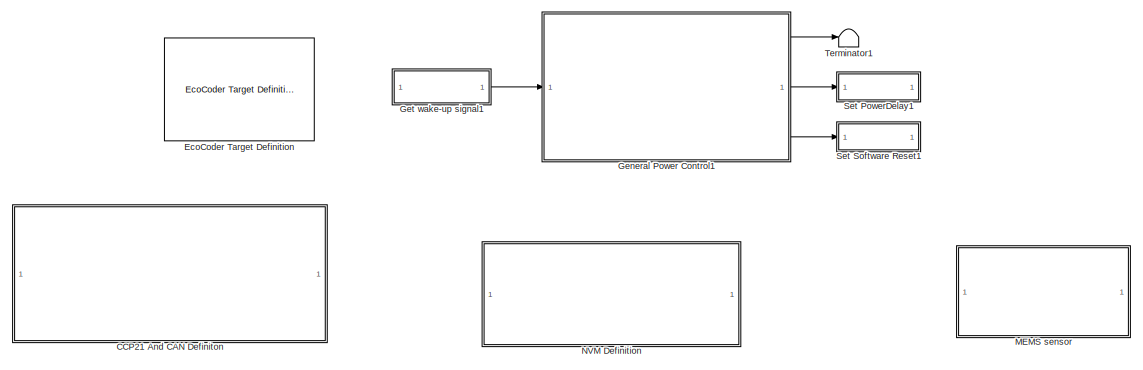
[diagram: root canvas - part 1/2, full width, top band]
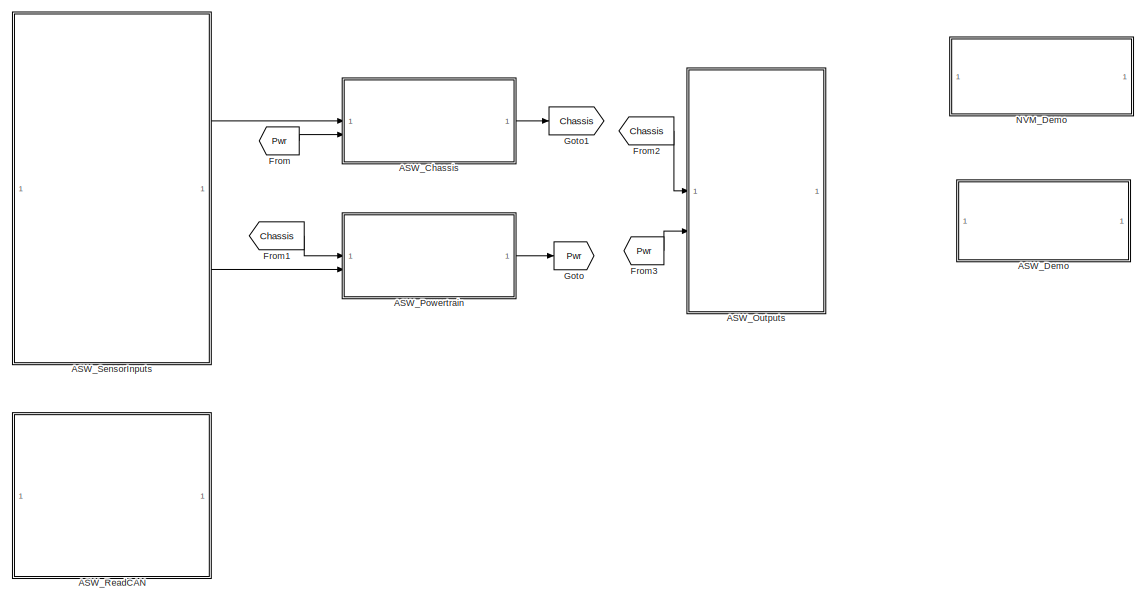
[diagram: root canvas - part 2/2, full width, bottom band]
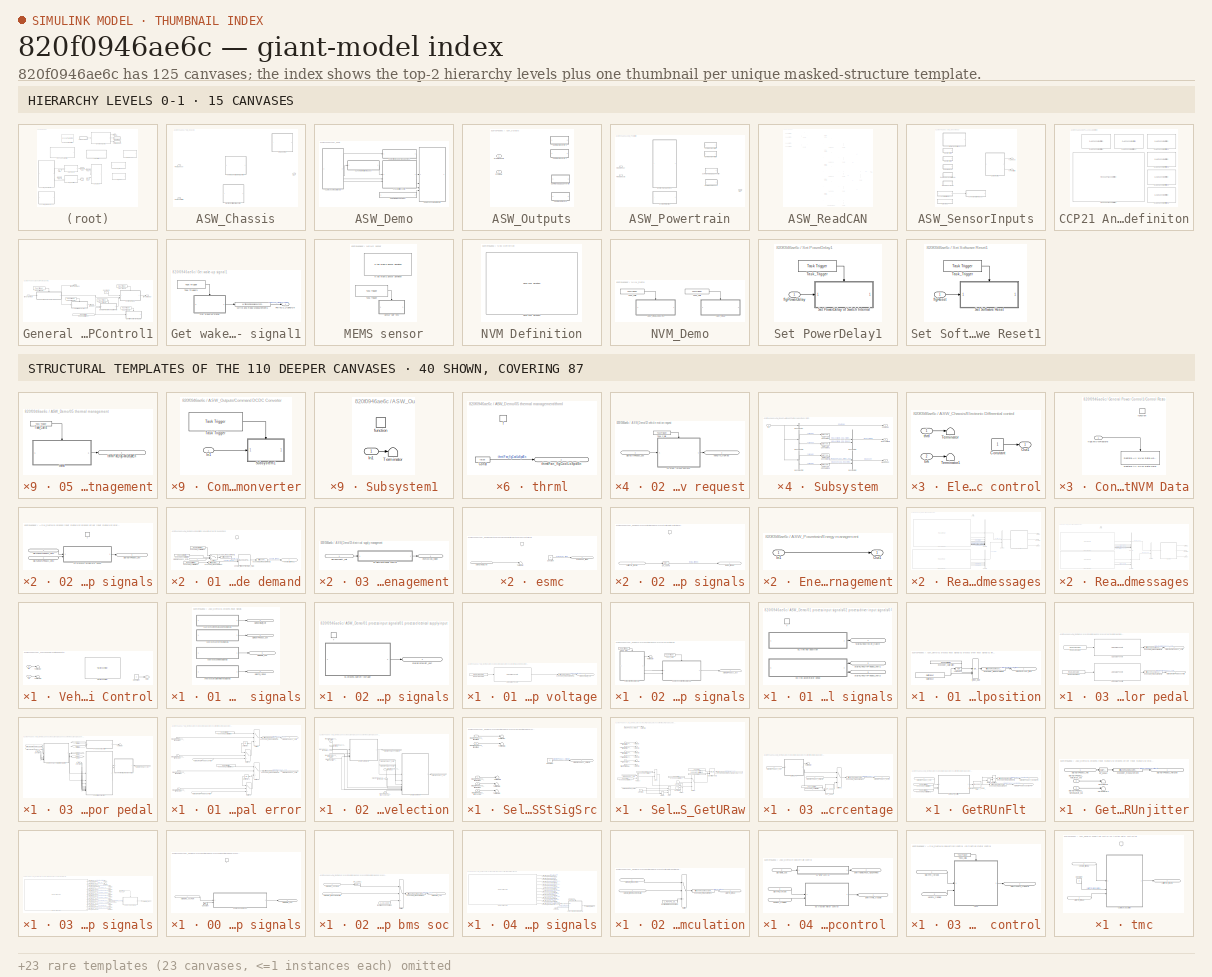
[diagram: thumbnail index - top-2 hierarchy levels (15 canvases) + 40 structural-template representatives of the remaining 110 canvases]
MODEL mdl_820f0946ae6c
KIND model
CONFIG AbsTol = auto
CONFIG EnableMultiTasking = on
CONFIG FixedStep = 0.001
CONFIG InitFcn = EcoCoder_PreCheckLic();
CONFIG MaxStep = auto
CONFIG MinStep = auto
CONFIG PreLoadFcn = try\nMDL_install;\ncatch\nend\n
CONFIG RelTol = 1e-3
CONFIG SampleTimeConstraint = Unconstrained
CONFIG SolverName = FixedStepDiscrete
CONFIG StartTime = 0.0
CONFIG StopTime = 10.0
BLOCK [SubSystem] ASW_Chassis
BLOCK [SubSystem] ASW_Chassis/Electronic Differential control
BLOCK [Constant] ASW_Chassis/Electronic Differential control/Constant
BLOCK [Outport] ASW_Chassis/Electronic Differential control/Out1
BLOCK [Terminator] ASW_Chassis/Electronic Differential control/Terminator
BLOCK [Terminator] ASW_Chassis/Electronic Differential control/Terminator1
BLOCK [Inport] ASW_Chassis/Electronic Differential control/brk
  Port = 2
BLOCK [Inport] ASW_Chassis/Electronic Differential control/thrtl
BLOCK [Inport] ASW_Chassis/FromPowertrain
  Port = 2
BLOCK [Inport] ASW_Chassis/FromSensor
BLOCK [Outport] ASW_Chassis/Out
BLOCK [SubSystem] ASW_Chassis/Reasoning
BLOCK [Constant] ASW_Chassis/Reasoning/Constant
BLOCK [Outport] ASW_Chassis/Reasoning/Out1
BLOCK [Terminator] ASW_Chassis/Reasoning/Terminator
BLOCK [Terminator] ASW_Chassis/Reasoning/Terminator1
BLOCK [Inport] ASW_Chassis/Reasoning/brk
  Port = 2
BLOCK [Inport] ASW_Chassis/Reasoning/thrtl
BLOCK [SubSystem] ASW_Chassis/Vehicle Longitudinal Control
BLOCK [Constant] ASW_Chassis/Vehicle Longitudinal Control/Constant
BLOCK [Outport] ASW_Chassis/Vehicle Longitudinal Control/Out1
BLOCK [Terminator] ASW_Chassis/Vehicle Longitudinal Control/Terminator
BLOCK [Terminator] ASW_Chassis/Vehicle Longitudinal Control/Terminator1
BLOCK [Reference] ASW_Chassis/Vehicle Longitudinal Control/TractionController  REF=Chassis_stability_controllers/TractionController
  SourceBlock = Chassis_stability_controllers/TractionController
  SourceType = SubSystem
BLOCK [Inport] ASW_Chassis/Vehicle Longitudinal Control/brk
  Port = 2
BLOCK [Inport] ASW_Chassis/Vehicle Longitudinal Control/thrtl
BLOCK [SubSystem] ASW_Demo
  AttributesFormatString = %<Priority>
  Priority = 3
BLOCK [SubSystem] ASW_Demo/01  process input signals
BLOCK [SubSystem] ASW_Demo/01  process input signals/01 process electrical supply input signals
BLOCK [SubSystem] ASW_Demo/01  process input signals/01 process electrical supply input signals/02 process electrical supply input signals
  RTWSystemCode = Nonreusable function
  TreatAsAtomicUnit = on
BLOCK [SubSystem] ASW_Demo/01  process input signals/01 process electrical supply input signals/02 process electrical supply input signals/01 process battery voltage
  RTWSystemCode = Nonreusable function
  TreatAsAtomicUnit = on
BLOCK [Reference] ASW_Demo/01  process input signals/01 process electrical supply input signals/02 process electrical supply input signals/01 process battery voltage/ADC Value To Volt  REF=CoderSF_ADC2Volt_Libs/ADC Value To Volt
  SourceBlock = CoderSF_ADC2Volt_Libs/ADC Value To Volt
  SourceType = ADC Value To Volt
BLOCK [Reference] ASW_Demo/01  process input signals/01 process electrical supply input signals/02 process electrical supply input signals/01 process battery voltage/Read ADC Value  REF=CoderSF_BSW_Libs/ADC/Read ADC Value
  SourceBlock = CoderSF_BSW_Libs/ADC/Read ADC Value
  SourceType = Read ADC Value
BLOCK [Reference] ASW_Demo/01  process input signals/01 process electrical supply input signals/02 process electrical supply input signals/01 process battery voltage/ecocoder_measurement1  REF=CoderSF_BSW_Libs/Calibration & Measurement/Write and Read Measurement
  AttributesFormatString = value:%<variable_value> type:%<variable_type>
  SourceBlock = CoderSF_BSW_Libs/Calibration & Measurement/Write and Read Measurement
  SourceType = Write and Read Measurement
BLOCK [Outport] ASW_Demo/01  process input signals/01 process electrical supply input signals/02 process electrical supply input signals/01 process battery voltage/sigInEsmBatt_volt
  IconDisplay = Signal name
BLOCK [TriggerPort] ASW_Demo/01  process input signals/01 process electrical supply input signals/02 process electrical supply input signals/f
  StatesWhenEnabling = held
  TriggerType = function-call
  VariantControl = (inherit)
BLOCK [Outport] ASW_Demo/01  process input signals/01 process electrical supply input signals/02 process electrical supply input signals/sigInEsmBatt_volt
  IconDisplay = Signal name
BLOCK [Reference] ASW_Demo/01  process input signals/01 process electrical supply input signals/Task_Call1  REF=CoderSF_BSW_Libs/Task Scheduler/Task Trigger
  SourceBlock = CoderSF_BSW_Libs/Task Scheduler/Task Trigger
  SourceType = Task Trigger
BLOCK [Outport] ASW_Demo/01  process input signals/01 process electrical supply input signals/sigInEsmBatt_volt
  IconDisplay = Signal name
BLOCK [SubSystem] ASW_Demo/01  process input signals/02 process driver input signals
BLOCK [SubSystem] ASW_Demo/01  process input signals/02 process driver input signals/01 link driver input signals
BLOCK [SubSystem] ASW_Demo/01  process input signals/02 process driver input signals/01 link driver input signals/01 link key position
BLOCK [Logic] ASW_Demo/01  process input signals/02 process driver input signals/01 link driver input signals/01 link key position/LogicNOT1
  AllPortsSameDT = off
  Inputs = 1
  Operator = NOT
  OutDataTypeStr = boolean
BLOCK [Reference] ASW_Demo/01  process input signals/02 process driver input signals/01 link driver input signals/01 link key position/Switch Input  REF=CoderSF_BSW_Libs/Digital I//O/Switch Input
  SourceBlock = CoderSF_BSW_Libs/Digital I//O/Switch Input
  SourceType = Switch Input
BLOCK [Reference] ASW_Demo/01  process input signals/02 process driver input signals/01 link driver input signals/01 link key position/ecocoder_calibration  REF=CoderSF_BSW_Libs/Calibration & Measurement/Read Calibration
  AttributesFormatString = value:%<variable_value> type:%<variable_type> max:%<variable_max> Min:%<variable_min>
  SourceBlock = CoderSF_BSW_Libs/Calibration & Measurement/Read Calibration
  SourceType = Read Calibration
BLOCK [Reference] ASW_Demo/01  process input signals/02 process driver input signals/01 link driver input signals/01 link key position/ecocoder_measurement1  REF=CoderSF_BSW_Libs/Calibration & Measurement/Write and Read Measurement
  AttributesFormatString = value:%<variable_value> type:%<variable_type>
  SourceBlock = CoderSF_BSW_Libs/Calibration & Measurement/Write and Read Measurement
  SourceType = Write and Read Measurement
BLOCK [Reference] ASW_Demo/01  process input signals/02 process driver input signals/01 link driver input signals/01 link key position/if_then_else  REF=EV_ASWLibs/if_then_else
  SourceBlock = EV_ASWLibs/if_then_else
BLOCK [Outport] ASW_Demo/01  process input signals/02 process driver input signals/01 link driver input signals/01 link key position/sigInLinkDrvKey_flgOn
  IconDisplay = Port number and signal name
BLOCK [SubSystem] ASW_Demo/01  process input signals/02 process driver input signals/01 link driver input signals/03 link accelerator pedal
BLOCK [Reference] ASW_Demo/01  process input signals/02 process driver input signals/01 link driver input signals/03 link accelerator pedal/ADC Value To Volt  REF=CoderSF_ADC2Volt_Libs/ADC Value To Volt
  SourceBlock = CoderSF_ADC2Volt_Libs/ADC Value To Volt
  SourceType = ADC Value To Volt
BLOCK [Reference] ASW_Demo/01  process input signals/02 process driver input signals/01 link driver input signals/03 link accelerator pedal/ADC Value To Volt1  REF=CoderSF_ADC2Volt_Libs/ADC Value To Volt
  SourceBlock = CoderSF_ADC2Volt_Libs/ADC Value To Volt
  SourceType = ADC Value To Volt
BLOCK [Reference] ASW_Demo/01  process input signals/02 process driver input signals/01 link driver input signals/03 link accelerator pedal/Read ADC Value  REF=CoderSF_BSW_Libs/ADC/Read ADC Value
  SourceBlock = CoderSF_BSW_Libs/ADC/Read ADC Value
  SourceType = Read ADC Value
BLOCK [Reference] ASW_Demo/01  process input signals/02 process driver input signals/01 link driver input signals/03 link accelerator pedal/Read ADC Value1  REF=CoderSF_BSW_Libs/ADC/Read ADC Value
  SourceBlock = CoderSF_BSW_Libs/ADC/Read ADC Value
  SourceType = Read ADC Value
BLOCK [Reference] ASW_Demo/01  process input signals/02 process driver input signals/01 link driver input signals/03 link accelerator pedal/ecocoder_measurement1  REF=CoderSF_BSW_Libs/Calibration & Measurement/Write and Read Measurement
  AttributesFormatString = value:%<variable_value> type:%<variable_type>
  SourceBlock = CoderSF_BSW_Libs/Calibration & Measurement/Write and Read Measurement
  SourceType = Write and Read Measurement
BLOCK [Reference] ASW_Demo/01  process input signals/02 process driver input signals/01 link driver input signals/03 link accelerator pedal/ecocoder_measurement2  REF=CoderSF_BSW_Libs/Calibration & Measurement/Write and Read Measurement
  AttributesFormatString = value:%<variable_value> type:%<variable_type>
  SourceBlock = CoderSF_BSW_Libs/Calibration & Measurement/Write and Read Measurement
  SourceType = Write and Read Measurement
BLOCK [Outport] ASW_Demo/01  process input signals/02 process driver input signals/01 link driver input signals/03 link accelerator pedal/sigInLinkDrvPedacc_volt1
  IconDisplay = Port number and signal name
BLOCK [Outport] ASW_Demo/01  process input signals/02 process driver input signals/01 link driver input signals/03 link accelerator pedal/sigInLinkDrvPedacc_volt2
  IconDisplay = Port number and signal name
  Port = 2
BLOCK [TriggerPort] ASW_Demo/01  process input signals/02 process driver input signals/01 link driver input signals/f
  StatesWhenEnabling = held
  TriggerType = function-call
  VariantControl = (inherit)
BLOCK [Outport] ASW_Demo/01  process input signals/02 process driver input signals/01 link driver input signals/sigInLinkDrvKey_flgOn
  IconDisplay = Port number and signal name
BLOCK [Outport] ASW_Demo/01  process input signals/02 process driver input signals/01 link driver input signals/sigInLinkDrvPedacc_volt1
  IconDisplay = Port number and signal name
  Port = 2
BLOCK [Outport] ASW_Demo/01  process input signals/02 process driver input signals/01 link driver input signals/sigInLinkDrvPedacc_volt2
  IconDisplay = Port number and signal name
  Port = 3
BLOCK [SubSystem] ASW_Demo/01  process input signals/02 process driver input signals/02 process driver input signals
BLOCK [SubSystem] ASW_Demo/01  process input signals/02 process driver input signals/02 process driver input signals/03 processs accelerator pedal
BLOCK [SubSystem] ASW_Demo/01  process input signals/02 process driver input signals/02 process driver input signals/03 processs accelerator pedal/01 process accelerator pedal error
  RTWFcnNameOpts = Use subsystem name
  TreatAsAtomicUnit = on
BLOCK [Switch] ASW_Demo/01  process input signals/02 process driver input signals/02 process driver input signals/03 processs accelerator pedal/01 process accelerator pedal error/Switch
  Criteria = u2 ~= 0
  InputSameDT = off
  SaturateOnIntegerOverflow = off
BLOCK [Switch] ASW_Demo/01  process input signals/02 process driver input signals/02 process driver input signals/03 processs accelerator pedal/01 process accelerator pedal error/Switch1
  Criteria = u2 ~= 0
  InputSameDT = off
  SaturateOnIntegerOverflow = off
BLOCK [Switch] ASW_Demo/01  process input signals/02 process driver input signals/02 process driver input signals/03 processs accelerator pedal/01 process accelerator pedal error/Switch2
  Criteria = u2 ~= 0
  InputSameDT = off
  SaturateOnIntegerOverflow = off
BLOCK [Switch] ASW_Demo/01  process input signals/02 process driver input signals/02 process driver input signals/03 processs accelerator pedal/01 process accelerator pedal error/Switch3
  Criteria = u2 ~= 0
  InputSameDT = off
  SaturateOnIntegerOverflow = off
BLOCK [UnitDelay] ASW_Demo/01  process input signals/02 process driver input signals/02 process driver input signals/03 processs accelerator pedal/01 process accelerator pedal error/Unit Delay
  SampleTime = -1
BLOCK [UnitDelay] ASW_Demo/01  process input signals/02 process driver input signals/02 process driver input signals/03 processs accelerator pedal/01 process accelerator pedal error/Unit Delay1
  SampleTime = -1
BLOCK [Inport] ASW_Demo/01  process input signals/02 process driver input signals/02 process driver input signals/03 processs accelerator pedal/01 process accelerator pedal error/diagDrvPedacc1_flgFinalDef
  Port = 3
BLOCK [Inport] ASW_Demo/01  process input signals/02 process driver input signals/02 process driver input signals/03 processs accelerator pedal/01 process accelerator pedal error/diagDrvPedacc1_flgProvDef
  Port = 4
BLOCK [Inport] ASW_Demo/01  process input signals/02 process driver input signals/02 process driver input signals/03 processs accelerator pedal/01 process accelerator pedal error/diagDrvPedacc2_flgFinalDef
  Port = 5
BLOCK [Inport] ASW_Demo/01  process input signals/02 process driver input signals/02 process driver input signals/03 processs accelerator pedal/01 process accelerator pedal error/diagDrvPedacc2_flgProvDef
  Port = 6
BLOCK [Reference] ASW_Demo/01  process input signals/02 process driver input signals/02 process driver input signals/03 processs accelerator pedal/01 process accelerator pedal error/ecocoder_calibration  REF=CoderSF_BSW_Libs/Calibration & Measurement/Read Calibration
  AttributesFormatString = value:%<variable_value> type:%<variable_type> max:%<variable_max> Min:%<variable_min>
  SourceBlock = CoderSF_BSW_Libs/Calibration & Measurement/Read Calibration
  SourceType = Read Calibration
BLOCK [Reference] ASW_Demo/01  process input signals/02 process driver input signals/02 process driver input signals/03 processs accelerator pedal/01 process accelerator pedal error/ecocoder_calibration1  REF=CoderSF_BSW_Libs/Calibration & Measurement/Read Calibration
  AttributesFormatString = value:%<variable_value> type:%<variable_type> max:%<variable_max> Min:%<variable_min>
  SourceBlock = CoderSF_BSW_Libs/Calibration & Measurement/Read Calibration
  SourceType = Read Calibration
BLOCK [Reference] ASW_Demo/01  process input signals/02 process driver input signals/02 process driver input signals/03 processs accelerator pedal/01 process accelerator pedal error/ecocoder_measurement1  REF=CoderSF_BSW_Libs/Calibration & Measurement/Write and Read Measurement
  AttributesFormatString = value:%<variable_value> type:%<variable_type>
  SourceBlock = CoderSF_BSW_Libs/Calibration & Measurement/Write and Read Measurement
  SourceType = Write and Read Measurement
BLOCK [Reference] ASW_Demo/01  process input signals/02 process driver input signals/02 process driver input signals/03 processs accelerator pedal/01 process accelerator pedal error/ecocoder_measurement2  REF=CoderSF_BSW_Libs/Calibration & Measurement/Write and Read Measurement
  AttributesFormatString = value:%<variable_value> type:%<variable_type>
  SourceBlock = CoderSF_BSW_Libs/Calibration & Measurement/Write and Read Measurement
  SourceType = Write and Read Measurement
BLOCK [Outport] ASW_Demo/01  process input signals/02 process driver input signals/02 process driver input signals/03 processs accelerator pedal/01 process accelerator pedal error/sigInDrvPedacc_volt1
  IconDisplay = Port number and signal name
BLOCK [Outport] ASW_Demo/01  process input signals/02 process driver input signals/02 process driver input signals/03 processs accelerator pedal/01 process accelerator pedal error/sigInDrvPedacc_volt2
  IconDisplay = Port number and signal name
  Port = 2
BLOCK [Inport] ASW_Demo/01  process input signals/02 process driver input signals/02 process driver input signals/03 processs accelerator pedal/01 process accelerator pedal error/sigInLinkDrvPedacc_volt1
  IconDisplay = Port number and signal name
BLOCK [Inport] ASW_Demo/01  process input signals/02 process driver input signals/02 process driver input signals/03 processs accelerator pedal/01 process accelerator pedal error/sigInLinkDrvPedacc_volt2
  IconDisplay = Port number and signal name
  Port = 2
BLOCK [SubSystem] ASW_Demo/01  process input signals/02 process driver input signals/02 process driver input signals/03 processs accelerator pedal/02 voltage selection
  RTWFcnNameOpts = Use subsystem name
  TreatAsAtomicUnit = on
BLOCK [SubSystem] ASW_Demo/01  process input signals/02 process driver input signals/02 process driver input signals/03 processs accelerator pedal/02 voltage selection/SelSig_GetStSigSrc
  RTWFcnNameOpts = Use subsystem name
  RTWSystemCode = Nonreusable function
  TreatAsAtomicUnit = on
BLOCK [Constant] ASW_Demo/01  process input signals/02 process driver input signals/02 process driver input signals/03 processs accelerator pedal/02 voltage selection/SelSig_GetStSigSrc/Constant
  OutDataTypeStr = Inherit: Inherit via back propagation
  SampleTime = -1
  Value = 0
BLOCK [Terminator] ASW_Demo/01  process input signals/02 process driver input signals/02 process driver input signals/03 processs accelerator pedal/02 voltage selection/SelSig_GetStSigSrc/Terminator
BLOCK [Terminator] ASW_Demo/01  process input signals/02 process driver input signals/02 process driver input signals/03 processs accelerator pedal/02 voltage selection/SelSig_GetStSigSrc/Terminator1
BLOCK [Terminator] ASW_Demo/01  process input signals/02 process driver input signals/02 process driver input signals/03 processs accelerator pedal/02 voltage selection/SelSig_GetStSigSrc/Terminator2
BLOCK [Terminator] ASW_Demo/01  process input signals/02 process driver input signals/02 process driver input signals/03 processs accelerator pedal/02 voltage selection/SelSig_GetStSigSrc/Terminator3
BLOCK [Terminator] ASW_Demo/01  process input signals/02 process driver input signals/02 process driver input signals/03 processs accelerator pedal/02 voltage selection/SelSig_GetStSigSrc/Terminator4
BLOCK [Inport] ASW_Demo/01  process input signals/02 process driver input signals/02 process driver input signals/03 processs accelerator pedal/02 voltage selection/SelSig_GetStSigSrc/diagDrvPedacc1_flgFinalDef
  Port = 3
BLOCK [Inport] ASW_Demo/01  process input signals/02 process driver input signals/02 process driver input signals/03 processs accelerator pedal/02 voltage selection/SelSig_GetStSigSrc/diagDrvPedacc1_flgShrtPwr
BLOCK [Inport] ASW_Demo/01  process input signals/02 process driver input signals/02 process driver input signals/03 processs accelerator pedal/02 voltage selection/SelSig_GetStSigSrc/diagDrvPedacc2_flgFinalDef
  Port = 4
BLOCK [Inport] ASW_Demo/01  process input signals/02 process driver input signals/02 process driver input signals/03 processs accelerator pedal/02 voltage selection/SelSig_GetStSigSrc/diagDrvPedacc2_flgShrtPwr
  Port = 2
BLOCK [Inport] ASW_Demo/01  process input signals/02 process driver input signals/02 process driver input signals/03 processs accelerator pedal/02 voltage selection/SelSig_GetStSigSrc/diagDrvPedacc_flgSyncDef
  Port = 5
BLOCK [Outport] ASW_Demo/01  process input signals/02 process driver input signals/02 process driver input signals/03 processs accelerator pedal/02 voltage selection/SelSig_GetStSigSrc/sigInDrvPedacc_stSigSrc
  IconDisplay = Port number and signal name
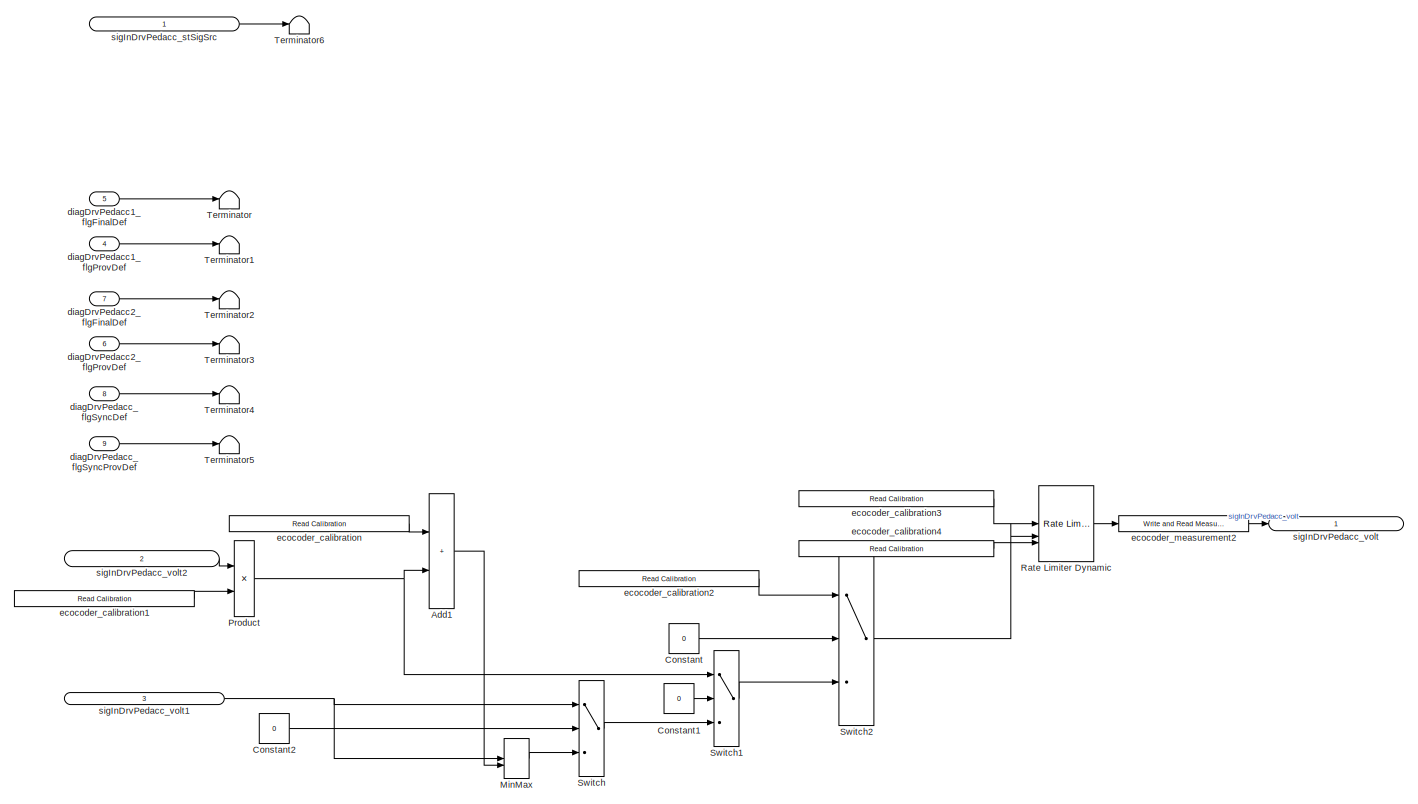
[diagram: ASW_Demo/01  process input signals/02 process driver input signals/02 process driver input signals/03 processs accelerator pedal/02 voltage selection/SelSig_GetURaw - part 1/1, most of the canvas]
BLOCK [SubSystem] ASW_Demo/01  process input signals/02 process driver input signals/02 process driver input signals/03 processs accelerator pedal/02 voltage selection/SelSig_GetURaw
  RTWFcnNameOpts = Use subsystem name
  RTWSystemCode = Nonreusable function
  TreatAsAtomicUnit = on
BLOCK [Sum] ASW_Demo/01  process input signals/02 process driver input signals/02 process driver input signals/03 processs accelerator pedal/02 voltage selection/SelSig_GetURaw/Add1
  IconShape = rectangular
  OutDataTypeStr = Inherit: Same as first input
  RndMeth = Simplest
  SaturateOnIntegerOverflow = on
BLOCK [Constant] ASW_Demo/01  process input signals/02 process driver input signals/02 process driver input signals/03 processs accelerator pedal/02 voltage selection/SelSig_GetURaw/Constant
  OutDataTypeStr = Inherit: Inherit via back propagation
  SampleTime = -1
  Value = 0
BLOCK [Constant] ASW_Demo/01  process input signals/02 process driver input signals/02 process driver input signals/03 processs accelerator pedal/02 voltage selection/SelSig_GetURaw/Constant1
  OutDataTypeStr = Inherit: Inherit via back propagation
  SampleTime = -1
  Value = 0
BLOCK [Constant] ASW_Demo/01  process input signals/02 process driver input signals/02 process driver input signals/03 processs accelerator pedal/02 voltage selection/SelSig_GetURaw/Constant2
  OutDataTypeStr = Inherit: Inherit via back propagation
  SampleTime = -1
  Value = 0
BLOCK [MinMax] ASW_Demo/01  process input signals/02 process driver input signals/02 process driver input signals/03 processs accelerator pedal/02 voltage selection/SelSig_GetURaw/MinMax
  Inputs = 2
BLOCK [Product] ASW_Demo/01  process input signals/02 process driver input signals/02 process driver input signals/03 processs accelerator pedal/02 voltage selection/SelSig_GetURaw/Product
  OutDataTypeStr = Inherit: Inherit via back propagation
  RndMeth = Simplest
  SaturateOnIntegerOverflow = on
BLOCK [Reference] ASW_Demo/01  process input signals/02 process driver input signals/02 process driver input signals/03 processs accelerator pedal/02 voltage selection/SelSig_GetURaw/Rate Limiter Dynamic  REF=simulink/Discontinuities/Rate Limiter
Dynamic
  SourceBlock = simulink/Discontinuities/Rate Limiter\nDynamic
  SourceType = Rate Limiter Dynamic
BLOCK [Switch] ASW_Demo/01  process input signals/02 process driver input signals/02 process driver input signals/03 processs accelerator pedal/02 voltage selection/SelSig_GetURaw/Switch
  Criteria = u2 ~= 0
  InputSameDT = off
  RndMeth = Simplest
BLOCK [Switch] ASW_Demo/01  process input signals/02 process driver input signals/02 process driver input signals/03 processs accelerator pedal/02 voltage selection/SelSig_GetURaw/Switch1
  Criteria = u2 ~= 0
  InputSameDT = off
  RndMeth = Simplest
BLOCK [Switch] ASW_Demo/01  process input signals/02 process driver input signals/02 process driver input signals/03 processs accelerator pedal/02 voltage selection/SelSig_GetURaw/Switch2
  Criteria = u2 ~= 0
  InputSameDT = off
  RndMeth = Simplest
BLOCK [Terminator] ASW_Demo/01  process input signals/02 process driver input signals/02 process driver input signals/03 processs accelerator pedal/02 voltage selection/SelSig_GetURaw/Terminator
BLOCK [Terminator] ASW_Demo/01  process input signals/02 process driver input signals/02 process driver input signals/03 processs accelerator pedal/02 voltage selection/SelSig_GetURaw/Terminator1
BLOCK [Terminator] ASW_Demo/01  process input signals/02 process driver input signals/02 process driver input signals/03 processs accelerator pedal/02 voltage selection/SelSig_GetURaw/Terminator2
BLOCK [Terminator] ASW_Demo/01  process input signals/02 process driver input signals/02 process driver input signals/03 processs accelerator pedal/02 voltage selection/SelSig_GetURaw/Terminator3
BLOCK [Terminator] ASW_Demo/01  process input signals/02 process driver input signals/02 process driver input signals/03 processs accelerator pedal/02 voltage selection/SelSig_GetURaw/Terminator4
BLOCK [Terminator] ASW_Demo/01  process input signals/02 process driver input signals/02 process driver input signals/03 processs accelerator pedal/02 voltage selection/SelSig_GetURaw/Terminator5
BLOCK [Terminator] ASW_Demo/01  process input signals/02 process driver input signals/02 process driver input signals/03 processs accelerator pedal/02 voltage selection/SelSig_GetURaw/Terminator6
BLOCK [Inport] ASW_Demo/01  process input signals/02 process driver input signals/02 process driver input signals/03 processs accelerator pedal/02 voltage selection/SelSig_GetURaw/diagDrvPedacc1_flgFinalDef
  Port = 5
BLOCK [Inport] ASW_Demo/01  process input signals/02 process driver input signals/02 process driver input signals/03 processs accelerator pedal/02 voltage selection/SelSig_GetURaw/diagDrvPedacc1_flgProvDef
  Port = 4
BLOCK [Inport] ASW_Demo/01  process input signals/02 process driver input signals/02 process driver input signals/03 processs accelerator pedal/02 voltage selection/SelSig_GetURaw/diagDrvPedacc2_flgFinalDef
  Port = 7
BLOCK [Inport] ASW_Demo/01  process input signals/02 process driver input signals/02 process driver input signals/03 processs accelerator pedal/02 voltage selection/SelSig_GetURaw/diagDrvPedacc2_flgProvDef
  Port = 6
BLOCK [Inport] ASW_Demo/01  process input signals/02 process driver input signals/02 process driver input signals/03 processs accelerator pedal/02 voltage selection/SelSig_GetURaw/diagDrvPedacc_flgSyncDef
  Port = 8
BLOCK [Inport] ASW_Demo/01  process input signals/02 process driver input signals/02 process driver input signals/03 processs accelerator pedal/02 voltage selection/SelSig_GetURaw/diagDrvPedacc_flgSyncProvDef
  Port = 9
BLOCK [Reference] ASW_Demo/01  process input signals/02 process driver input signals/02 process driver input signals/03 processs accelerator pedal/02 voltage selection/SelSig_GetURaw/ecocoder_calibration  REF=CoderSF_BSW_Libs/Calibration & Measurement/Read Calibration
  AttributesFormatString = value:%<variable_value> type:%<variable_type> max:%<variable_max> Min:%<variable_min>
  SourceBlock = CoderSF_BSW_Libs/Calibration & Measurement/Read Calibration
  SourceType = Read Calibration
BLOCK [Reference] ASW_Demo/01  process input signals/02 process driver input signals/02 process driver input signals/03 processs accelerator pedal/02 voltage selection/SelSig_GetURaw/ecocoder_calibration1  REF=CoderSF_BSW_Libs/Calibration & Measurement/Read Calibration
  AttributesFormatString = value:%<variable_value> type:%<variable_type> max:%<variable_max> Min:%<variable_min>
  SourceBlock = CoderSF_BSW_Libs/Calibration & Measurement/Read Calibration
  SourceType = Read Calibration
BLOCK [Reference] ASW_Demo/01  process input signals/02 process driver input signals/02 process driver input signals/03 processs accelerator pedal/02 voltage selection/SelSig_GetURaw/ecocoder_calibration2  REF=CoderSF_BSW_Libs/Calibration & Measurement/Read Calibration
  AttributesFormatString = value:%<variable_value> type:%<variable_type> max:%<variable_max> Min:%<variable_min>
  SourceBlock = CoderSF_BSW_Libs/Calibration & Measurement/Read Calibration
  SourceType = Read Calibration
BLOCK [Reference] ASW_Demo/01  process input signals/02 process driver input signals/02 process driver input signals/03 processs accelerator pedal/02 voltage selection/SelSig_GetURaw/ecocoder_calibration3  REF=CoderSF_BSW_Libs/Calibration & Measurement/Read Calibration
  AttributesFormatString = value:%<variable_value> type:%<variable_type> max:%<variable_max> Min:%<variable_min>
  SourceBlock = CoderSF_BSW_Libs/Calibration & Measurement/Read Calibration
  SourceType = Read Calibration
BLOCK [Reference] ASW_Demo/01  process input signals/02 process driver input signals/02 process driver input signals/03 processs accelerator pedal/02 voltage selection/SelSig_GetURaw/ecocoder_calibration4  REF=CoderSF_BSW_Libs/Calibration & Measurement/Read Calibration
  AttributesFormatString = value:%<variable_value> type:%<variable_type> max:%<variable_max> Min:%<variable_min>
  SourceBlock = CoderSF_BSW_Libs/Calibration & Measurement/Read Calibration
  SourceType = Read Calibration
BLOCK [Reference] ASW_Demo/01  process input signals/02 process driver input signals/02 process driver input signals/03 processs accelerator pedal/02 voltage selection/SelSig_GetURaw/ecocoder_measurement2  REF=CoderSF_BSW_Libs/Calibration & Measurement/Write and Read Measurement
  AttributesFormatString = value:%<variable_value> type:%<variable_type>
  SourceBlock = CoderSF_BSW_Libs/Calibration & Measurement/Write and Read Measurement
  SourceType = Write and Read Measurement
BLOCK [Inport] ASW_Demo/01  process input signals/02 process driver input signals/02 process driver input signals/03 processs accelerator pedal/02 voltage selection/SelSig_GetURaw/sigInDrvPedacc_stSigSrc
  IconDisplay = Port number and signal name
BLOCK [Outport] ASW_Demo/01  process input signals/02 process driver input signals/02 process driver input signals/03 processs accelerator pedal/02 voltage selection/SelSig_GetURaw/sigInDrvPedacc_volt
  IconDisplay = Port number and signal name
BLOCK [Inport] ASW_Demo/01  process input signals/02 process driver input signals/02 process driver input signals/03 processs accelerator pedal/02 voltage selection/SelSig_GetURaw/sigInDrvPedacc_volt1
  IconDisplay = Port number and signal name
  Port = 3
BLOCK [Inport] ASW_Demo/01  process input signals/02 process driver input signals/02 process driver input signals/03 processs accelerator pedal/02 voltage selection/SelSig_GetURaw/sigInDrvPedacc_volt2
  IconDisplay = Port number and signal name
  Port = 2
BLOCK [Inport] ASW_Demo/01  process input signals/02 process driver input signals/02 process driver input signals/03 processs accelerator pedal/02 voltage selection/diagDrvPedacc1_flgFinalDef
  Port = 5
BLOCK [Inport] ASW_Demo/01  process input signals/02 process driver input signals/02 process driver input signals/03 processs accelerator pedal/02 voltage selection/diagDrvPedacc1_flgProvDef
  Port = 7
BLOCK [Inport] ASW_Demo/01  process input signals/02 process driver input signals/02 process driver input signals/03 processs accelerator pedal/02 voltage selection/diagDrvPedacc1_flgShrtPwr
  Port = 3
BLOCK [Inport] ASW_Demo/01  process input signals/02 process driver input signals/02 process driver input signals/03 processs accelerator pedal/02 voltage selection/diagDrvPedacc2_flgFinalDef
  Port = 6
BLOCK [Inport] ASW_Demo/01  process input signals/02 process driver input signals/02 process driver input signals/03 processs accelerator pedal/02 voltage selection/diagDrvPedacc2_flgProvDef
  Port = 9
BLOCK [Inport] ASW_Demo/01  process input signals/02 process driver input signals/02 process driver input signals/03 processs accelerator pedal/02 voltage selection/diagDrvPedacc2_flgShrtPwr
  Port = 4
BLOCK [Inport] ASW_Demo/01  process input signals/02 process driver input signals/02 process driver input signals/03 processs accelerator pedal/02 voltage selection/diagDrvPedacc_flgSyncDef
  Port = 8
BLOCK [Inport] ASW_Demo/01  process input signals/02 process driver input signals/02 process driver input signals/03 processs accelerator pedal/02 voltage selection/diagDrvPedacc_flgSyncProvDef
  Port = 10
BLOCK [Outport] ASW_Demo/01  process input signals/02 process driver input signals/02 process driver input signals/03 processs accelerator pedal/02 voltage selection/sigInDrvPedacc_stSigSrc
  IconDisplay = Port number and signal name
BLOCK [Outport] ASW_Demo/01  process input signals/02 process driver input signals/02 process driver input signals/03 processs accelerator pedal/02 voltage selection/sigInDrvPedacc_volt
  IconDisplay = Port number and signal name
  Port = 2
BLOCK [Inport] ASW_Demo/01  process input signals/02 process driver input signals/02 process driver input signals/03 processs accelerator pedal/02 voltage selection/sigInDrvPedacc_volt1
  IconDisplay = Port number and signal name
BLOCK [Inport] ASW_Demo/01  process input signals/02 process driver input signals/02 process driver input signals/03 processs accelerator pedal/02 voltage selection/sigInDrvPedacc_volt2
  IconDisplay = Port number and signal name
  Port = 2
BLOCK [SubSystem] ASW_Demo/01  process input signals/02 process driver input signals/02 process driver input signals/03 processs accelerator pedal/03 convert voltage to percentage
  RTWFcnNameOpts = Use subsystem name
  TreatAsAtomicUnit = on
BLOCK [SubSystem] ASW_Demo/01  process input signals/02 process driver input signals/02 process driver input signals/03 processs accelerator pedal/03 convert voltage to percentage/GetRUnFlt
  RTWFcnNameOpts = Use subsystem name
  RTWSystemCode = Nonreusable function
  TreatAsAtomicUnit = on
BLOCK [Delay] ASW_Demo/01  process input signals/02 process driver input signals/02 process driver input signals/03 processs accelerator pedal/03 convert voltage to percentage/GetRUnFlt/Delay
  DelayLength = 1
  InputPortMap = u0
  UserDataPersistent = on
BLOCK [SubSystem] ASW_Demo/01  process input signals/02 process driver input signals/02 process driver input signals/03 processs accelerator pedal/03 convert voltage to percentage/GetRUnFlt/GetRUnFlt_Unjitter
  RTWFcnNameOpts = Use subsystem name
  RTWSystemCode = Nonreusable function
  TreatAsAtomicUnit = on
BLOCK [DataTypeConversion] ASW_Demo/01  process input signals/02 process driver input signals/02 process driver input signals/03 processs accelerator pedal/03 convert voltage to percentage/GetRUnFlt/GetRUnFlt_Unjitter/DT_conv1
  RndMeth = Floor
  SaturateOnIntegerOverflow = off
BLOCK [Terminator] ASW_Demo/01  process input signals/02 process driver input signals/02 process driver input signals/03 processs accelerator pedal/03 convert voltage to percentage/GetRUnFlt/GetRUnFlt_Unjitter/Terminator
BLOCK [Terminator] ASW_Demo/01  process input signals/02 process driver input signals/02 process driver input signals/03 processs accelerator pedal/03 convert voltage to percentage/GetRUnFlt/GetRUnFlt_Unjitter/Terminator1
BLOCK [Reference] ASW_Demo/01  process input signals/02 process driver input signals/02 process driver input signals/03 processs accelerator pedal/03 convert voltage to percentage/GetRUnFlt/GetRUnFlt_Unjitter/ecocoder_measurement  REF=CoderSF_BSW_Libs/Calibration & Measurement/Write and Read Measurement
  AttributesFormatString = value:%<variable_value> type:%<variable_type>
  SourceBlock = CoderSF_BSW_Libs/Calibration & Measurement/Write and Read Measurement
  SourceType = Write and Read Measurement
BLOCK [Inport] ASW_Demo/01  process input signals/02 process driver input signals/02 process driver input signals/03 processs accelerator pedal/03 convert voltage to percentage/GetRUnFlt/GetRUnFlt_Unjitter/sigInDrvPedacc_flgtEnaUnJit_val
  Port = 3
BLOCK [Inport] ASW_Demo/01  process input signals/02 process driver input signals/02 process driver input signals/03 processs accelerator pedal/03 convert voltage to percentage/GetRUnFlt/GetRUnFlt_Unjitter/sigInDrvPedacc_volt
  IconDisplay = Port number and signal name
BLOCK [Inport] ASW_Demo/01  process input signals/02 process driver input signals/02 process driver input signals/03 processs accelerator pedal/03 convert voltage to percentage/GetRUnFlt/GetRUnFlt_Unjitter/sigInDrvPedacc_voltJitter_val
  Port = 2
BLOCK [Outport] ASW_Demo/01  process input signals/02 process driver input signals/02 process driver input signals/03 processs accelerator pedal/03 convert voltage to percentage/GetRUnFlt/GetRUnFlt_Unjitter/sigInDrvPedacc_voltUnJit
  IconDisplay = Port number and signal name
BLOCK [Sum] ASW_Demo/01  process input signals/02 process driver input signals/02 process driver input signals/03 processs accelerator pedal/03 convert voltage to percentage/GetRUnFlt/Subtract
  IconShape = rectangular
  Inputs = +-
  RndMeth = Simplest
  SaturateOnIntegerOverflow = on
BLOCK [Reference] ASW_Demo/01  process input signals/02 process driver input signals/02 process driver input signals/03 processs accelerator pedal/03 convert voltage to percentage/GetRUnFlt/ecocoder_calibration  REF=CoderSF_BSW_Libs/Calibration & Measurement/Read Calibration
  AttributesFormatString = value:%<variable_value> type:%<variable_type> max:%<variable_max> Min:%<variable_min>
  SourceBlock = CoderSF_BSW_Libs/Calibration & Measurement/Read Calibration
  SourceType = Read Calibration
BLOCK [Reference] ASW_Demo/01  process input signals/02 process driver input signals/02 process driver input signals/03 processs accelerator pedal/03 convert voltage to percentage/GetRUnFlt/ecocoder_calibration1  REF=CoderSF_BSW_Libs/Calibration & Measurement/Read Calibration
  AttributesFormatString = value:%<variable_value> type:%<variable_type> max:%<variable_max> Min:%<variable_min>
  SourceBlock = CoderSF_BSW_Libs/Calibration & Measurement/Read Calibration
  SourceType = Read Calibration
BLOCK [Reference] ASW_Demo/01  process input signals/02 process driver input signals/02 process driver input signals/03 processs accelerator pedal/03 convert voltage to percentage/GetRUnFlt/ecocoder_measurement  REF=CoderSF_BSW_Libs/Calibration & Measurement/Write and Read Measurement
  AttributesFormatString = value:%<variable_value> type:%<variable_type>
  SourceBlock = CoderSF_BSW_Libs/Calibration & Measurement/Write and Read Measurement
  SourceType = Write and Read Measurement
BLOCK [Reference] ASW_Demo/01  process input signals/02 process driver input signals/02 process driver input signals/03 processs accelerator pedal/03 convert voltage to percentage/GetRUnFlt/ecocoder_measurement1  REF=CoderSF_BSW_Libs/Calibration & Measurement/Write and Read Measurement
  AttributesFormatString = value:%<variable_value> type:%<variable_type>
  SourceBlock = CoderSF_BSW_Libs/Calibration & Measurement/Write and Read Measurement
  SourceType = Write and Read Measurement
BLOCK [Outport] ASW_Demo/01  process input signals/02 process driver input signals/02 process driver input signals/03 processs accelerator pedal/03 convert voltage to percentage/GetRUnFlt/sigInDrvPedacc_dpctUnFlt
  IconDisplay = Port number and signal name
BLOCK [Reference] ASW_Demo/01  process input signals/02 process driver input signals/02 process driver input signals/03 processs accelerator pedal/03 convert voltage to percentage/GetRUnFlt/sigInDrvPedacc_pctLin_cur   REF=CoderSF_BSW_Libs/Calibration & Measurement/1-D Lookup Table
  SourceBlock = CoderSF_BSW_Libs/Calibration & Measurement/1-D Lookup Table
  SourceType = 1-D Lookup Table
BLOCK [Outport] ASW_Demo/01  process input signals/02 process driver input signals/02 process driver input signals/03 processs accelerator pedal/03 convert voltage to percentage/GetRUnFlt/sigInDrvPedacc_pctUnFlt
  IconDisplay = Port number and signal name
  Port = 2
BLOCK [Inport] ASW_Demo/01  process input signals/02 process driver input signals/02 process driver input signals/03 processs accelerator pedal/03 convert voltage to percentage/GetRUnFlt/sigInDrvPedacc_volt
  IconDisplay = Port number and signal name
BLOCK [Reference] ASW_Demo/01  process input signals/02 process driver input signals/02 process driver input signals/03 processs accelerator pedal/03 convert voltage to percentage/LPT_xxxx  REF=EV_ASWLibs/LPT_xxxx
  SourceBlock = EV_ASWLibs/LPT_xxxx
BLOCK [Switch] ASW_Demo/01  process input signals/02 process driver input signals/02 process driver input signals/03 processs accelerator pedal/03 convert voltage to percentage/Switch1
  Criteria = u2 ~= 0
  InputSameDT = off
  RndMeth = Simplest
BLOCK [Terminator] ASW_Demo/01  process input signals/02 process driver input signals/02 process driver input signals/03 processs accelerator pedal/03 convert voltage to percentage/Terminator
BLOCK [Reference] ASW_Demo/01  process input signals/02 process driver input signals/02 process driver input signals/03 processs accelerator pedal/03 convert voltage to percentage/ecocoder_calibration  REF=CoderSF_BSW_Libs/Calibration & Measurement/Read Calibration
  AttributesFormatString = value:%<variable_value> type:%<variable_type> max:%<variable_max> Min:%<variable_min>
  SourceBlock = CoderSF_BSW_Libs/Calibration & Measurement/Read Calibration
  SourceType = Read Calibration
BLOCK [Reference] ASW_Demo/01  process input signals/02 process driver input signals/02 process driver input signals/03 processs accelerator pedal/03 convert voltage to percentage/ecocoder_measurement  REF=CoderSF_BSW_Libs/Calibration & Measurement/Write and Read Measurement
  AttributesFormatString = value:%<variable_value> type:%<variable_type>
  SourceBlock = CoderSF_BSW_Libs/Calibration & Measurement/Write and Read Measurement
  SourceType = Write and Read Measurement
BLOCK [Outport] ASW_Demo/01  process input signals/02 process driver input signals/02 process driver input signals/03 processs accelerator pedal/03 convert voltage to percentage/sigInDrvPedacc_pctFlt
  IconDisplay = Port number and signal name
BLOCK [Inport] ASW_Demo/01  process input signals/02 process driver input signals/02 process driver input signals/03 processs accelerator pedal/03 convert voltage to percentage/sigInDrvPedacc_stSigSrc
  IconDisplay = Port number and signal name
BLOCK [Inport] ASW_Demo/01  process input signals/02 process driver input signals/02 process driver input signals/03 processs accelerator pedal/03 convert voltage to percentage/sigInDrvPedacc_volt
  IconDisplay = Port number and signal name
  Port = 2
BLOCK [SubSystem] ASW_Demo/01  process input signals/02 process driver input signals/02 process driver input signals/03 processs accelerator pedal/04 check plausibility
  RTWFcnNameOpts = Use subsystem name
  TreatAsAtomicUnit = on
BLOCK [Constant] ASW_Demo/01  process input signals/02 process driver input signals/02 process driver input signals/03 processs accelerator pedal/04 check plausibility/Constant
  OutDataTypeStr = Inherit: Inherit via back propagation
BLOCK [Terminator] ASW_Demo/01  process input signals/02 process driver input signals/02 process driver input signals/03 processs accelerator pedal/04 check plausibility/Terminator
BLOCK [Terminator] ASW_Demo/01  process input signals/02 process driver input signals/02 process driver input signals/03 processs accelerator pedal/04 check plausibility/Terminator1
BLOCK [Outport] ASW_Demo/01  process input signals/02 process driver input signals/02 process driver input signals/03 processs accelerator pedal/04 check plausibility/sigInDrvPedacc_flgErrSync
  IconDisplay = Port number and signal name
BLOCK [Inport] ASW_Demo/01  process input signals/02 process driver input signals/02 process driver input signals/03 processs accelerator pedal/04 check plausibility/sigInDrvPedacc_volt1
  IconDisplay = Port number and signal name
BLOCK [Inport] ASW_Demo/01  process input signals/02 process driver input signals/02 process driver input signals/03 processs accelerator pedal/04 check plausibility/sigInDrvPedacc_volt2
  IconDisplay = Port number and signal name
  Port = 2
BLOCK [Constant] ASW_Demo/01  process input signals/02 process driver input signals/02 process driver input signals/03 processs accelerator pedal/Constant
  Value = false
BLOCK [Constant] ASW_Demo/01  process input signals/02 process driver input signals/02 process driver input signals/03 processs accelerator pedal/Constant1
  Value = false
BLOCK [From] ASW_Demo/01  process input signals/02 process driver input signals/02 process driver input signals/03 processs accelerator pedal/From1
  GotoTag = sigInDrvPedacc_volt1
BLOCK [From] ASW_Demo/01  process input signals/02 process driver input signals/02 process driver input signals/03 processs accelerator pedal/From2
  GotoTag = sigInDrvPedacc_volt2
BLOCK [Goto] ASW_Demo/01  process input signals/02 process driver input signals/02 process driver input signals/03 processs accelerator pedal/Goto1
  GotoTag = sigInDrvPedacc_volt1
BLOCK [Goto] ASW_Demo/01  process input signals/02 process driver input signals/02 process driver input signals/03 processs accelerator pedal/Goto2
  GotoTag = sigInDrvPedacc_volt2
BLOCK [Terminator] ASW_Demo/01  process input signals/02 process driver input signals/02 process driver input signals/03 processs accelerator pedal/Terminator
BLOCK [Outport] ASW_Demo/01  process input signals/02 process driver input signals/02 process driver input signals/03 processs accelerator pedal/sigInDrvPedacc_pct
  IconDisplay = Port number and signal name
BLOCK [Inport] ASW_Demo/01  process input signals/02 process driver input signals/02 process driver input signals/03 processs accelerator pedal/sigInLinkDrvPedacc_volt1
  IconDisplay = Port number and signal name
BLOCK [Inport] ASW_Demo/01  process input signals/02 process driver input signals/02 process driver input signals/03 processs accelerator pedal/sigInLinkDrvPedacc_volt2
  IconDisplay = Port number and signal name
  Port = 2
BLOCK [TriggerPort] ASW_Demo/01  process input signals/02 process driver input signals/02 process driver input signals/f
  StatesWhenEnabling = held
  TriggerType = function-call
  VariantControl = (inherit)
BLOCK [Outport] ASW_Demo/01  process input signals/02 process driver input signals/02 process driver input signals/sigInDrvPedacc_pct
  IconDisplay = Port number and signal name
BLOCK [Inport] ASW_Demo/01  process input signals/02 process driver input signals/02 process driver input signals/sigInLinkDrvPedacc_volt1
  IconDisplay = Port number and signal name
BLOCK [Inport] ASW_Demo/01  process input signals/02 process driver input signals/02 process driver input signals/sigInLinkDrvPedacc_volt2
  IconDisplay = Port number and signal name
  Port = 2
BLOCK [Reference] ASW_Demo/01  process input signals/02 process driver input signals/Task_Call  REF=CoderSF_BSW_Libs/Task Scheduler/Task Trigger
  SourceBlock = CoderSF_BSW_Libs/Task Scheduler/Task Trigger
  SourceType = Task Trigger
BLOCK [Reference] ASW_Demo/01  process input signals/02 process driver input signals/Task_Call2  REF=CoderSF_BSW_Libs/Task Scheduler/Task Trigger
  SourceBlock = CoderSF_BSW_Libs/Task Scheduler/Task Trigger
  SourceType = Task Trigger
BLOCK [Terminator] ASW_Demo/01  process input signals/02 process driver input signals/Terminator
BLOCK [Outport] ASW_Demo/01  process input signals/02 process driver input signals/sigInDrvPedacc_pct
  IconDisplay = Port number and signal name
BLOCK [SubSystem] ASW_Demo/01  process input signals/03 process bms input signals
BLOCK [SubSystem] ASW_Demo/01  process input signals/03 process bms input signals/00 process bms input signals
  RTWSystemCode = Nonreusable function
  TreatAsAtomicUnit = on
BLOCK [SubSystem] ASW_Demo/01  process input signals/03 process bms input signals/00 process bms input signals/02 process bms soc
  RTWSystemCode = Nonreusable function
  TreatAsAtomicUnit = on
BLOCK [DataTypeConversion] ASW_Demo/01  process input signals/03 process bms input signals/00 process bms input signals/02 process bms soc/DT_conv1
  RndMeth = Floor
  SaturateOnIntegerOverflow = off
BLOCK [Switch] ASW_Demo/01  process input signals/03 process bms input signals/00 process bms input signals/02 process bms soc/Switch
  Criteria = u2 ~= 0
  OutDataTypeStr = Inherit: Inherit via back propagation
  SaturateOnIntegerOverflow = off
BLOCK [Reference] ASW_Demo/01  process input signals/03 process bms input signals/00 process bms input signals/02 process bms soc/ecocoder_measurement  REF=CoderSF_BSW_Libs/Calibration & Measurement/Write and Read Measurement
  AttributesFormatString = value:%<variable_value> type:%<variable_type>
  SourceBlock = CoderSF_BSW_Libs/Calibration & Measurement/Write and Read Measurement
  SourceType = Write and Read Measurement
BLOCK [Constant] ASW_Demo/01  process input signals/03 process bms input signals/00 process bms input signals/02 process bms soc/invalid ess soc output
  AttributesFormatString = %<Value>\n%<OutDataTypeMode>
  Value = C_SOC_ZERO
BLOCK [Inport] ASW_Demo/01  process input signals/03 process bms input signals/00 process bms input signals/02 process bms soc/sigInBms_flgSocRawValid
  IconDisplay = Signal name
  Port = 2
BLOCK [Outport] ASW_Demo/01  process input signals/03 process bms input signals/00 process bms input signals/02 process bms soc/sigInBms_soc
  IconDisplay = Signal name
BLOCK [Inport] ASW_Demo/01  process input signals/03 process bms input signals/00 process bms input signals/02 process bms soc/sigInBms_socRaw
  IconDisplay = Signal name
BLOCK [Constant] ASW_Demo/01  process input signals/03 process bms input signals/00 process bms input signals/Constant
  SampleTime = -1
  Value = true
BLOCK [TriggerPort] ASW_Demo/01  process input signals/03 process bms input signals/00 process bms input signals/f
  StatesWhenEnabling = held
  TriggerType = function-call
  VariantControl = (inherit)
BLOCK [Outport] ASW_Demo/01  process input signals/03 process bms input signals/00 process bms input signals/sigInBms_soc
  IconDisplay = Signal name
BLOCK [Inport] ASW_Demo/01  process input signals/03 process bms input signals/00 process bms input signals/sigInBms_socRaw
  IconDisplay = Signal name
BLOCK [DataTypeConversion] ASW_Demo/01  process input signals/03 process bms input signals/Data Type Conversion
  RndMeth = Floor
  SaturateOnIntegerOverflow = off
BLOCK [Reference] ASW_Demo/01  process input signals/03 process bms input signals/Read CAN Message   REF=SF_CanService_Libs/Read CAN Message
  SourceBlock = SF_CanService_Libs/Read CAN Message
  SourceType = Read CAN Message
BLOCK [Reference] ASW_Demo/01  process input signals/03 process bms input signals/Task_Call  REF=CoderSF_BSW_Libs/Task Scheduler/Task Trigger
  SourceBlock = CoderSF_BSW_Libs/Task Scheduler/Task Trigger
  SourceType = Task Trigger
BLOCK [Terminator] ASW_Demo/01  process input signals/03 process bms input signals/Terminator
BLOCK [Terminator] ASW_Demo/01  process input signals/03 process bms input signals/Terminator1
BLOCK [Terminator] ASW_Demo/01  process input signals/03 process bms input signals/Terminator10
BLOCK [Terminator] ASW_Demo/01  process input signals/03 process bms input signals/Terminator2
BLOCK [Terminator] ASW_Demo/01  process input signals/03 process bms input signals/Terminator3
BLOCK [Terminator] ASW_Demo/01  process input signals/03 process bms input signals/Terminator4
BLOCK [Terminator] ASW_Demo/01  process input signals/03 process bms input signals/Terminator5
BLOCK [Terminator] ASW_Demo/01  process input signals/03 process bms input signals/Terminator6
BLOCK [Terminator] ASW_Demo/01  process input signals/03 process bms input signals/Terminator7
BLOCK [Terminator] ASW_Demo/01  process input signals/03 process bms input signals/Terminator8
BLOCK [Terminator] ASW_Demo/01  process input signals/03 process bms input signals/Terminator9
BLOCK [Reference] ASW_Demo/01  process input signals/03 process bms input signals/ecocoder_measurement  REF=CoderSF_BSW_Libs/Calibration & Measurement/Write and Read Measurement
  AttributesFormatString = value:%<variable_value> type:%<variable_type>
  SourceBlock = CoderSF_BSW_Libs/Calibration & Measurement/Write and Read Measurement
  SourceType = Write and Read Measurement
BLOCK [Reference] ASW_Demo/01  process input signals/03 process bms input signals/ecocoder_measurement1  REF=CoderSF_BSW_Libs/Calibration & Measurement/Write and Read Measurement
  AttributesFormatString = value:%<variable_value> type:%<variable_type>
  SourceBlock = CoderSF_BSW_Libs/Calibration & Measurement/Write and Read Measurement
  SourceType = Write and Read Measurement
BLOCK [Reference] ASW_Demo/01  process input signals/03 process bms input signals/ecocoder_measurement10  REF=CoderSF_BSW_Libs/Calibration & Measurement/Write and Read Measurement
  AttributesFormatString = value:%<variable_value> type:%<variable_type>
  SourceBlock = CoderSF_BSW_Libs/Calibration & Measurement/Write and Read Measurement
  SourceType = Write and Read Measurement
BLOCK [Reference] ASW_Demo/01  process input signals/03 process bms input signals/ecocoder_measurement11  REF=CoderSF_BSW_Libs/Calibration & Measurement/Write and Read Measurement
  AttributesFormatString = value:%<variable_value> type:%<variable_type>
  SourceBlock = CoderSF_BSW_Libs/Calibration & Measurement/Write and Read Measurement
  SourceType = Write and Read Measurement
BLOCK [Reference] ASW_Demo/01  process input signals/03 process bms input signals/ecocoder_measurement2  REF=CoderSF_BSW_Libs/Calibration & Measurement/Write and Read Measurement
  AttributesFormatString = value:%<variable_value> type:%<variable_type>
  SourceBlock = CoderSF_BSW_Libs/Calibration & Measurement/Write and Read Measurement
  SourceType = Write and Read Measurement
BLOCK [Reference] ASW_Demo/01  process input signals/03 process bms input signals/ecocoder_measurement3  REF=CoderSF_BSW_Libs/Calibration & Measurement/Write and Read Measurement
  AttributesFormatString = value:%<variable_value> type:%<variable_type>
  SourceBlock = CoderSF_BSW_Libs/Calibration & Measurement/Write and Read Measurement
  SourceType = Write and Read Measurement
BLOCK [Reference] ASW_Demo/01  process input signals/03 process bms input signals/ecocoder_measurement4  REF=CoderSF_BSW_Libs/Calibration & Measurement/Write and Read Measurement
  AttributesFormatString = value:%<variable_value> type:%<variable_type>
  SourceBlock = CoderSF_BSW_Libs/Calibration & Measurement/Write and Read Measurement
  SourceType = Write and Read Measurement
BLOCK [Reference] ASW_Demo/01  process input signals/03 process bms input signals/ecocoder_measurement5  REF=CoderSF_BSW_Libs/Calibration & Measurement/Write and Read Measurement
  AttributesFormatString = value:%<variable_value> type:%<variable_type>
  SourceBlock = CoderSF_BSW_Libs/Calibration & Measurement/Write and Read Measurement
  SourceType = Write and Read Measurement
BLOCK [Reference] ASW_Demo/01  process input signals/03 process bms input signals/ecocoder_measurement6  REF=CoderSF_BSW_Libs/Calibration & Measurement/Write and Read Measurement
  AttributesFormatString = value:%<variable_value> type:%<variable_type>
  SourceBlock = CoderSF_BSW_Libs/Calibration & Measurement/Write and Read Measurement
  SourceType = Write and Read Measurement
BLOCK [Reference] ASW_Demo/01  process input signals/03 process bms input signals/ecocoder_measurement7  REF=CoderSF_BSW_Libs/Calibration & Measurement/Write and Read Measurement
  AttributesFormatString = value:%<variable_value> type:%<variable_type>
  SourceBlock = CoderSF_BSW_Libs/Calibration & Measurement/Write and Read Measurement
  SourceType = Write and Read Measurement
BLOCK [Reference] ASW_Demo/01  process input signals/03 process bms input signals/ecocoder_measurement8  REF=CoderSF_BSW_Libs/Calibration & Measurement/Write and Read Measurement
  AttributesFormatString = value:%<variable_value> type:%<variable_type>
  SourceBlock = CoderSF_BSW_Libs/Calibration & Measurement/Write and Read Measurement
  SourceType = Write and Read Measurement
BLOCK [Reference] ASW_Demo/01  process input signals/03 process bms input signals/ecocoder_measurement9  REF=CoderSF_BSW_Libs/Calibration & Measurement/Write and Read Measurement
  AttributesFormatString = value:%<variable_value> type:%<variable_type>
  SourceBlock = CoderSF_BSW_Libs/Calibration & Measurement/Write and Read Measurement
  SourceType = Write and Read Measurement
BLOCK [Outport] ASW_Demo/01  process input signals/03 process bms input signals/sigInBms_soc
  IconDisplay = Signal name
BLOCK [SubSystem] ASW_Demo/01  process input signals/04 process traction motor input signals
BLOCK [SubSystem] ASW_Demo/01  process input signals/04 process traction motor input signals/00 process traction motor input signals
  RTWSystemCode = Nonreusable function
  TreatAsAtomicUnit = on
BLOCK [SubSystem] ASW_Demo/01  process input signals/04 process traction motor input signals/00 process traction motor input signals/02 motor speed calculation
  RTWSystemCode = Nonreusable function
  TreatAsAtomicUnit = on
BLOCK [Switch] ASW_Demo/01  process input signals/04 process traction motor input signals/00 process traction motor input signals/02 motor speed calculation/Switch
  Criteria = u2 ~= 0
  OutDataTypeStr = Inherit: Inherit via back propagation
  SaturateOnIntegerOverflow = off
BLOCK [Reference] ASW_Demo/01  process input signals/04 process traction motor input signals/00 process traction motor input signals/02 motor speed calculation/ecocoder_measurement  REF=CoderSF_BSW_Libs/Calibration & Measurement/Write and Read Measurement
  AttributesFormatString = value:%<variable_value> type:%<variable_type>
  SourceBlock = CoderSF_BSW_Libs/Calibration & Measurement/Write and Read Measurement
  SourceType = Write and Read Measurement
BLOCK [Constant] ASW_Demo/01  process input signals/04 process traction motor input signals/00 process traction motor input signals/02 motor speed calculation/invalid motor speed output
  Value = C_ROTSPD_ZERO
BLOCK [Inport] ASW_Demo/01  process input signals/04 process traction motor input signals/00 process traction motor input signals/02 motor speed calculation/sigInMot_flgRotspdRpmValid
  IconDisplay = Port number and signal name
  Port = 2
BLOCK [Inport] ASW_Demo/01  process input signals/04 process traction motor input signals/00 process traction motor input signals/02 motor speed calculation/sigInMot_rotspdRpm
  IconDisplay = Port number and signal name
BLOCK [Outport] ASW_Demo/01  process input signals/04 process traction motor input signals/00 process traction motor input signals/02 motor speed calculation/sigInTm_rotspd
  IconDisplay = Port number and signal name
BLOCK [TriggerPort] ASW_Demo/01  process input signals/04 process traction motor input signals/00 process traction motor input signals/f
  StatesWhenEnabling = held
  TriggerType = function-call
  VariantControl = (inherit)
BLOCK [Inport] ASW_Demo/01  process input signals/04 process traction motor input signals/00 process traction motor input signals/sigInMot_flgRotspdRpmValid
  IconDisplay = Signal name
  Port = 2
BLOCK [Inport] ASW_Demo/01  process input signals/04 process traction motor input signals/00 process traction motor input signals/sigInMot_rotspdRpm
  IconDisplay = Signal name
BLOCK [Outport] ASW_Demo/01  process input signals/04 process traction motor input signals/00 process traction motor input signals/sigInTm_rotspd
  IconDisplay = Signal name
BLOCK [DataTypeConversion] ASW_Demo/01  process input signals/04 process traction motor input signals/Data Type Conversion
  RndMeth = Floor
  SaturateOnIntegerOverflow = off
BLOCK [Reference] ASW_Demo/01  process input signals/04 process traction motor input signals/Read CAN Message   REF=SF_CanService_Libs/Read CAN Message
  SourceBlock = SF_CanService_Libs/Read CAN Message
  SourceType = Read CAN Message
BLOCK [Reference] ASW_Demo/01  process input signals/04 process traction motor input signals/Task_Call  REF=CoderSF_BSW_Libs/Task Scheduler/Task Trigger
  SourceBlock = CoderSF_BSW_Libs/Task Scheduler/Task Trigger
  SourceType = Task Trigger
BLOCK [Terminator] ASW_Demo/01  process input signals/04 process traction motor input signals/Terminator
BLOCK [Terminator] ASW_Demo/01  process input signals/04 process traction motor input signals/Terminator1
BLOCK [Terminator] ASW_Demo/01  process input signals/04 process traction motor input signals/Terminator2
BLOCK [Terminator] ASW_Demo/01  process input signals/04 process traction motor input signals/Terminator3
BLOCK [Terminator] ASW_Demo/01  process input signals/04 process traction motor input signals/Terminator4
BLOCK [Terminator] ASW_Demo/01  process input signals/04 process traction motor input signals/Terminator5
BLOCK [Terminator] ASW_Demo/01  process input signals/04 process traction motor input signals/Terminator6
BLOCK [Terminator] ASW_Demo/01  process input signals/04 process traction motor input signals/Terminator7
BLOCK [Terminator] ASW_Demo/01  process input signals/04 process traction motor input signals/Terminator8
BLOCK [Constant] ASW_Demo/01  process input signals/04 process traction motor input signals/const_dbl1
  SampleTime = -1
  Value = true
BLOCK [Reference] ASW_Demo/01  process input signals/04 process traction motor input signals/ecocoder_measurement  REF=CoderSF_BSW_Libs/Calibration & Measurement/Write and Read Measurement
  AttributesFormatString = value:%<variable_value> type:%<variable_type>
  SourceBlock = CoderSF_BSW_Libs/Calibration & Measurement/Write and Read Measurement
  SourceType = Write and Read Measurement
BLOCK [Reference] ASW_Demo/01  process input signals/04 process traction motor input signals/ecocoder_measurement1  REF=CoderSF_BSW_Libs/Calibration & Measurement/Write and Read Measurement
  AttributesFormatString = value:%<variable_value> type:%<variable_type>
  SourceBlock = CoderSF_BSW_Libs/Calibration & Measurement/Write and Read Measurement
  SourceType = Write and Read Measurement
BLOCK [Reference] ASW_Demo/01  process input signals/04 process traction motor input signals/ecocoder_measurement2  REF=CoderSF_BSW_Libs/Calibration & Measurement/Write and Read Measurement
  AttributesFormatString = value:%<variable_value> type:%<variable_type>
  SourceBlock = CoderSF_BSW_Libs/Calibration & Measurement/Write and Read Measurement
  SourceType = Write and Read Measurement
BLOCK [Reference] ASW_Demo/01  process input signals/04 process traction motor input signals/ecocoder_measurement3  REF=CoderSF_BSW_Libs/Calibration & Measurement/Write and Read Measurement
  AttributesFormatString = value:%<variable_value> type:%<variable_type>
  SourceBlock = CoderSF_BSW_Libs/Calibration & Measurement/Write and Read Measurement
  SourceType = Write and Read Measurement
BLOCK [Reference] ASW_Demo/01  process input signals/04 process traction motor input signals/ecocoder_measurement4  REF=CoderSF_BSW_Libs/Calibration & Measurement/Write and Read Measurement
  AttributesFormatString = value:%<variable_value> type:%<variable_type>
  SourceBlock = CoderSF_BSW_Libs/Calibration & Measurement/Write and Read Measurement
  SourceType = Write and Read Measurement
BLOCK [Reference] ASW_Demo/01  process input signals/04 process traction motor input signals/ecocoder_measurement5  REF=CoderSF_BSW_Libs/Calibration & Measurement/Write and Read Measurement
  AttributesFormatString = value:%<variable_value> type:%<variable_type>
  SourceBlock = CoderSF_BSW_Libs/Calibration & Measurement/Write and Read Measurement
  SourceType = Write and Read Measurement
BLOCK [Reference] ASW_Demo/01  process input signals/04 process traction motor input signals/ecocoder_measurement6  REF=CoderSF_BSW_Libs/Calibration & Measurement/Write and Read Measurement
  AttributesFormatString = value:%<variable_value> type:%<variable_type>
  SourceBlock = CoderSF_BSW_Libs/Calibration & Measurement/Write and Read Measurement
  SourceType = Write and Read Measurement
BLOCK [Reference] ASW_Demo/01  process input signals/04 process traction motor input signals/ecocoder_measurement7  REF=CoderSF_BSW_Libs/Calibration & Measurement/Write and Read Measurement
  AttributesFormatString = value:%<variable_value> type:%<variable_type>
  SourceBlock = CoderSF_BSW_Libs/Calibration & Measurement/Write and Read Measurement
  SourceType = Write and Read Measurement
BLOCK [Reference] ASW_Demo/01  process input signals/04 process traction motor input signals/ecocoder_measurement8  REF=CoderSF_BSW_Libs/Calibration & Measurement/Write and Read Measurement
  AttributesFormatString = value:%<variable_value> type:%<variable_type>
  SourceBlock = CoderSF_BSW_Libs/Calibration & Measurement/Write and Read Measurement
  SourceType = Write and Read Measurement
BLOCK [Reference] ASW_Demo/01  process input signals/04 process traction motor input signals/ecocoder_measurement9  REF=CoderSF_BSW_Libs/Calibration & Measurement/Write and Read Measurement
  AttributesFormatString = value:%<variable_value> type:%<variable_type>
  SourceBlock = CoderSF_BSW_Libs/Calibration & Measurement/Write and Read Measurement
  SourceType = Write and Read Measurement
BLOCK [Outport] ASW_Demo/01  process input signals/04 process traction motor input signals/sigInTm_rotspd
  IconDisplay = Signal name
BLOCK [Outport] ASW_Demo/01  process input signals/sigInBms_soc
  IconDisplay = Port number and signal name
  Port = 3
BLOCK [Outport] ASW_Demo/01  process input signals/sigInDrvPedacc_pct
  IconDisplay = Port number and signal name
  Port = 2
BLOCK [Outport] ASW_Demo/01  process input signals/sigInEsmBatt_volt
  IconDisplay = Port number and signal name
BLOCK [Outport] ASW_Demo/01  process input signals/sigInTm_rotspd
  IconDisplay = Port number and signal name
  Port = 4
BLOCK [SubSystem] ASW_Demo/02 vehicle motion request
BLOCK [SubSystem] ASW_Demo/02 vehicle motion request/01 driver torque demand
BLOCK [Switch] ASW_Demo/02 vehicle motion request/01 driver torque demand/Switch
  Criteria = u2 ~= 0
  InputSameDT = off
  SaturateOnIntegerOverflow = off
BLOCK [Reference] ASW_Demo/02 vehicle motion request/01 driver torque demand/ecocoder_calibration  REF=CoderSF_BSW_Libs/Calibration & Measurement/Read Calibration
  AttributesFormatString = value:%<variable_value> type:%<variable_type> max:%<variable_max> Min:%<variable_min>
  SourceBlock = CoderSF_BSW_Libs/Calibration & Measurement/Read Calibration
  SourceType = Read Calibration
BLOCK [Reference] ASW_Demo/02 vehicle motion request/01 driver torque demand/ecocoder_calibration1  REF=CoderSF_BSW_Libs/Calibration & Measurement/Read Calibration
  AttributesFormatString = value:%<variable_value> type:%<variable_type> max:%<variable_max> Min:%<variable_min>
  SourceBlock = CoderSF_BSW_Libs/Calibration & Measurement/Read Calibration
  SourceType = Read Calibration
BLOCK [Reference] ASW_Demo/02 vehicle motion request/01 driver torque demand/ecocoder_calibration2  REF=CoderSF_BSW_Libs/Calibration & Measurement/Read Calibration
  AttributesFormatString = value:%<variable_value> type:%<variable_type> max:%<variable_max> Min:%<variable_min>
  SourceBlock = CoderSF_BSW_Libs/Calibration & Measurement/Read Calibration
  SourceType = Read Calibration
BLOCK [Reference] ASW_Demo/02 vehicle motion request/01 driver torque demand/ecocoder_measurement  REF=CoderSF_BSW_Libs/Calibration & Measurement/Write and Read Measurement
  AttributesFormatString = value:%<variable_value> type:%<variable_type>
  SourceBlock = CoderSF_BSW_Libs/Calibration & Measurement/Write and Read Measurement
  SourceType = Write and Read Measurement
BLOCK [Reference] ASW_Demo/02 vehicle motion request/01 driver torque demand/ecocoder_measurement1  REF=CoderSF_BSW_Libs/Calibration & Measurement/Write and Read Measurement
  AttributesFormatString = value:%<variable_value> type:%<variable_type>
  SourceBlock = CoderSF_BSW_Libs/Calibration & Measurement/Write and Read Measurement
  SourceType = Write and Read Measurement
BLOCK [Reference] ASW_Demo/02 vehicle motion request/01 driver torque demand/ecocoder_measurement2  REF=CoderSF_BSW_Libs/Calibration & Measurement/Write and Read Measurement
  AttributesFormatString = value:%<variable_value> type:%<variable_type>
  SourceBlock = CoderSF_BSW_Libs/Calibration & Measurement/Write and Read Measurement
  SourceType = Write and Read Measurement
BLOCK [TriggerPort] ASW_Demo/02 vehicle motion request/01 driver torque demand/f
  StatesWhenEnabling = held
  TriggerType = function-call
  VariantControl = (inherit)
BLOCK [Inport] ASW_Demo/02 vehicle motion request/01 driver torque demand/sigInDrvPedacc_pct1
  IconDisplay = Signal name
BLOCK [Reference] ASW_Demo/02 vehicle motion request/01 driver torque demand/vehDrv_trqEcoTracMax_map  REF=CoderSF_BSW_Libs/Calibration & Measurement/2-D Lookup Table
  SourceBlock = CoderSF_BSW_Libs/Calibration & Measurement/2-D Lookup Table
  SourceType = 2-D Lookup Table
BLOCK [Outport] ASW_Demo/02 vehicle motion request/01 driver torque demand/vehDrv_trqReq1
  IconDisplay = Port number and signal name
BLOCK [Reference] ASW_Demo/02 vehicle motion request/Task_Call2  REF=CoderSF_BSW_Libs/Task Scheduler/Task Trigger
  SourceBlock = CoderSF_BSW_Libs/Task Scheduler/Task Trigger
  SourceType = Task Trigger
BLOCK [Inport] ASW_Demo/02 vehicle motion request/sigInDrvPedacc_pct
  IconDisplay = Port number and signal name
BLOCK [Outport] ASW_Demo/02 vehicle motion request/vehDrv_trqReq
  IconDisplay = Port number and signal name
BLOCK [SubSystem] ASW_Demo/03 electrical supply management
BLOCK [SubSystem] ASW_Demo/03 electrical supply management/02  electrical supply control
BLOCK [Reference] ASW_Demo/03 electrical supply management/02  electrical supply control/Task_Call4  REF=CoderSF_BSW_Libs/Task Scheduler/Task Trigger
  SourceBlock = CoderSF_BSW_Libs/Task Scheduler/Task Trigger
  SourceType = Task Trigger
BLOCK [SubSystem] ASW_Demo/03 electrical supply management/02  electrical supply control/esmc
  TreatAsAtomicUnit = on
BLOCK [Constant] ASW_Demo/03 electrical supply management/02  electrical supply control/esmc/Constant
  OutDataTypeStr = Inherit: Inherit via back propagation
  SampleTime = -1
BLOCK [Terminator] ASW_Demo/03 electrical supply management/02  electrical supply control/esmc/Terminator
BLOCK [Outport] ASW_Demo/03 electrical supply management/02  electrical supply control/esmc/esmcDcdc_flgEn
  IconDisplay = Port number and signal name
BLOCK [TriggerPort] ASW_Demo/03 electrical supply management/02  electrical supply control/esmc/f
  StatesWhenEnabling = held
  TriggerType = function-call
  VariantControl = (inherit)
BLOCK [Inport] ASW_Demo/03 electrical supply management/02  electrical supply control/esmc/sigInEsmBatt_volt
  IconDisplay = Port number and signal name
BLOCK [Outport] ASW_Demo/03 electrical supply management/02  electrical supply control/esmcDcdc_flgEn
  IconDisplay = Port number and signal name
BLOCK [Inport] ASW_Demo/03 electrical supply management/02  electrical supply control/sigInEsmBatt_volt
  IconDisplay = Port number and signal name
BLOCK [Outport] ASW_Demo/03 electrical supply management/esmcDcdc_flgEn
  IconDisplay = Port number and signal name
BLOCK [Inport] ASW_Demo/03 electrical supply management/sigInEsmBatt_volt
  IconDisplay = Port number and signal name
BLOCK [SubSystem] ASW_Demo/04 powertrain control 
BLOCK [SubSystem] ASW_Demo/04 powertrain control /02  Bms control
BLOCK [SubSystem] ASW_Demo/04 powertrain control /02  Bms control/02  Bms control
BLOCK [Reference] ASW_Demo/04 powertrain control /02  Bms control/02  Bms control/Task_Call4  REF=CoderSF_BSW_Libs/Task Scheduler/Task Trigger
  SourceBlock = CoderSF_BSW_Libs/Task Scheduler/Task Trigger
  SourceType = Task Trigger
BLOCK [SubSystem] ASW_Demo/04 powertrain control /02  Bms control/02  Bms control/bmsc
  TreatAsAtomicUnit = on
BLOCK [Constant] ASW_Demo/04 powertrain control /02  Bms control/02  Bms control/bmsc/Constant
  OutDataTypeStr = Inherit: Inherit via back propagation
BLOCK [Terminator] ASW_Demo/04 powertrain control /02  Bms control/02  Bms control/bmsc/Terminator
BLOCK [TriggerPort] ASW_Demo/04 powertrain control /02  Bms control/02  Bms control/bmsc/f
  StatesWhenEnabling = held
  TriggerType = function-call
  VariantControl = (inherit)
BLOCK [Outport] ASW_Demo/04 powertrain control /02  Bms control/02  Bms control/bmsc/pwrtrnBmscPack_flgConnReq
  IconDisplay = Port number and signal name
BLOCK [Inport] ASW_Demo/04 powertrain control /02  Bms control/02  Bms control/bmsc/pwrtrn_st_i
  IconDisplay = Port number and signal name
BLOCK [Outport] ASW_Demo/04 powertrain control /02  Bms control/02  Bms control/pwrtrnBmscPack_flgConnReq
  IconDisplay = Port number and signal name
BLOCK [Inport] ASW_Demo/04 powertrain control /02  Bms control/02  Bms control/pwrtrn_stVeh
  IconDisplay = Port number and signal name
BLOCK [Outport] ASW_Demo/04 powertrain control /02  Bms control/pwrtrnBmscPack_flgConnReq
  IconDisplay = Port number and signal name
BLOCK [Inport] ASW_Demo/04 powertrain control /02  Bms control/sigInBms_soc
  IconDisplay = Port number and signal name
BLOCK [SubSystem] ASW_Demo/04 powertrain control /03  traction motor control
BLOCK [Reference] ASW_Demo/04 powertrain control /03  traction motor control/Task_Call1  REF=CoderSF_BSW_Libs/Task Scheduler/Task Trigger
  SourceBlock = CoderSF_BSW_Libs/Task Scheduler/Task Trigger
  SourceType = Task Trigger
BLOCK [Outport] ASW_Demo/04 powertrain control /03  traction motor control/pwrtrnTmc_trqCmd
  IconDisplay = Port number and signal name
BLOCK [Inport] ASW_Demo/04 powertrain control /03  traction motor control/sigInTm_rotspd
  IconDisplay = Signal name
  Interpolate = off
BLOCK [SubSystem] ASW_Demo/04 powertrain control /03  traction motor control/tmc
BLOCK [SubSystem] ASW_Demo/04 powertrain control /03  traction motor control/tmc/02 torque calculation
BLOCK [DataTypeConversion] ASW_Demo/04 powertrain control /03  traction motor control/tmc/02 torque calculation/Data Type Conversion
  RndMeth = Floor
  SaturateOnIntegerOverflow = off
BLOCK [Product] ASW_Demo/04 powertrain control /03  traction motor control/tmc/02 torque calculation/Divide
  Inputs = */
BLOCK [Reference] ASW_Demo/04 powertrain control /03  traction motor control/tmc/02 torque calculation/ecocoder_measurement  REF=CoderSF_BSW_Libs/Calibration & Measurement/Write and Read Measurement
  AttributesFormatString = value:%<variable_value> type:%<variable_type>
  SourceBlock = CoderSF_BSW_Libs/Calibration & Measurement/Write and Read Measurement
  SourceType = Write and Read Measurement
BLOCK [Outport] ASW_Demo/04 powertrain control /03  traction motor control/tmc/02 torque calculation/pwrtrnTmc_trqReq
  IconDisplay = Port number and signal name
BLOCK [Inport] ASW_Demo/04 powertrain control /03  traction motor control/tmc/02 torque calculation/pwrtrnTml_ratioShaftRotspd
  IconDisplay = Port number and signal name
  Port = 2
BLOCK [Inport] ASW_Demo/04 powertrain control /03  traction motor control/tmc/02 torque calculation/sigInTm_rotspd
  IconDisplay = Port number and signal name
  Port = 3
BLOCK [Terminator] ASW_Demo/04 powertrain control /03  traction motor control/tmc/02 torque calculation/terminator1
BLOCK [Inport] ASW_Demo/04 powertrain control /03  traction motor control/tmc/02 torque calculation/vehDrv_trqReq
  IconDisplay = Port number and signal name
BLOCK [Constant] ASW_Demo/04 powertrain control /03  traction motor control/tmc/Constant
  OutDataTypeStr = Inherit: Inherit via back propagation
  Value = 2
BLOCK [TriggerPort] ASW_Demo/04 powertrain control /03  traction motor control/tmc/f
  StatesWhenEnabling = held
  TriggerType = function-call
  VariantControl = (inherit)
BLOCK [Outport] ASW_Demo/04 powertrain control /03  traction motor control/tmc/pwrtrnTmc_trqCmd
  IconDisplay = Port number and signal name
BLOCK [Inport] ASW_Demo/04 powertrain control /03  traction motor control/tmc/sigInTm_rotspd
  IconDisplay = Port number and signal name
BLOCK [Inport] ASW_Demo/04 powertrain control /03  traction motor control/tmc/vehDrv_trqReq
  IconDisplay = Port number and signal name
  Port = 2
BLOCK [Inport] ASW_Demo/04 powertrain control /03  traction motor control/vehDrv_trqReq
  IconDisplay = Port number and signal name
  Port = 2
BLOCK [Outport] ASW_Demo/04 powertrain control /pwrtrnBmscPack_flgConnReq
  IconDisplay = Port number and signal name
  Port = 2
BLOCK [Outport] ASW_Demo/04 powertrain control /pwrtrnTmc_trqCmd
  IconDisplay = Port number and signal name
BLOCK [Inport] ASW_Demo/04 powertrain control /sigInBms_soc
  IconDisplay = Port number and signal name
  Port = 2
BLOCK [Inport] ASW_Demo/04 powertrain control /sigInTm_rotspd
  IconDisplay = Port number and signal name
  Port = 3
BLOCK [Inport] ASW_Demo/04 powertrain control /vehDrv_trqReq
  IconDisplay = Port number and signal name
BLOCK [SubSystem] ASW_Demo/05 thermal management
BLOCK [Reference] ASW_Demo/05 thermal management/Task_Call4  REF=CoderSF_BSW_Libs/Task Scheduler/Task Trigger
  SourceBlock = CoderSF_BSW_Libs/Task Scheduler/Task Trigger
  SourceType = Task Trigger
BLOCK [SubSystem] ASW_Demo/05 thermal management/thrml
BLOCK [Constant] ASW_Demo/05 thermal management/thrml/Const
  SampleTime = -1
  Value = false
BLOCK [TriggerPort] ASW_Demo/05 thermal management/thrml/f
  StatesWhenEnabling = held
  TriggerType = function-call
  VariantControl = (inherit)
BLOCK [Outport] ASW_Demo/05 thermal management/thrml/thrmlFan_flgCoolLoSpdEn
  IconDisplay = Port number and signal name
BLOCK [Outport] ASW_Demo/05 thermal management/thrmlFan_flgCoolLoSpdEn
  IconDisplay = Port number and signal name
BLOCK [SubSystem] ASW_Demo/06 process output signals
BLOCK [SubSystem] ASW_Demo/06 process output signals/01 process electrical supply output signals
BLOCK [SubSystem] ASW_Demo/06 process output signals/01 process electrical supply output signals/01 process electrical supply output signals
BLOCK [Terminator] ASW_Demo/06 process output signals/01 process electrical supply output signals/01 process electrical supply output signals/Terminator
BLOCK [Inport] ASW_Demo/06 process output signals/01 process electrical supply output signals/01 process electrical supply output signals/esmcDcdc_flgEn
  IconDisplay = Port number and signal name
BLOCK [TriggerPort] ASW_Demo/06 process output signals/01 process electrical supply output signals/01 process electrical supply output signals/f
  StatesWhenEnabling = held
  TriggerType = function-call
  VariantControl = (inherit)
BLOCK [Reference] ASW_Demo/06 process output signals/01 process electrical supply output signals/Task_Call4  REF=CoderSF_BSW_Libs/Task Scheduler/Task Trigger
  SourceBlock = CoderSF_BSW_Libs/Task Scheduler/Task Trigger
  SourceType = Task Trigger
BLOCK [Inport] ASW_Demo/06 process output signals/01 process electrical supply output signals/esmcDcdc_flgEn
  IconDisplay = Port number and signal name
BLOCK [SubSystem] ASW_Demo/06 process output signals/02 process traction motor output signals
BLOCK [SubSystem] ASW_Demo/06 process output signals/02 process traction motor output signals/02 process traction motor output signals
BLOCK [DataTypeConversion] ASW_Demo/06 process output signals/02 process traction motor output signals/02 process traction motor output signals/DT_conv5
  RndMeth = Floor
  SaturateOnIntegerOverflow = off
BLOCK [TriggerPort] ASW_Demo/06 process output signals/02 process traction motor output signals/02 process traction motor output signals/f
  StatesWhenEnabling = held
  TriggerType = function-call
  VariantControl = (inherit)
BLOCK [Inport] ASW_Demo/06 process output signals/02 process traction motor output signals/02 process traction motor output signals/pwrtrnTmc_trqCmd
  IconDisplay = Port number and signal name
  Interpolate = off
BLOCK [Outport] ASW_Demo/06 process output signals/02 process traction motor output signals/02 process traction motor output signals/txMCU_trqReq
  IconDisplay = Signal name
BLOCK [DataTypeConversion] ASW_Demo/06 process output signals/02 process traction motor output signals/Data Type Conversion
  RndMeth = Floor
  SaturateOnIntegerOverflow = off
BLOCK [DataTypeConversion] ASW_Demo/06 process output signals/02 process traction motor output signals/Data Type Conversion1
  RndMeth = Floor
  SaturateOnIntegerOverflow = off
BLOCK [DataTypeConversion] ASW_Demo/06 process output signals/02 process traction motor output signals/Data Type Conversion2
  RndMeth = Floor
  SaturateOnIntegerOverflow = off
BLOCK [DataTypeConversion] ASW_Demo/06 process output signals/02 process traction motor output signals/Data Type Conversion3
  RndMeth = Floor
  SaturateOnIntegerOverflow = off
BLOCK [DataTypeConversion] ASW_Demo/06 process output signals/02 process traction motor output signals/Data Type Conversion4
  RndMeth = Floor
  SaturateOnIntegerOverflow = off
BLOCK [DataTypeConversion] ASW_Demo/06 process output signals/02 process traction motor output signals/Data Type Conversion5
  RndMeth = Floor
  SaturateOnIntegerOverflow = off
BLOCK [DataTypeConversion] ASW_Demo/06 process output signals/02 process traction motor output signals/Data Type Conversion6
  RndMeth = Floor
  SaturateOnIntegerOverflow = off
BLOCK [DataTypeConversion] ASW_Demo/06 process output signals/02 process traction motor output signals/Data Type Conversion7
  RndMeth = Floor
  SaturateOnIntegerOverflow = off
BLOCK [DataTypeConversion] ASW_Demo/06 process output signals/02 process traction motor output signals/Data Type Conversion8
  RndMeth = Floor
  SaturateOnIntegerOverflow = off
BLOCK [Reference] ASW_Demo/06 process output signals/02 process traction motor output signals/Send CAN Message  REF=SF_CanService_Libs/Send CAN Message 
  SourceBlock = SF_CanService_Libs/Send CAN Message
  SourceType = Send CAN Message
BLOCK [Reference] ASW_Demo/06 process output signals/02 process traction motor output signals/Task_Call  REF=CoderSF_BSW_Libs/Task Scheduler/Task Trigger
  SourceBlock = CoderSF_BSW_Libs/Task Scheduler/Task Trigger
  SourceType = Task Trigger
BLOCK [Reference] ASW_Demo/06 process output signals/02 process traction motor output signals/ecocoder_calibration1  REF=CoderSF_BSW_Libs/Calibration & Measurement/Read Calibration
  AttributesFormatString = value:%<variable_value> type:%<variable_type> max:%<variable_max> Min:%<variable_min>
  SourceBlock = CoderSF_BSW_Libs/Calibration & Measurement/Read Calibration
  SourceType = Read Calibration
BLOCK [Reference] ASW_Demo/06 process output signals/02 process traction motor output signals/ecocoder_calibration2  REF=CoderSF_BSW_Libs/Calibration & Measurement/Read Calibration
  AttributesFormatString = value:%<variable_value> type:%<variable_type> max:%<variable_max> Min:%<variable_min>
  SourceBlock = CoderSF_BSW_Libs/Calibration & Measurement/Read Calibration
  SourceType = Read Calibration
BLOCK [Reference] ASW_Demo/06 process output signals/02 process traction motor output signals/ecocoder_calibration3  REF=CoderSF_BSW_Libs/Calibration & Measurement/Read Calibration
  AttributesFormatString = value:%<variable_value> type:%<variable_type> max:%<variable_max> Min:%<variable_min>
  SourceBlock = CoderSF_BSW_Libs/Calibration & Measurement/Read Calibration
  SourceType = Read Calibration
BLOCK [Reference] ASW_Demo/06 process output signals/02 process traction motor output signals/ecocoder_calibration4  REF=CoderSF_BSW_Libs/Calibration & Measurement/Read Calibration
  AttributesFormatString = value:%<variable_value> type:%<variable_type> max:%<variable_max> Min:%<variable_min>
  SourceBlock = CoderSF_BSW_Libs/Calibration & Measurement/Read Calibration
  SourceType = Read Calibration
BLOCK [Reference] ASW_Demo/06 process output signals/02 process traction motor output signals/ecocoder_calibration5  REF=CoderSF_BSW_Libs/Calibration & Measurement/Read Calibration
  AttributesFormatString = value:%<variable_value> type:%<variable_type> max:%<variable_max> Min:%<variable_min>
  SourceBlock = CoderSF_BSW_Libs/Calibration & Measurement/Read Calibration
  SourceType = Read Calibration
BLOCK [Reference] ASW_Demo/06 process output signals/02 process traction motor output signals/ecocoder_calibration6  REF=CoderSF_BSW_Libs/Calibration & Measurement/Read Calibration
  AttributesFormatString = value:%<variable_value> type:%<variable_type> max:%<variable_max> Min:%<variable_min>
  SourceBlock = CoderSF_BSW_Libs/Calibration & Measurement/Read Calibration
  SourceType = Read Calibration
BLOCK [Reference] ASW_Demo/06 process output signals/02 process traction motor output signals/ecocoder_calibration7  REF=CoderSF_BSW_Libs/Calibration & Measurement/Read Calibration
  AttributesFormatString = value:%<variable_value> type:%<variable_type> max:%<variable_max> Min:%<variable_min>
  SourceBlock = CoderSF_BSW_Libs/Calibration & Measurement/Read Calibration
  SourceType = Read Calibration
BLOCK [Reference] ASW_Demo/06 process output signals/02 process traction motor output signals/ecocoder_calibration8  REF=CoderSF_BSW_Libs/Calibration & Measurement/Read Calibration
  AttributesFormatString = value:%<variable_value> type:%<variable_type> max:%<variable_max> Min:%<variable_min>
  SourceBlock = CoderSF_BSW_Libs/Calibration & Measurement/Read Calibration
  SourceType = Read Calibration
BLOCK [Inport] ASW_Demo/06 process output signals/02 process traction motor output signals/pwrtrnTmc_trqCmd
  IconDisplay = Port number and signal name
  Interpolate = off
BLOCK [SubSystem] ASW_Demo/06 process output signals/03 process bms output signals
BLOCK [SubSystem] ASW_Demo/06 process output signals/03 process bms output signals/03 process bms output signals
BLOCK [DataTypeConversion] ASW_Demo/06 process output signals/03 process bms output signals/03 process bms output signals/DT_conv1
  RndMeth = Floor
  SaturateOnIntegerOverflow = off
BLOCK [TriggerPort] ASW_Demo/06 process output signals/03 process bms output signals/03 process bms output signals/f
  StatesWhenEnabling = held
  TriggerType = function-call
  VariantControl = (inherit)
BLOCK [Inport] ASW_Demo/06 process output signals/03 process bms output signals/03 process bms output signals/pwrtrnBmscPack_flgConnReq
  IconDisplay = Port number and signal name
BLOCK [Outport] ASW_Demo/06 process output signals/03 process bms output signals/03 process bms output signals/sigOutBms_flgConnHv
  IconDisplay = Port number and signal name
BLOCK [DataTypeConversion] ASW_Demo/06 process output signals/03 process bms output signals/Data Type Conversion10
  RndMeth = Floor
  SaturateOnIntegerOverflow = off
BLOCK [DataTypeConversion] ASW_Demo/06 process output signals/03 process bms output signals/Data Type Conversion11
  RndMeth = Floor
  SaturateOnIntegerOverflow = off
BLOCK [DataTypeConversion] ASW_Demo/06 process output signals/03 process bms output signals/Data Type Conversion9
  RndMeth = Floor
  SaturateOnIntegerOverflow = off
BLOCK [Reference] ASW_Demo/06 process output signals/03 process bms output signals/Send CAN Message   REF=SF_CanService_Libs/Send CAN Message 
  SourceBlock = SF_CanService_Libs/Send CAN Message
  SourceType = Send CAN Message
BLOCK [Reference] ASW_Demo/06 process output signals/03 process bms output signals/Task_Call  REF=CoderSF_BSW_Libs/Task Scheduler/Task Trigger
  SourceBlock = CoderSF_BSW_Libs/Task Scheduler/Task Trigger
  SourceType = Task Trigger
BLOCK [Reference] ASW_Demo/06 process output signals/03 process bms output signals/ecocoder_calibration11  REF=CoderSF_BSW_Libs/Calibration & Measurement/Read Calibration
  AttributesFormatString = value:%<variable_value> type:%<variable_type> max:%<variable_max> Min:%<variable_min>
  SourceBlock = CoderSF_BSW_Libs/Calibration & Measurement/Read Calibration
  SourceType = Read Calibration
BLOCK [Reference] ASW_Demo/06 process output signals/03 process bms output signals/ecocoder_calibration9  REF=CoderSF_BSW_Libs/Calibration & Measurement/Read Calibration
  AttributesFormatString = value:%<variable_value> type:%<variable_type> max:%<variable_max> Min:%<variable_min>
  SourceBlock = CoderSF_BSW_Libs/Calibration & Measurement/Read Calibration
  SourceType = Read Calibration
BLOCK [Inport] ASW_Demo/06 process output signals/03 process bms output signals/pwrtrnBmscPack_flgConnReq
  IconDisplay = Port number and signal name
BLOCK [Terminator] ASW_Demo/06 process output signals/Terminator1
BLOCK [Inport] ASW_Demo/06 process output signals/esmcDcdc_flgEn
  IconDisplay = Port number and signal name
BLOCK [Inport] ASW_Demo/06 process output signals/pwrtrnBmscPack_flgConnReq
  IconDisplay = Port number and signal name
  Port = 3
BLOCK [Inport] ASW_Demo/06 process output signals/pwrtrnTmc_trqCmd
  IconDisplay = Port number and signal name
  Port = 2
BLOCK [Inport] ASW_Demo/06 process output signals/thrmlFan_flgCoolLoSpdEn
  IconDisplay = Port number and signal name
  Port = 4
BLOCK [SubSystem] ASW_Outputs
BLOCK [SubSystem] ASW_Outputs/Command DCDC Converter
BLOCK [Inport] ASW_Outputs/Command DCDC Converter/In1
BLOCK [SubSystem] ASW_Outputs/Command DCDC Converter/Subsystem1
BLOCK [Inport] ASW_Outputs/Command DCDC Converter/Subsystem1/In1
BLOCK [Terminator] ASW_Outputs/Command DCDC Converter/Subsystem1/Terminator
BLOCK [TriggerPort] ASW_Outputs/Command DCDC Converter/Subsystem1/function
  StatesWhenEnabling = held
  TriggerType = function-call
  VariantControl = (inherit)
BLOCK [Reference] ASW_Outputs/Command DCDC Converter/Task Trigger  REF=CoderSF_BSW_Libs/Task Scheduler/Task Trigger
  SourceBlock = CoderSF_BSW_Libs/Task Scheduler/Task Trigger
  SourceType = Task Trigger
BLOCK [SubSystem] ASW_Outputs/Command GenSys
BLOCK [Inport] ASW_Outputs/Command GenSys/In1
BLOCK [SubSystem] ASW_Outputs/Command GenSys/Subsystem1
BLOCK [Inport] ASW_Outputs/Command GenSys/Subsystem1/In1
BLOCK [Terminator] ASW_Outputs/Command GenSys/Subsystem1/Terminator
BLOCK [TriggerPort] ASW_Outputs/Command GenSys/Subsystem1/function
  StatesWhenEnabling = held
  TriggerType = function-call
  VariantControl = (inherit)
BLOCK [Reference] ASW_Outputs/Command GenSys/Task Trigger  REF=CoderSF_BSW_Libs/Task Scheduler/Task Trigger
  SourceBlock = CoderSF_BSW_Libs/Task Scheduler/Task Trigger
  SourceType = Task Trigger
BLOCK [SubSystem] ASW_Outputs/Command Inverter 1
BLOCK [Inport] ASW_Outputs/Command Inverter 1/In1
BLOCK [SubSystem] ASW_Outputs/Command Inverter 1/Subsystem1
BLOCK [Inport] ASW_Outputs/Command Inverter 1/Subsystem1/In1
BLOCK [Terminator] ASW_Outputs/Command Inverter 1/Subsystem1/Terminator
BLOCK [TriggerPort] ASW_Outputs/Command Inverter 1/Subsystem1/function
  StatesWhenEnabling = held
  TriggerType = function-call
  VariantControl = (inherit)
BLOCK [Reference] ASW_Outputs/Command Inverter 1/Task Trigger  REF=CoderSF_BSW_Libs/Task Scheduler/Task Trigger
  SourceBlock = CoderSF_BSW_Libs/Task Scheduler/Task Trigger
  SourceType = Task Trigger
BLOCK [SubSystem] ASW_Outputs/Command Inverter 2
BLOCK [Inport] ASW_Outputs/Command Inverter 2/In1
BLOCK [SubSystem] ASW_Outputs/Command Inverter 2/Subsystem1
BLOCK [Inport] ASW_Outputs/Command Inverter 2/Subsystem1/In1
BLOCK [Terminator] ASW_Outputs/Command Inverter 2/Subsystem1/Terminator
BLOCK [TriggerPort] ASW_Outputs/Command Inverter 2/Subsystem1/function
  StatesWhenEnabling = held
  TriggerType = function-call
  VariantControl = (inherit)
BLOCK [Reference] ASW_Outputs/Command Inverter 2/Task Trigger  REF=CoderSF_BSW_Libs/Task Scheduler/Task Trigger
  SourceBlock = CoderSF_BSW_Libs/Task Scheduler/Task Trigger
  SourceType = Task Trigger
BLOCK [Inport] ASW_Outputs/FromChassis
BLOCK [Inport] ASW_Outputs/FromPwr
  Port = 2
BLOCK [SubSystem] ASW_Powertrain
BLOCK [SubSystem] ASW_Powertrain/Command DCDC Converter
BLOCK [Inport] ASW_Powertrain/Command DCDC Converter/In1
BLOCK [SubSystem] ASW_Powertrain/Command DCDC Converter/Subsystem1
BLOCK [Inport] ASW_Powertrain/Command DCDC Converter/Subsystem1/In1
BLOCK [Terminator] ASW_Powertrain/Command DCDC Converter/Subsystem1/Terminator
BLOCK [TriggerPort] ASW_Powertrain/Command DCDC Converter/Subsystem1/function
  StatesWhenEnabling = held
  TriggerType = function-call
  VariantControl = (inherit)
BLOCK [Reference] ASW_Powertrain/Command DCDC Converter/Task Trigger  REF=CoderSF_BSW_Libs/Task Scheduler/Task Trigger
  SourceBlock = CoderSF_BSW_Libs/Task Scheduler/Task Trigger
  SourceType = Task Trigger
BLOCK [SubSystem] ASW_Powertrain/Command GenSys
BLOCK [Inport] ASW_Powertrain/Command GenSys/In1
BLOCK [SubSystem] ASW_Powertrain/Command GenSys/Subsystem1
BLOCK [Inport] ASW_Powertrain/Command GenSys/Subsystem1/In1
BLOCK [Terminator] ASW_Powertrain/Command GenSys/Subsystem1/Terminator
BLOCK [TriggerPort] ASW_Powertrain/Command GenSys/Subsystem1/function
  StatesWhenEnabling = held
  TriggerType = function-call
  VariantControl = (inherit)
BLOCK [Reference] ASW_Powertrain/Command GenSys/Task Trigger  REF=CoderSF_BSW_Libs/Task Scheduler/Task Trigger
  SourceBlock = CoderSF_BSW_Libs/Task Scheduler/Task Trigger
  SourceType = Task Trigger
BLOCK [SubSystem] ASW_Powertrain/Command Inverter 1
BLOCK [Inport] ASW_Powertrain/Command Inverter 1/In1
BLOCK [SubSystem] ASW_Powertrain/Command Inverter 1/Subsystem1
BLOCK [Inport] ASW_Powertrain/Command Inverter 1/Subsystem1/In1
BLOCK [Terminator] ASW_Powertrain/Command Inverter 1/Subsystem1/Terminator
BLOCK [TriggerPort] ASW_Powertrain/Command Inverter 1/Subsystem1/function
  StatesWhenEnabling = held
  TriggerType = function-call
  VariantControl = (inherit)
BLOCK [Reference] ASW_Powertrain/Command Inverter 1/Task Trigger  REF=CoderSF_BSW_Libs/Task Scheduler/Task Trigger
  SourceBlock = CoderSF_BSW_Libs/Task Scheduler/Task Trigger
  SourceType = Task Trigger
BLOCK [SubSystem] ASW_Powertrain/Command Inverter 2
BLOCK [Inport] ASW_Powertrain/Command Inverter 2/In1
BLOCK [SubSystem] ASW_Powertrain/Command Inverter 2/Subsystem1
BLOCK [Inport] ASW_Powertrain/Command Inverter 2/Subsystem1/In1
BLOCK [Terminator] ASW_Powertrain/Command Inverter 2/Subsystem1/Terminator
BLOCK [TriggerPort] ASW_Powertrain/Command Inverter 2/Subsystem1/function
  StatesWhenEnabling = held
  TriggerType = function-call
  VariantControl = (inherit)
BLOCK [Reference] ASW_Powertrain/Command Inverter 2/Task Trigger  REF=CoderSF_BSW_Libs/Task Scheduler/Task Trigger
  SourceBlock = CoderSF_BSW_Libs/Task Scheduler/Task Trigger
  SourceType = Task Trigger
BLOCK [SubSystem] ASW_Powertrain/Energy management
BLOCK [Inport] ASW_Powertrain/Energy management/In1
BLOCK [Outport] ASW_Powertrain/Energy management/Out1
BLOCK [Inport] ASW_Powertrain/FromChassis
BLOCK [Inport] ASW_Powertrain/FromSensor
  Port = 2
BLOCK [Outport] ASW_Powertrain/Out
BLOCK [SubSystem] ASW_Powertrain/System Protection
BLOCK [Inport] ASW_Powertrain/System Protection/In1
BLOCK [Outport] ASW_Powertrain/System Protection/Out1
BLOCK [SubSystem] ASW_ReadCAN
BLOCK [BusCreator] ASW_ReadCAN/Bus Creator
  DisplayOption = bar
  InheritFromInputs = on
  Inputs = 3
BLOCK [BusCreator] ASW_ReadCAN/Bus Creator1
  DisplayOption = bar
  InheritFromInputs = on
  Inputs = 3
BLOCK [BusCreator] ASW_ReadCAN/Bus Creator2
  DisplayOption = bar
  InheritFromInputs = on
  Inputs = 3
BLOCK [BusCreator] ASW_ReadCAN/Bus Creator3
  DisplayOption = bar
  InheritFromInputs = on
  Inputs = 3
BLOCK [BusCreator] ASW_ReadCAN/Bus Creator4
  DisplayOption = bar
  InheritFromInputs = on
  Inputs = 3
BLOCK [BusCreator] ASW_ReadCAN/Bus Creator5
  DisplayOption = bar
  InheritFromInputs = on
  Inputs = 5
BLOCK [Outport] ASW_ReadCAN/CANmsgs
BLOCK [SubSystem] ASW_ReadCAN/Read BMS messages
BLOCK [Outport] ASW_ReadCAN/Read BMS messages/BMSmsgs
BLOCK [BusCreator] ASW_ReadCAN/Read BMS messages/Bus Creator
  DisplayOption = bar
  InheritFromInputs = on
  Inputs = 4
BLOCK [BusCreator] ASW_ReadCAN/Read BMS messages/Bus Creator1
  DisplayOption = bar
  InheritFromInputs = on
  Inputs = 7
BLOCK [BusCreator] ASW_ReadCAN/Read BMS messages/Bus Creator2
  DisplayOption = bar
  InheritFromInputs = on
  Inputs = 10
BLOCK [BusCreator] ASW_ReadCAN/Read BMS messages/Bus Creator3
  DisplayOption = bar
  InheritFromInputs = on
  Inputs = 7
BLOCK [BusCreator] ASW_ReadCAN/Read BMS messages/Bus Creator4
  DisplayOption = bar
  InheritFromInputs = on
  Inputs = 10
BLOCK [Outport] ASW_ReadCAN/Read BMS messages/MsgAvailable
  Port = 2
BLOCK [Outport] ASW_ReadCAN/Read BMS messages/MsgCount
  Port = 3
BLOCK [Reference] ASW_ReadCAN/Read BMS messages/Read CAN Message  REF=SF_CanService_Libs/Read CAN Message
  SourceBlock = SF_CanService_Libs/Read CAN Message
  SourceType = Read CAN Message
BLOCK [Reference] ASW_ReadCAN/Read BMS messages/Read CAN Message1  REF=SF_CanService_Libs/Read CAN Message
  SourceBlock = SF_CanService_Libs/Read CAN Message
  SourceType = Read CAN Message
BLOCK [Reference] ASW_ReadCAN/Read BMS messages/Read CAN Message2  REF=SF_CanService_Libs/Read CAN Message
  SourceBlock = SF_CanService_Libs/Read CAN Message
  SourceType = Read CAN Message
BLOCK [Reference] ASW_ReadCAN/Read BMS messages/Read CAN Message3  REF=SF_CanService_Libs/Read CAN Message
  SourceBlock = SF_CanService_Libs/Read CAN Message
  SourceType = Read CAN Message
BLOCK [SubSystem] ASW_ReadCAN/Read BMS messages/Subsystem
BLOCK [Outport] ASW_ReadCAN/Read BMS messages/Subsystem/BMSmsgs
BLOCK [BusCreator] ASW_ReadCAN/Read BMS messages/Subsystem/Bus Creator1
  DisplayOption = bar
  InheritFromInputs = on
  Inputs = 4
BLOCK [BusCreator] ASW_ReadCAN/Read BMS messages/Subsystem/Bus Creator2
  DisplayOption = bar
  InheritFromInputs = on
  Inputs = 4
BLOCK [BusSelector] ASW_ReadCAN/Read BMS messages/Subsystem/Bus Selector
  OutputAsBus = on
  OutputSignals = BMS_OperationStatus.BMSBattPackVoltage,BMS_OperationStatus.BMSBattOCV,BMS_OperationStatus.BMSBattPackCurrent,BMS_OperationStatus.BMSPackMaxDischargeCurrent,BMS_OperationStatus.BMSPackMaxChargeCurrent,BMS_StateOfStatus.BMSStateOfCharge,BMS_StateOfStatus.BMSStateOfHealth,BMS_StateOfStatus.BMSStateOfEnergy,BMS_StateOfStatus.BMSBattStoragedEnergy,BMS_StateOfStatus.BMSBattTemperature,BMS_CellVoltage1to...<+572ch>
BLOCK [BusSelector] ASW_ReadCAN/Read BMS messages/Subsystem/Bus Selector1
  OutputSignals = BMS_OperationStatus.signal1,BMS_StateOfStatus.signal1,BMS_CellVoltage1to8.signal1,BMS_CellVoltage9to16.signal1
BLOCK [BusSelector] ASW_ReadCAN/Read BMS messages/Subsystem/Bus Selector2
  OutputSignals = BMS_OperationStatus.signal2,BMS_StateOfStatus.signal2,BMS_CellVoltage1to8.signal2,BMS_CellVoltage9to16.signal2
BLOCK [DataTypeConversion] ASW_ReadCAN/Read BMS messages/Subsystem/Data Type Conversion
  RndMeth = Floor
  SaturateOnIntegerOverflow = off
BLOCK [DataTypeConversion] ASW_ReadCAN/Read BMS messages/Subsystem/Data Type Conversion1
  RndMeth = Floor
  SaturateOnIntegerOverflow = off
BLOCK [DataTypeConversion] ASW_ReadCAN/Read BMS messages/Subsystem/Data Type Conversion2
  RndMeth = Floor
  SaturateOnIntegerOverflow = off
BLOCK [DataTypeConversion] ASW_ReadCAN/Read BMS messages/Subsystem/Data Type Conversion3
  RndMeth = Floor
  SaturateOnIntegerOverflow = off
BLOCK [DataTypeConversion] ASW_ReadCAN/Read BMS messages/Subsystem/Data Type Conversion4
  RndMeth = Floor
  SaturateOnIntegerOverflow = off
BLOCK [DataTypeConversion] ASW_ReadCAN/Read BMS messages/Subsystem/Data Type Conversion5
  RndMeth = Floor
  SaturateOnIntegerOverflow = off
BLOCK [DataTypeConversion] ASW_ReadCAN/Read BMS messages/Subsystem/Data Type Conversion6
  RndMeth = Floor
  SaturateOnIntegerOverflow = off
BLOCK [DataTypeConversion] ASW_ReadCAN/Read BMS messages/Subsystem/Data Type Conversion7
  RndMeth = Floor
  SaturateOnIntegerOverflow = off
BLOCK [Inport] ASW_ReadCAN/Read BMS messages/Subsystem/In1
BLOCK [Outport] ASW_ReadCAN/Read BMS messages/Subsystem/MsgAvailable
  Port = 2
BLOCK [Outport] ASW_ReadCAN/Read BMS messages/Subsystem/MsgCount
  Port = 3
BLOCK [TriggerPort] ASW_ReadCAN/Read BMS messages/function
  StatesWhenEnabling = held
  TriggerType = function-call
  VariantControl = (inherit)
BLOCK [SubSystem] ASW_ReadCAN/Read CCU messages
BLOCK [BusCreator] ASW_ReadCAN/Read CCU messages/Bus Creator
  DisplayOption = bar
  InheritFromInputs = on
  Inputs = 2
BLOCK [BusCreator] ASW_ReadCAN/Read CCU messages/Bus Creator1
  DisplayOption = bar
  InheritFromInputs = on
  Inputs = 17
BLOCK [BusCreator] ASW_ReadCAN/Read CCU messages/Bus Creator3
  DisplayOption = bar
  InheritFromInputs = on
  Inputs = 5
BLOCK [Outport] ASW_ReadCAN/Read CCU messages/CCUmsgs
BLOCK [Outport] ASW_ReadCAN/Read CCU messages/MsgAvailable
  Port = 2
BLOCK [Outport] ASW_ReadCAN/Read CCU messages/MsgCount
  Port = 3
BLOCK [Reference] ASW_ReadCAN/Read CCU messages/Read CAN Message2  REF=SF_CanService_Libs/Read CAN Message
  SourceBlock = SF_CanService_Libs/Read CAN Message
  SourceType = Read CAN Message
BLOCK [Reference] ASW_ReadCAN/Read CCU messages/Read CAN Message3  REF=SF_CanService_Libs/Read CAN Message
  SourceBlock = SF_CanService_Libs/Read CAN Message
  SourceType = Read CAN Message
BLOCK [SubSystem] ASW_ReadCAN/Read CCU messages/Subsystem
BLOCK [BusCreator] ASW_ReadCAN/Read CCU messages/Subsystem/Bus Creator1
  DisplayOption = bar
  InheritFromInputs = on
  Inputs = 2
BLOCK [BusCreator] ASW_ReadCAN/Read CCU messages/Subsystem/Bus Creator2
  DisplayOption = bar
  InheritFromInputs = on
  Inputs = 2
BLOCK [BusSelector] ASW_ReadCAN/Read CCU messages/Subsystem/Bus Selector
  OutputAsBus = on
  OutputSignals = CCU_Status_VCU.CCUDccOutVoltage,CCU_Status_VCU.CCUDccOutCurrent,CCU_Status_VCU.CCUInputCurrent,CCU_Status_VCU.CCUControlMode,CCU_Status_VCU.CCURegenerateMode,CCU_Status_VCU.CCUFaultControl,CCU_Status_VCU.CCUUnderBattVolt,CCU_Status_VCU.CCUOverBattVolt,CCU_Status_VCU.CCUOverInd1Curr,CCU_Status_VCU.CCUOverInd2Curr,CCU_Status_VCU.CCUOverInd3Curr,CCU_Status_VCU.CCULeg1Failure,CCU_Status_VCU.CCULeg2Fai...<+172ch>
BLOCK [BusSelector] ASW_ReadCAN/Read CCU messages/Subsystem/Bus Selector1
  OutputSignals = CCU_Status_VCU.signal1,CCU_InductorStatus.signal1
BLOCK [BusSelector] ASW_ReadCAN/Read CCU messages/Subsystem/Bus Selector2
  OutputSignals = CCU_Status_VCU.signal2,CCU_InductorStatus.signal2
BLOCK [Outport] ASW_ReadCAN/Read CCU messages/Subsystem/CCUmsgs
BLOCK [DataTypeConversion] ASW_ReadCAN/Read CCU messages/Subsystem/Data Type Conversion
  RndMeth = Floor
  SaturateOnIntegerOverflow = off
BLOCK [DataTypeConversion] ASW_ReadCAN/Read CCU messages/Subsystem/Data Type Conversion1
  RndMeth = Floor
  SaturateOnIntegerOverflow = off
BLOCK [DataTypeConversion] ASW_ReadCAN/Read CCU messages/Subsystem/Data Type Conversion4
  RndMeth = Floor
  SaturateOnIntegerOverflow = off
BLOCK [DataTypeConversion] ASW_ReadCAN/Read CCU messages/Subsystem/Data Type Conversion5
  RndMeth = Floor
  SaturateOnIntegerOverflow = off
BLOCK [Inport] ASW_ReadCAN/Read CCU messages/Subsystem/In1
BLOCK [Outport] ASW_ReadCAN/Read CCU messages/Subsystem/MsgAvailable
  Port = 2
BLOCK [Outport] ASW_ReadCAN/Read CCU messages/Subsystem/MsgCount
  Port = 3
BLOCK [TriggerPort] ASW_ReadCAN/Read CCU messages/function
  StatesWhenEnabling = held
  TriggerType = function-call
  VariantControl = (inherit)
BLOCK [SubSystem] ASW_ReadCAN/Read GeneratorSystem messages
BLOCK [BusCreator] ASW_ReadCAN/Read GeneratorSystem messages/Bus Creator
  DisplayOption = bar
  InheritFromInputs = on
  Inputs = 2
BLOCK [BusCreator] ASW_ReadCAN/Read GeneratorSystem messages/Bus Creator1
  DisplayOption = bar
  InheritFromInputs = on
  Inputs = 17
BLOCK [BusCreator] ASW_ReadCAN/Read GeneratorSystem messages/Bus Creator3
  DisplayOption = bar
  InheritFromInputs = on
  Inputs = 5
BLOCK [Outport] ASW_ReadCAN/Read GeneratorSystem messages/MsgAvailable
  Port = 2
BLOCK [Outport] ASW_ReadCAN/Read GeneratorSystem messages/MsgCount
  Port = 3
BLOCK [Reference] ASW_ReadCAN/Read GeneratorSystem messages/Read CAN Message2  REF=SF_CanService_Libs/Read CAN Message
  SourceBlock = SF_CanService_Libs/Read CAN Message
  SourceType = Read CAN Message
BLOCK [Reference] ASW_ReadCAN/Read GeneratorSystem messages/Read CAN Message3  REF=SF_CanService_Libs/Read CAN Message
  SourceBlock = SF_CanService_Libs/Read CAN Message
  SourceType = Read CAN Message
BLOCK [Outport] ASW_ReadCAN/Read GeneratorSystem messages/SCGmsgs
BLOCK [SubSystem] ASW_ReadCAN/Read GeneratorSystem messages/Subsystem
BLOCK [BusCreator] ASW_ReadCAN/Read GeneratorSystem messages/Subsystem/Bus Creator1
  DisplayOption = bar
  InheritFromInputs = on
  Inputs = 2
BLOCK [BusCreator] ASW_ReadCAN/Read GeneratorSystem messages/Subsystem/Bus Creator2
  DisplayOption = bar
  InheritFromInputs = on
  Inputs = 2
BLOCK [BusSelector] ASW_ReadCAN/Read GeneratorSystem messages/Subsystem/Bus Selector
  OutputAsBus = on
  OutputSignals = SCG_Status_VCU.GenSysDccOutVoltage,SCG_Status_VCU.GenSysDccOutCurrent,SCG_Status_VCU.GenSysGenVoltage,SCG_Status_VCU.GenSysGenCurrent,SCG_Status_VCU.GenSysControlMode,SCG_Status_VCU.GenSysAcRelayStatus,SCG_Status_VCU.GenSysLinkPosRelay,SCG_Status_VCU.GenSysFaultControl,SCG_Status_VCU.GenSysOverOutVolt,SCG_Status_VCU.GenSysOverInd1Curr,SCG_Status_VCU.GenSysOverInd2Curr,SCG_Status_VCU.GenSysOverInd3...<+198ch>
BLOCK [BusSelector] ASW_ReadCAN/Read GeneratorSystem messages/Subsystem/Bus Selector1
  OutputSignals = SCG_Status_VCU.signal1,SCG_ICE_Status.signal1
BLOCK [BusSelector] ASW_ReadCAN/Read GeneratorSystem messages/Subsystem/Bus Selector2
  OutputSignals = SCG_Status_VCU.signal2,SCG_ICE_Status.signal2
BLOCK [DataTypeConversion] ASW_ReadCAN/Read GeneratorSystem messages/Subsystem/Data Type Conversion
  RndMeth = Floor
  SaturateOnIntegerOverflow = off
BLOCK [DataTypeConversion] ASW_ReadCAN/Read GeneratorSystem messages/Subsystem/Data Type Conversion1
  RndMeth = Floor
  SaturateOnIntegerOverflow = off
BLOCK [DataTypeConversion] ASW_ReadCAN/Read GeneratorSystem messages/Subsystem/Data Type Conversion4
  RndMeth = Floor
  SaturateOnIntegerOverflow = off
BLOCK [DataTypeConversion] ASW_ReadCAN/Read GeneratorSystem messages/Subsystem/Data Type Conversion5
  RndMeth = Floor
  SaturateOnIntegerOverflow = off
BLOCK [Inport] ASW_ReadCAN/Read GeneratorSystem messages/Subsystem/In1
BLOCK [Outport] ASW_ReadCAN/Read GeneratorSystem messages/Subsystem/MsgAvailable
  Port = 2
BLOCK [Outport] ASW_ReadCAN/Read GeneratorSystem messages/Subsystem/MsgCount
  Port = 3
BLOCK [Outport] ASW_ReadCAN/Read GeneratorSystem messages/Subsystem/SCGmsgs
BLOCK [TriggerPort] ASW_ReadCAN/Read GeneratorSystem messages/function
  StatesWhenEnabling = held
  TriggerType = function-call
  VariantControl = (inherit)
BLOCK [SubSystem] ASW_ReadCAN/Read Motor1 messages
BLOCK [BusCreator] ASW_ReadCAN/Read Motor1 messages/Bus Creator
  DisplayOption = bar
  InheritFromInputs = on
  Inputs = 2
BLOCK [BusCreator] ASW_ReadCAN/Read Motor1 messages/Bus Creator1
  DisplayOption = bar
  InheritFromInputs = on
  Inputs = 8
BLOCK [BusCreator] ASW_ReadCAN/Read Motor1 messages/Bus Creator3
  DisplayOption = bar
  InheritFromInputs = on
  Inputs = 4
BLOCK [Outport] ASW_ReadCAN/Read Motor1 messages/Motor1msgs
BLOCK [Outport] ASW_ReadCAN/Read Motor1 messages/MsgAvailable
  Port = 2
BLOCK [Outport] ASW_ReadCAN/Read Motor1 messages/MsgCount
  Port = 3
BLOCK [Reference] ASW_ReadCAN/Read Motor1 messages/Read CAN Message2  REF=SF_CanService_Libs/Read CAN Message
  SourceBlock = SF_CanService_Libs/Read CAN Message
  SourceType = Read CAN Message
BLOCK [Reference] ASW_ReadCAN/Read Motor1 messages/Read CAN Message3  REF=SF_CanService_Libs/Read CAN Message
  SourceBlock = SF_CanService_Libs/Read CAN Message
  SourceType = Read CAN Message
BLOCK [SubSystem] ASW_ReadCAN/Read Motor1 messages/Subsystem
BLOCK [BusCreator] ASW_ReadCAN/Read Motor1 messages/Subsystem/Bus Creator1
  DisplayOption = bar
  InheritFromInputs = on
  Inputs = 2
BLOCK [BusCreator] ASW_ReadCAN/Read Motor1 messages/Subsystem/Bus Creator2
  DisplayOption = bar
  InheritFromInputs = on
  Inputs = 2
BLOCK [BusSelector] ASW_ReadCAN/Read Motor1 messages/Subsystem/Bus Selector
  OutputAsBus = on
  OutputSignals = Motor1_RUN_STATUS.Motor1Run_direction,Motor1_RUN_STATUS.Motor1Running_mode,Motor1_RUN_STATUS.Motor1Motor_Speed,Motor1_RUN_STATUS.Motor1Fault_Code,Motor1_RUN_STATUS.Motor1ConsumptionMode,Motor1_RUN_STATUS.Motor1SubtotalMileage,Motor1_ELEC_STATUS.Motor1DC_LinkVoltage,Motor1_ELEC_STATUS.Motor1DC_LinkCurrent
BLOCK [BusSelector] ASW_ReadCAN/Read Motor1 messages/Subsystem/Bus Selector1
  OutputSignals = Motor1_RUN_STATUS.signal1,Motor1_ELEC_STATUS.signal1
BLOCK [BusSelector] ASW_ReadCAN/Read Motor1 messages/Subsystem/Bus Selector2
  OutputSignals = Motor1_RUN_STATUS.signal2,Motor1_ELEC_STATUS.signal2
BLOCK [DataTypeConversion] ASW_ReadCAN/Read Motor1 messages/Subsystem/Data Type Conversion
  RndMeth = Floor
  SaturateOnIntegerOverflow = off
BLOCK [DataTypeConversion] ASW_ReadCAN/Read Motor1 messages/Subsystem/Data Type Conversion1
  RndMeth = Floor
  SaturateOnIntegerOverflow = off
BLOCK [DataTypeConversion] ASW_ReadCAN/Read Motor1 messages/Subsystem/Data Type Conversion4
  RndMeth = Floor
  SaturateOnIntegerOverflow = off
BLOCK [DataTypeConversion] ASW_ReadCAN/Read Motor1 messages/Subsystem/Data Type Conversion5
  RndMeth = Floor
  SaturateOnIntegerOverflow = off
BLOCK [Inport] ASW_ReadCAN/Read Motor1 messages/Subsystem/In1
BLOCK [Outport] ASW_ReadCAN/Read Motor1 messages/Subsystem/Motor1msgs
BLOCK [Outport] ASW_ReadCAN/Read Motor1 messages/Subsystem/MsgAvailable
  Port = 2
BLOCK [Outport] ASW_ReadCAN/Read Motor1 messages/Subsystem/MsgCount
  Port = 3
BLOCK [TriggerPort] ASW_ReadCAN/Read Motor1 messages/function
  StatesWhenEnabling = held
  TriggerType = function-call
  VariantControl = (inherit)
BLOCK [SubSystem] ASW_ReadCAN/Read Motor2 messages
BLOCK [BusCreator] ASW_ReadCAN/Read Motor2 messages/Bus Creator
  DisplayOption = bar
  InheritFromInputs = on
  Inputs = 2
BLOCK [BusCreator] ASW_ReadCAN/Read Motor2 messages/Bus Creator1
  DisplayOption = bar
  InheritFromInputs = on
  Inputs = 8
BLOCK [BusCreator] ASW_ReadCAN/Read Motor2 messages/Bus Creator3
  DisplayOption = bar
  InheritFromInputs = on
  Inputs = 4
BLOCK [Outport] ASW_ReadCAN/Read Motor2 messages/Motor2msgs
BLOCK [Outport] ASW_ReadCAN/Read Motor2 messages/MsgAvailable
  Port = 2
BLOCK [Outport] ASW_ReadCAN/Read Motor2 messages/MsgCount
  Port = 3
BLOCK [Reference] ASW_ReadCAN/Read Motor2 messages/Read CAN Message2  REF=SF_CanService_Libs/Read CAN Message
  SourceBlock = SF_CanService_Libs/Read CAN Message
  SourceType = Read CAN Message
BLOCK [Reference] ASW_ReadCAN/Read Motor2 messages/Read CAN Message3  REF=SF_CanService_Libs/Read CAN Message
  SourceBlock = SF_CanService_Libs/Read CAN Message
  SourceType = Read CAN Message
BLOCK [SubSystem] ASW_ReadCAN/Read Motor2 messages/Subsystem
BLOCK [BusCreator] ASW_ReadCAN/Read Motor2 messages/Subsystem/Bus Creator1
  DisplayOption = bar
  InheritFromInputs = on
  Inputs = 2
BLOCK [BusCreator] ASW_ReadCAN/Read Motor2 messages/Subsystem/Bus Creator2
  DisplayOption = bar
  InheritFromInputs = on
  Inputs = 2
BLOCK [BusSelector] ASW_ReadCAN/Read Motor2 messages/Subsystem/Bus Selector
  OutputAsBus = on
  OutputSignals = Motor2_RUN_STATUS.Motor2Run_direction,Motor2_RUN_STATUS.Motor2Running_mode,Motor2_RUN_STATUS.Motor2Motor_Speed,Motor2_RUN_STATUS.Motor2Fault_Code,Motor2_RUN_STATUS.Motor2ConsumptionMode,Motor2_RUN_STATUS.Motor2SubtotalMileage,Motor2_ELEC_STATUS.Motor2DC_LinkVoltage,Motor2_ELEC_STATUS.Motor2DC_LinkCurrent
BLOCK [BusSelector] ASW_ReadCAN/Read Motor2 messages/Subsystem/Bus Selector1
  OutputSignals = Motor2_RUN_STATUS.signal1,Motor2_ELEC_STATUS.signal1
BLOCK [BusSelector] ASW_ReadCAN/Read Motor2 messages/Subsystem/Bus Selector2
  OutputSignals = Motor2_RUN_STATUS.signal2,Motor2_ELEC_STATUS.signal2
BLOCK [DataTypeConversion] ASW_ReadCAN/Read Motor2 messages/Subsystem/Data Type Conversion
  RndMeth = Floor
  SaturateOnIntegerOverflow = off
BLOCK [DataTypeConversion] ASW_ReadCAN/Read Motor2 messages/Subsystem/Data Type Conversion1
  RndMeth = Floor
  SaturateOnIntegerOverflow = off
BLOCK [DataTypeConversion] ASW_ReadCAN/Read Motor2 messages/Subsystem/Data Type Conversion4
  RndMeth = Floor
  SaturateOnIntegerOverflow = off
BLOCK [DataTypeConversion] ASW_ReadCAN/Read Motor2 messages/Subsystem/Data Type Conversion5
  RndMeth = Floor
  SaturateOnIntegerOverflow = off
BLOCK [Inport] ASW_ReadCAN/Read Motor2 messages/Subsystem/In1
BLOCK [Outport] ASW_ReadCAN/Read Motor2 messages/Subsystem/Motor2msgs
BLOCK [Outport] ASW_ReadCAN/Read Motor2 messages/Subsystem/MsgAvailable
  Port = 2
BLOCK [Outport] ASW_ReadCAN/Read Motor2 messages/Subsystem/MsgCount
  Port = 3
BLOCK [TriggerPort] ASW_ReadCAN/Read Motor2 messages/function
  StatesWhenEnabling = held
  TriggerType = function-call
  VariantControl = (inherit)
BLOCK [Reference] ASW_ReadCAN/Receive CAN Raw With Trigger  REF=CoderSF_BSW_Libs/CAN/Receive CAN Raw With Trigger
  Commented = on
  SourceBlock = CoderSF_BSW_Libs/CAN/Receive CAN Raw With Trigger
  SourceType = Receive CAN Raw With Trigger
BLOCK [Reference] ASW_ReadCAN/Receive CAN Raw With Trigger1  REF=CoderSF_BSW_Libs/CAN/Receive CAN Raw With Trigger
  Commented = on
  SourceBlock = CoderSF_BSW_Libs/CAN/Receive CAN Raw With Trigger
  SourceType = Receive CAN Raw With Trigger
BLOCK [SubSystem] ASW_ReadCAN/Subsystem
  Commented = on
BLOCK [Reference] ASW_ReadCAN/Subsystem/CAN NormalType2MESSAGE1  REF=CoderSF_BSW_Libs/CAN/CAN NormalType2MESSAGE
  SourceBlock = CoderSF_BSW_Libs/CAN/CAN NormalType2MESSAGE
  SourceType = CAN NormalType2MESSAGE
BLOCK [Reference] ASW_ReadCAN/Subsystem/CAN Unpack1  REF=canmsglib/CAN Unpack
  LibrarySourceBlock = embeddedtargetslib/Host Communication/CAN Unpack
  SourceBlock = canmsglib/CAN Unpack
  SourceType = CAN Unpack
BLOCK [Reference] ASW_ReadCAN/Subsystem/CAN Unpack2  REF=canmsglib/CAN Unpack
  LibrarySourceBlock = embeddedtargetslib/Host Communication/CAN Unpack
  SourceBlock = canmsglib/CAN Unpack
  SourceType = CAN Unpack
BLOCK [Outport] ASW_ReadCAN/Subsystem/Out1
BLOCK [Outport] ASW_ReadCAN/Subsystem/Out2
  Port = 2
BLOCK [Outport] ASW_ReadCAN/Subsystem/Out3
  Port = 3
BLOCK [Outport] ASW_ReadCAN/Subsystem/Out4
  Port = 4
BLOCK [Outport] ASW_ReadCAN/Subsystem/Out5
  Port = 5
BLOCK [Outport] ASW_ReadCAN/Subsystem/Out6
  Port = 6
BLOCK [Outport] ASW_ReadCAN/Subsystem/Out7
  Port = 7
BLOCK [Outport] ASW_ReadCAN/Subsystem/Out8
  Port = 8
BLOCK [Outport] ASW_ReadCAN/Subsystem/Out9
  Port = 9
BLOCK [Inport] ASW_ReadCAN/Subsystem/data
  Port = 5
BLOCK [Inport] ASW_ReadCAN/Subsystem/extended(bool)
  Port = 2
BLOCK [TriggerPort] ASW_ReadCAN/Subsystem/function
  StatesWhenEnabling = held
  TriggerType = function-call
  VariantControl = (inherit)
BLOCK [Inport] ASW_ReadCAN/Subsystem/id
  Port = 3
BLOCK [Inport] ASW_ReadCAN/Subsystem/length
  Port = 4
BLOCK [Inport] ASW_ReadCAN/Subsystem/remote
BLOCK [SubSystem] ASW_ReadCAN/Subsystem1
  Commented = on
BLOCK [Reference] ASW_ReadCAN/Subsystem1/CAN NormalType2MESSAGE1  REF=CoderSF_BSW_Libs/CAN/CAN NormalType2MESSAGE
  SourceBlock = CoderSF_BSW_Libs/CAN/CAN NormalType2MESSAGE
  SourceType = CAN NormalType2MESSAGE
BLOCK [Reference] ASW_ReadCAN/Subsystem1/CAN Unpack1  REF=canmsglib/CAN Unpack
  LibrarySourceBlock = embeddedtargetslib/Host Communication/CAN Unpack
  SourceBlock = canmsglib/CAN Unpack
  SourceType = CAN Unpack
BLOCK [Outport] ASW_ReadCAN/Subsystem1/Out1
BLOCK [Outport] ASW_ReadCAN/Subsystem1/Out2
  Port = 2
BLOCK [Outport] ASW_ReadCAN/Subsystem1/Out3
  Port = 3
BLOCK [Outport] ASW_ReadCAN/Subsystem1/Out4
  Port = 4
BLOCK [Inport] ASW_ReadCAN/Subsystem1/data
  Port = 5
BLOCK [Inport] ASW_ReadCAN/Subsystem1/extended(bool)
  Port = 2
BLOCK [TriggerPort] ASW_ReadCAN/Subsystem1/function
  StatesWhenEnabling = held
  TriggerType = function-call
  VariantControl = (inherit)
BLOCK [Inport] ASW_ReadCAN/Subsystem1/id
  Port = 3
BLOCK [Inport] ASW_ReadCAN/Subsystem1/length
  Port = 4
BLOCK [Inport] ASW_ReadCAN/Subsystem1/remote
BLOCK [Reference] ASW_ReadCAN/Task Trigger  REF=CoderSF_BSW_Libs/Task Scheduler/Task Trigger
  SourceBlock = CoderSF_BSW_Libs/Task Scheduler/Task Trigger
  SourceType = Task Trigger
BLOCK [Reference] ASW_ReadCAN/Task Trigger1  REF=CoderSF_BSW_Libs/Task Scheduler/Task Trigger
  SourceBlock = CoderSF_BSW_Libs/Task Scheduler/Task Trigger
  SourceType = Task Trigger
BLOCK [Reference] ASW_ReadCAN/Task Trigger2  REF=CoderSF_BSW_Libs/Task Scheduler/Task Trigger
  SourceBlock = CoderSF_BSW_Libs/Task Scheduler/Task Trigger
  SourceType = Task Trigger
BLOCK [Reference] ASW_ReadCAN/Task Trigger3  REF=CoderSF_BSW_Libs/Task Scheduler/Task Trigger
  SourceBlock = CoderSF_BSW_Libs/Task Scheduler/Task Trigger
  SourceType = Task Trigger
BLOCK [Reference] ASW_ReadCAN/Task Trigger4  REF=CoderSF_BSW_Libs/Task Scheduler/Task Trigger
  SourceBlock = CoderSF_BSW_Libs/Task Scheduler/Task Trigger
  SourceType = Task Trigger
BLOCK [SubSystem] ASW_SensorInputs
BLOCK [SubSystem] ASW_SensorInputs/02 vehicle motion request
BLOCK [SubSystem] ASW_SensorInputs/02 vehicle motion request/01 driver torque demand
BLOCK [Switch] ASW_SensorInputs/02 vehicle motion request/01 driver torque demand/Switch
  Criteria = u2 ~= 0
  InputSameDT = off
  SaturateOnIntegerOverflow = off
BLOCK [Reference] ASW_SensorInputs/02 vehicle motion request/01 driver torque demand/ecocoder_calibration  REF=CoderSF_BSW_Libs/Calibration & Measurement/Read Calibration
  AttributesFormatString = value:%<variable_value> type:%<variable_type> max:%<variable_max> Min:%<variable_min>
  SourceBlock = CoderSF_BSW_Libs/Calibration & Measurement/Read Calibration
  SourceType = Read Calibration
BLOCK [Reference] ASW_SensorInputs/02 vehicle motion request/01 driver torque demand/ecocoder_calibration1  REF=CoderSF_BSW_Libs/Calibration & Measurement/Read Calibration
  AttributesFormatString = value:%<variable_value> type:%<variable_type> max:%<variable_max> Min:%<variable_min>
  SourceBlock = CoderSF_BSW_Libs/Calibration & Measurement/Read Calibration
  SourceType = Read Calibration
BLOCK [Reference] ASW_SensorInputs/02 vehicle motion request/01 driver torque demand/ecocoder_calibration2  REF=CoderSF_BSW_Libs/Calibration & Measurement/Read Calibration
  AttributesFormatString = value:%<variable_value> type:%<variable_type> max:%<variable_max> Min:%<variable_min>
  SourceBlock = CoderSF_BSW_Libs/Calibration & Measurement/Read Calibration
  SourceType = Read Calibration
BLOCK [Reference] ASW_SensorInputs/02 vehicle motion request/01 driver torque demand/ecocoder_measurement  REF=CoderSF_BSW_Libs/Calibration & Measurement/Write and Read Measurement
  AttributesFormatString = value:%<variable_value> type:%<variable_type>
  SourceBlock = CoderSF_BSW_Libs/Calibration & Measurement/Write and Read Measurement
  SourceType = Write and Read Measurement
BLOCK [Reference] ASW_SensorInputs/02 vehicle motion request/01 driver torque demand/ecocoder_measurement1  REF=CoderSF_BSW_Libs/Calibration & Measurement/Write and Read Measurement
  AttributesFormatString = value:%<variable_value> type:%<variable_type>
  SourceBlock = CoderSF_BSW_Libs/Calibration & Measurement/Write and Read Measurement
  SourceType = Write and Read Measurement
BLOCK [Reference] ASW_SensorInputs/02 vehicle motion request/01 driver torque demand/ecocoder_measurement2  REF=CoderSF_BSW_Libs/Calibration & Measurement/Write and Read Measurement
  AttributesFormatString = value:%<variable_value> type:%<variable_type>
  SourceBlock = CoderSF_BSW_Libs/Calibration & Measurement/Write and Read Measurement
  SourceType = Write and Read Measurement
BLOCK [TriggerPort] ASW_SensorInputs/02 vehicle motion request/01 driver torque demand/f
  StatesWhenEnabling = held
  TriggerType = function-call
  VariantControl = (inherit)
BLOCK [Inport] ASW_SensorInputs/02 vehicle motion request/01 driver torque demand/sigInDrvPedacc_pct1
  IconDisplay = Signal name
BLOCK [Reference] ASW_SensorInputs/02 vehicle motion request/01 driver torque demand/vehDrv_trqEcoTracMax_map  REF=CoderSF_BSW_Libs/Calibration & Measurement/2-D Lookup Table
  SourceBlock = CoderSF_BSW_Libs/Calibration & Measurement/2-D Lookup Table
  SourceType = 2-D Lookup Table
BLOCK [Outport] ASW_SensorInputs/02 vehicle motion request/01 driver torque demand/vehDrv_trqReq1
  IconDisplay = Port number and signal name
BLOCK [Reference] ASW_SensorInputs/02 vehicle motion request/Task_Call2  REF=CoderSF_BSW_Libs/Task Scheduler/Task Trigger
  SourceBlock = CoderSF_BSW_Libs/Task Scheduler/Task Trigger
  SourceType = Task Trigger
BLOCK [Inport] ASW_SensorInputs/02 vehicle motion request/sigInDrvPedacc_pct
  IconDisplay = Port number and signal name
BLOCK [Outport] ASW_SensorInputs/02 vehicle motion request/vehDrv_trqReq
  IconDisplay = Port number and signal name
BLOCK [SubSystem] ASW_SensorInputs/Accelerator read
BLOCK [SubSystem] ASW_SensorInputs/Accelerator read/Accelerator In
BLOCK [Reference] ASW_SensorInputs/Accelerator read/Accelerator In/ADC Value To Volt  REF=CoderSF_ADC2Volt_Libs/ADC Value To Volt
  SourceBlock = CoderSF_ADC2Volt_Libs/ADC Value To Volt
  SourceType = ADC Value To Volt
BLOCK [Gain] ASW_SensorInputs/Accelerator read/Accelerator In/Gain
  Gain = 1/5
BLOCK [Reference] ASW_SensorInputs/Accelerator read/Accelerator In/Read ADC Value  REF=CoderSF_BSW_Libs/ADC/Read ADC Value
  SourceBlock = CoderSF_BSW_Libs/ADC/Read ADC Value
  SourceType = Read ADC Value
BLOCK [Reference] ASW_SensorInputs/Accelerator read/Accelerator In/Read Calibration  REF=CoderSF_BSW_Libs/Calibration & Measurement/Read Calibration
  AttributesFormatString = value:%<variable_value> type:%<variable_type> max:%<variable_max> Min:%<variable_min>
  SourceBlock = CoderSF_BSW_Libs/Calibration & Measurement/Read Calibration
  SourceType = Read Calibration
BLOCK [Reference] ASW_SensorInputs/Accelerator read/Accelerator In/Read Calibration1  REF=CoderSF_BSW_Libs/Calibration & Measurement/Read Calibration
  AttributesFormatString = value:%<variable_value> type:%<variable_type> max:%<variable_max> Min:%<variable_min>
  SourceBlock = CoderSF_BSW_Libs/Calibration & Measurement/Read Calibration
  SourceType = Read Calibration
BLOCK [Reference] ASW_SensorInputs/Accelerator read/Accelerator In/Saturation Dynamic  REF=simulink/Discontinuities/Saturation
Dynamic
  SourceBlock = simulink/Discontinuities/Saturation\nDynamic
  SourceType = Saturation Dynamic
BLOCK [Reference] ASW_SensorInputs/Accelerator read/Accelerator In/Write and Read Measurement  REF=CoderSF_BSW_Libs/Calibration & Measurement/Write and Read Measurement
  AttributesFormatString = type:%<variable_type> Dimensions:%<numD>
  SourceBlock = CoderSF_BSW_Libs/Calibration & Measurement/Write and Read Measurement
  SourceType = Write and Read Measurement
BLOCK [TriggerPort] ASW_SensorInputs/Accelerator read/Accelerator In/function
  StatesWhenEnabling = held
  TriggerType = function-call
  VariantControl = (inherit)
BLOCK [Outport] ASW_SensorInputs/Accelerator read/Accelerator In/thrtl
BLOCK [Reference] ASW_SensorInputs/Accelerator read/Task Trigger  REF=CoderSF_BSW_Libs/Task Scheduler/Task Trigger
  SourceBlock = CoderSF_BSW_Libs/Task Scheduler/Task Trigger
  SourceType = Task Trigger
BLOCK [Outport] ASW_SensorInputs/Accelerator read/thrtl
BLOCK [SubSystem] ASW_SensorInputs/Brake read
BLOCK [SubSystem] ASW_SensorInputs/Brake read/Get Brake signal
BLOCK [Reference] ASW_SensorInputs/Brake read/Get Brake signal/ADC Value To Volt  REF=CoderSF_ADC2Volt_Libs/ADC Value To Volt
  SourceBlock = CoderSF_ADC2Volt_Libs/ADC Value To Volt
  SourceType = ADC Value To Volt
BLOCK [Reference] ASW_SensorInputs/Brake read/Get Brake signal/Hysteresis  REF=CoderSF_BSW_Libs/Application Base Blocks/Hysteresis
  SourceBlock = CoderSF_BSW_Libs/Application Base Blocks/Hysteresis
  SourceType = Hysteresis
BLOCK [Reference] ASW_SensorInputs/Brake read/Get Brake signal/Read ADC Value  REF=CoderSF_BSW_Libs/ADC/Read ADC Value
  SourceBlock = CoderSF_BSW_Libs/ADC/Read ADC Value
  SourceType = Read ADC Value
BLOCK [Reference] ASW_SensorInputs/Brake read/Get Brake signal/Read Calibration  REF=CoderSF_BSW_Libs/Calibration & Measurement/Read Calibration
  AttributesFormatString = value:%<variable_value> type:%<variable_type> max:%<variable_max> Min:%<variable_min>
  SourceBlock = CoderSF_BSW_Libs/Calibration & Measurement/Read Calibration
  SourceType = Read Calibration
BLOCK [Reference] ASW_SensorInputs/Brake read/Get Brake signal/Read Calibration2  REF=CoderSF_BSW_Libs/Calibration & Measurement/Read Calibration
  AttributesFormatString = value:%<variable_value> type:%<variable_type> max:%<variable_max> Min:%<variable_min>
  SourceBlock = CoderSF_BSW_Libs/Calibration & Measurement/Read Calibration
  SourceType = Read Calibration
BLOCK [Reference] ASW_SensorInputs/Brake read/Get Brake signal/Write and Read Measurement  REF=CoderSF_BSW_Libs/Calibration & Measurement/Write and Read Measurement
  AttributesFormatString = type:%<variable_type> Dimensions:%<numD>
  SourceBlock = CoderSF_BSW_Libs/Calibration & Measurement/Write and Read Measurement
  SourceType = Write and Read Measurement
BLOCK [Outport] ASW_SensorInputs/Brake read/Get Brake signal/brk
BLOCK [TriggerPort] ASW_SensorInputs/Brake read/Get Brake signal/function
  StatesWhenEnabling = held
  TriggerType = function-call
  VariantControl = (inherit)
BLOCK [Reference] ASW_SensorInputs/Brake read/Task Trigger  REF=CoderSF_BSW_Libs/Task Scheduler/Task Trigger
  SourceBlock = CoderSF_BSW_Libs/Task Scheduler/Task Trigger
  SourceType = Task Trigger
BLOCK [Outport] ASW_SensorInputs/Brake read/brk
BLOCK [SubSystem] ASW_SensorInputs/MEMS sensor read
BLOCK [SubSystem] ASW_SensorInputs/MEMS sensor read/Estimate speed
BLOCK [Inport] ASW_SensorInputs/MEMS sensor read/Estimate speed/Accel
BLOCK [Inport] ASW_SensorInputs/MEMS sensor read/Estimate speed/Gyro
  Port = 2
BLOCK [Outport] ASW_SensorInputs/MEMS sensor read/Estimate speed/Orientation
  Port = 2
BLOCK [Outport] ASW_SensorInputs/MEMS sensor read/Estimate speed/Vspeed
BLOCK [TriggerPort] ASW_SensorInputs/MEMS sensor read/Estimate speed/function
  StatesWhenEnabling = held
  TriggerType = function-call
  VariantControl = (inherit)
BLOCK [Outport] ASW_SensorInputs/MEMS sensor read/Gyro
  Port = 4
BLOCK [Outport] ASW_SensorInputs/MEMS sensor read/ID
BLOCK [Outport] ASW_SensorInputs/MEMS sensor read/Orientation
  Port = 3
BLOCK [SubSystem] ASW_SensorInputs/MEMS sensor read/Read Sensor Data
BLOCK [Outport] ASW_SensorInputs/MEMS sensor read/Read Sensor Data/Accel
  Port = 2
BLOCK [Constant] ASW_SensorInputs/MEMS sensor read/Read Sensor Data/Constant
  OutDataTypeStr = Inherit: Inherit via back propagation
  SampleTime = -1
BLOCK [Outport] ASW_SensorInputs/MEMS sensor read/Read Sensor Data/Gyro
  Port = 3
BLOCK [Outport] ASW_SensorInputs/MEMS sensor read/Read Sensor Data/ID
BLOCK [Reference] ASW_SensorInputs/MEMS sensor read/Read Sensor Data/Read Fixed NVM   REF=CoderSF_BSW_Libs/Non-volatile Memory Blocks/Read Fixed NVM 
  SourceBlock = CoderSF_BSW_Libs/Non-volatile Memory Blocks/Read Fixed NVM
  SourceType = Read Fixed NVM
BLOCK [RelationalOperator] ASW_SensorInputs/MEMS sensor read/Read Sensor Data/Relational Operator
  InputSameDT = off
  Operator = ==
  OutDataTypeStr = boolean
BLOCK [SubSystem] ASW_SensorInputs/MEMS sensor read/Read Sensor Data/Subsystem
BLOCK [Outport] ASW_SensorInputs/MEMS sensor read/Read Sensor Data/Subsystem/Bus Element Out
  Port = 2
BLOCK [Outport] ASW_SensorInputs/MEMS sensor read/Read Sensor Data/Subsystem/Bus Element Out1
  Port = 3
BLOCK [Outport] ASW_SensorInputs/MEMS sensor read/Read Sensor Data/Subsystem/Bus Element Out2
BLOCK [Outport] ASW_SensorInputs/MEMS sensor read/Read Sensor Data/Subsystem/Bus Element Out3
  Port = 4
BLOCK [Outport] ASW_SensorInputs/MEMS sensor read/Read Sensor Data/Subsystem/BusElementOut
  Port = 2
BLOCK [Outport] ASW_SensorInputs/MEMS sensor read/Read Sensor Data/Subsystem/BusElementOut1
  Port = 2
BLOCK [Outport] ASW_SensorInputs/MEMS sensor read/Read Sensor Data/Subsystem/BusElementOut2
  Port = 2
BLOCK [Outport] ASW_SensorInputs/MEMS sensor read/Read Sensor Data/Subsystem/BusElementOut3
  Port = 3
BLOCK [Outport] ASW_SensorInputs/MEMS sensor read/Read Sensor Data/Subsystem/BusElementOut4
  Port = 3
BLOCK [Outport] ASW_SensorInputs/MEMS sensor read/Read Sensor Data/Subsystem/BusElementOut5
  Port = 3
BLOCK [Outport] ASW_SensorInputs/MEMS sensor read/Read Sensor Data/Subsystem/BusElementOut6
BLOCK [Outport] ASW_SensorInputs/MEMS sensor read/Read Sensor Data/Subsystem/BusElementOut7
  Port = 4
BLOCK [EnablePort] ASW_SensorInputs/MEMS sensor read/Read Sensor Data/Subsystem/Enable
BLOCK [Reference] ASW_SensorInputs/MEMS sensor read/Read Sensor Data/Subsystem/Read 6-Axis MEMS Sensor ID  REF=CoderSF_6AxisMEMS_Libs/6-Axis MEMS Sensor/Read 6-Axis MEMS Sensor ID
  SourceBlock = CoderSF_6AxisMEMS_Libs/6-Axis MEMS Sensor/Read 6-Axis MEMS Sensor ID
  SourceType = Read 6-Axis MEMS Sensor ID
BLOCK [Reference] ASW_SensorInputs/MEMS sensor read/Read Sensor Data/Subsystem/Read Accel Data  REF=CoderSF_6AxisMEMS_Libs/6-Axis MEMS Sensor/Read Accel Data
  SourceBlock = CoderSF_6AxisMEMS_Libs/6-Axis MEMS Sensor/Read Accel Data
  SourceType = Read Accel Data
BLOCK [Reference] ASW_SensorInputs/MEMS sensor read/Read Sensor Data/Subsystem/Read Gyro Data  REF=CoderSF_6AxisMEMS_Libs/6-Axis MEMS Sensor/Read Gyro Data
  SourceBlock = CoderSF_6AxisMEMS_Libs/6-Axis MEMS Sensor/Read Gyro Data
  SourceType = Read Gyro Data
BLOCK [Reference] ASW_SensorInputs/MEMS sensor read/Read Sensor Data/Subsystem/Read Temperature  REF=CoderSF_6AxisMEMS_Libs/6-Axis MEMS Sensor/Read Temperature
  SourceBlock = CoderSF_6AxisMEMS_Libs/6-Axis MEMS Sensor/Read Temperature
  SourceType = Read Temperature
BLOCK [Reference] ASW_SensorInputs/MEMS sensor read/Read Sensor Data/Subsystem/Write and Read Measurement  REF=CoderSF_BSW_Libs/Calibration & Measurement/Write and Read Measurement
  AttributesFormatString = type:%<variable_type> Dimensions:%<numD>
  SourceBlock = CoderSF_BSW_Libs/Calibration & Measurement/Write and Read Measurement
  SourceType = Write and Read Measurement
BLOCK [Reference] ASW_SensorInputs/MEMS sensor read/Read Sensor Data/Subsystem/Write and Read Measurement1  REF=CoderSF_BSW_Libs/Calibration & Measurement/Write and Read Measurement
  AttributesFormatString = type:%<variable_type> Dimensions:%<numD>
  SourceBlock = CoderSF_BSW_Libs/Calibration & Measurement/Write and Read Measurement
  SourceType = Write and Read Measurement
BLOCK [Reference] ASW_SensorInputs/MEMS sensor read/Read Sensor Data/Subsystem/Write and Read Measurement10  REF=CoderSF_BSW_Libs/Calibration & Measurement/Write and Read Measurement
  AttributesFormatString = type:%<variable_type> Dimensions:%<numD>
  SourceBlock = CoderSF_BSW_Libs/Calibration & Measurement/Write and Read Measurement
  SourceType = Write and Read Measurement
BLOCK [Reference] ASW_SensorInputs/MEMS sensor read/Read Sensor Data/Subsystem/Write and Read Measurement11  REF=CoderSF_BSW_Libs/Calibration & Measurement/Write and Read Measurement
  AttributesFormatString = type:%<variable_type> Dimensions:%<numD>
  SourceBlock = CoderSF_BSW_Libs/Calibration & Measurement/Write and Read Measurement
  SourceType = Write and Read Measurement
BLOCK [Reference] ASW_SensorInputs/MEMS sensor read/Read Sensor Data/Subsystem/Write and Read Measurement2  REF=CoderSF_BSW_Libs/Calibration & Measurement/Write and Read Measurement
  AttributesFormatString = type:%<variable_type> Dimensions:%<numD>
  SourceBlock = CoderSF_BSW_Libs/Calibration & Measurement/Write and Read Measurement
  SourceType = Write and Read Measurement
BLOCK [Reference] ASW_SensorInputs/MEMS sensor read/Read Sensor Data/Subsystem/Write and Read Measurement3  REF=CoderSF_BSW_Libs/Calibration & Measurement/Write and Read Measurement
  AttributesFormatString = type:%<variable_type> Dimensions:%<numD>
  SourceBlock = CoderSF_BSW_Libs/Calibration & Measurement/Write and Read Measurement
  SourceType = Write and Read Measurement
BLOCK [Reference] ASW_SensorInputs/MEMS sensor read/Read Sensor Data/Subsystem/Write and Read Measurement4  REF=CoderSF_BSW_Libs/Calibration & Measurement/Write and Read Measurement
  AttributesFormatString = type:%<variable_type> Dimensions:%<numD>
  SourceBlock = CoderSF_BSW_Libs/Calibration & Measurement/Write and Read Measurement
  SourceType = Write and Read Measurement
BLOCK [Reference] ASW_SensorInputs/MEMS sensor read/Read Sensor Data/Subsystem/Write and Read Measurement5  REF=CoderSF_BSW_Libs/Calibration & Measurement/Write and Read Measurement
  AttributesFormatString = type:%<variable_type> Dimensions:%<numD>
  SourceBlock = CoderSF_BSW_Libs/Calibration & Measurement/Write and Read Measurement
  SourceType = Write and Read Measurement
BLOCK [Reference] ASW_SensorInputs/MEMS sensor read/Read Sensor Data/Subsystem/Write and Read Measurement6  REF=CoderSF_BSW_Libs/Calibration & Measurement/Write and Read Measurement
  AttributesFormatString = type:%<variable_type> Dimensions:%<numD>
  SourceBlock = CoderSF_BSW_Libs/Calibration & Measurement/Write and Read Measurement
  SourceType = Write and Read Measurement
BLOCK [Reference] ASW_SensorInputs/MEMS sensor read/Read Sensor Data/Subsystem/Write and Read Measurement7  REF=CoderSF_BSW_Libs/Calibration & Measurement/Write and Read Measurement
  AttributesFormatString = type:%<variable_type> Dimensions:%<numD>
  SourceBlock = CoderSF_BSW_Libs/Calibration & Measurement/Write and Read Measurement
  SourceType = Write and Read Measurement
BLOCK [Reference] ASW_SensorInputs/MEMS sensor read/Read Sensor Data/Subsystem/Write and Read Measurement8  REF=CoderSF_BSW_Libs/Calibration & Measurement/Write and Read Measurement
  AttributesFormatString = type:%<variable_type> Dimensions:%<numD>
  SourceBlock = CoderSF_BSW_Libs/Calibration & Measurement/Write and Read Measurement
  SourceType = Write and Read Measurement
BLOCK [Reference] ASW_SensorInputs/MEMS sensor read/Read Sensor Data/Subsystem/Write and Read Measurement9  REF=CoderSF_BSW_Libs/Calibration & Measurement/Write and Read Measurement
  AttributesFormatString = type:%<variable_type> Dimensions:%<numD>
  SourceBlock = CoderSF_BSW_Libs/Calibration & Measurement/Write and Read Measurement
  SourceType = Write and Read Measurement
BLOCK [Outport] ASW_SensorInputs/MEMS sensor read/Read Sensor Data/Temp
  Port = 4
BLOCK [TriggerPort] ASW_SensorInputs/MEMS sensor read/Read Sensor Data/function
  StatesWhenEnabling = held
  TriggerType = function-call
  VariantControl = (inherit)
BLOCK [Reference] ASW_SensorInputs/MEMS sensor read/Task Trigger1  REF=CoderSF_BSW_Libs/Task Scheduler/Task Trigger
  Priority = 2
  SourceBlock = CoderSF_BSW_Libs/Task Scheduler/Task Trigger
  SourceType = Task Trigger
BLOCK [Reference] ASW_SensorInputs/MEMS sensor read/Task Trigger4  REF=CoderSF_BSW_Libs/Task Scheduler/Task Trigger
  Priority = 1
  SourceBlock = CoderSF_BSW_Libs/Task Scheduler/Task Trigger
  SourceType = Task Trigger
BLOCK [Outport] ASW_SensorInputs/MEMS sensor read/Temp
  Port = 5
BLOCK [Outport] ASW_SensorInputs/MEMS sensor read/V
  Port = 2
BLOCK [SubSystem] ASW_SensorInputs/Output Routing
BLOCK [Inport] ASW_SensorInputs/Output Routing/In1
BLOCK [Outport] ASW_SensorInputs/Output Routing/ToChassis
BLOCK [Outport] ASW_SensorInputs/Output Routing/ToPowertrain
  Port = 2
BLOCK [SubSystem] ASW_SensorInputs/Read BMS msgs
BLOCK [Outport] ASW_SensorInputs/Read BMS msgs/Out1
BLOCK [SubSystem] ASW_SensorInputs/Read BMS msgs/Subsystem1
BLOCK [Constant] ASW_SensorInputs/Read BMS msgs/Subsystem1/Constant
BLOCK [Outport] ASW_SensorInputs/Read BMS msgs/Subsystem1/Out1
BLOCK [TriggerPort] ASW_SensorInputs/Read BMS msgs/Subsystem1/function
  StatesWhenEnabling = held
  TriggerType = function-call
  VariantControl = (inherit)
BLOCK [Reference] ASW_SensorInputs/Read BMS msgs/Task Trigger  REF=CoderSF_BSW_Libs/Task Scheduler/Task Trigger
  SourceBlock = CoderSF_BSW_Libs/Task Scheduler/Task Trigger
  SourceType = Task Trigger
BLOCK [SubSystem] ASW_SensorInputs/Read DCDC converter msgs
BLOCK [Outport] ASW_SensorInputs/Read DCDC converter msgs/Out1
BLOCK [SubSystem] ASW_SensorInputs/Read DCDC converter msgs/Subsystem1
BLOCK [Constant] ASW_SensorInputs/Read DCDC converter msgs/Subsystem1/Constant
BLOCK [Outport] ASW_SensorInputs/Read DCDC converter msgs/Subsystem1/Out1
BLOCK [TriggerPort] ASW_SensorInputs/Read DCDC converter msgs/Subsystem1/function
  StatesWhenEnabling = held
  TriggerType = function-call
  VariantControl = (inherit)
BLOCK [Reference] ASW_SensorInputs/Read DCDC converter msgs/Task Trigger  REF=CoderSF_BSW_Libs/Task Scheduler/Task Trigger
  SourceBlock = CoderSF_BSW_Libs/Task Scheduler/Task Trigger
  SourceType = Task Trigger
BLOCK [SubSystem] ASW_SensorInputs/Read GenSys msgs
BLOCK [Outport] ASW_SensorInputs/Read GenSys msgs/Out1
BLOCK [SubSystem] ASW_SensorInputs/Read GenSys msgs/Subsystem1
BLOCK [Constant] ASW_SensorInputs/Read GenSys msgs/Subsystem1/Constant
BLOCK [Outport] ASW_SensorInputs/Read GenSys msgs/Subsystem1/Out1
BLOCK [TriggerPort] ASW_SensorInputs/Read GenSys msgs/Subsystem1/function
  StatesWhenEnabling = held
  TriggerType = function-call
  VariantControl = (inherit)
BLOCK [Reference] ASW_SensorInputs/Read GenSys msgs/Task Trigger  REF=CoderSF_BSW_Libs/Task Scheduler/Task Trigger
  SourceBlock = CoderSF_BSW_Libs/Task Scheduler/Task Trigger
  SourceType = Task Trigger
BLOCK [SubSystem] ASW_SensorInputs/Read Inverter 1
BLOCK [Outport] ASW_SensorInputs/Read Inverter 1/Out1
BLOCK [SubSystem] ASW_SensorInputs/Read Inverter 1/Subsystem1
BLOCK [Constant] ASW_SensorInputs/Read Inverter 1/Subsystem1/Constant
BLOCK [Outport] ASW_SensorInputs/Read Inverter 1/Subsystem1/Out1
BLOCK [TriggerPort] ASW_SensorInputs/Read Inverter 1/Subsystem1/function
  StatesWhenEnabling = held
  TriggerType = function-call
  VariantControl = (inherit)
BLOCK [Reference] ASW_SensorInputs/Read Inverter 1/Task Trigger  REF=CoderSF_BSW_Libs/Task Scheduler/Task Trigger
  SourceBlock = CoderSF_BSW_Libs/Task Scheduler/Task Trigger
  SourceType = Task Trigger
BLOCK [SubSystem] ASW_SensorInputs/Read Inverter 2
BLOCK [Outport] ASW_SensorInputs/Read Inverter 2/Out1
BLOCK [SubSystem] ASW_SensorInputs/Read Inverter 2/Subsystem1
BLOCK [Constant] ASW_SensorInputs/Read Inverter 2/Subsystem1/Constant
BLOCK [Outport] ASW_SensorInputs/Read Inverter 2/Subsystem1/Out1
BLOCK [TriggerPort] ASW_SensorInputs/Read Inverter 2/Subsystem1/function
  StatesWhenEnabling = held
  TriggerType = function-call
  VariantControl = (inherit)
BLOCK [Reference] ASW_SensorInputs/Read Inverter 2/Task Trigger  REF=CoderSF_BSW_Libs/Task Scheduler/Task Trigger
  SourceBlock = CoderSF_BSW_Libs/Task Scheduler/Task Trigger
  SourceType = Task Trigger
BLOCK [Outport] ASW_SensorInputs/ToChassis
BLOCK [Outport] ASW_SensorInputs/ToPowertrain
  Port = 2
BLOCK [SubSystem] CCP21 And CAN  Definiton
BLOCK [Reference] CCP21 And CAN  Definiton/CAN Channel Definition  REF=CoderSF_BSW_Libs/CAN/CAN Channel Definition
  SourceBlock = CoderSF_BSW_Libs/CAN/CAN Channel Definition
  SourceType = CAN Channel Definition
BLOCK [Reference] CCP21 And CAN  Definiton/CAN Channel Definition1  REF=CoderSF_BSW_Libs/CAN/CAN Channel Definition
  SourceBlock = CoderSF_BSW_Libs/CAN/CAN Channel Definition
  SourceType = CAN Channel Definition
BLOCK [Reference] CCP21 And CAN  Definiton/CAN Channel Definition2  REF=CoderSF_BSW_Libs/CAN/CAN Channel Definition
  SourceBlock = CoderSF_BSW_Libs/CAN/CAN Channel Definition
  SourceType = CAN Channel Definition
BLOCK [Reference] CCP21 And CAN  Definiton/CAN Channel Definition3  REF=CoderSF_BSW_Libs/CAN/CAN Channel Definition
  SourceBlock = CoderSF_BSW_Libs/CAN/CAN Channel Definition
  SourceType = CAN Channel Definition
BLOCK [Reference] CCP21 And CAN  Definiton/CAN Channel Definition4  REF=CoderSF_BSW_Libs/CAN/CAN Channel Definition
  SourceBlock = CoderSF_BSW_Libs/CAN/CAN Channel Definition
  SourceType = CAN Channel Definition
BLOCK [Reference] CCP21 And CAN  Definiton/CAN Channel Definition5  REF=CoderSF_BSW_Libs/CAN/CAN Channel Definition
  SourceBlock = CoderSF_BSW_Libs/CAN/CAN Channel Definition
  SourceType = CAN Channel Definition
BLOCK [Reference] CCP21 And CAN  Definiton/Fixed CCP Slave Definition  REF=CoderSF_BSW_Libs/CCP/Fixed CCP Slave Definition
  SourceBlock = CoderSF_BSW_Libs/CCP/Fixed CCP Slave Definition
  SourceType = Fixed CCP Slave Definition
BLOCK [Reference] EcoCoder Target Definition  REF=CoderSF_BSW_Libs/EcoCoder Target Definition
  AttributesFormatString = Target :%<targetECU>
  SourceBlock = CoderSF_BSW_Libs/EcoCoder Target Definition
  SourceType = EcoCoder Target Definition
BLOCK [From] From
  GotoTag = Pwr
BLOCK [From] From1
  GotoTag = Chassis
BLOCK [From] From2
  GotoTag = Chassis
BLOCK [From] From3
  GotoTag = Pwr
BLOCK [SubSystem] General Power Control1
  AttributesFormatString = Priority:%<Priority>
  Priority = 1
  TreatAsAtomicUnit = on
BLOCK [Constant] General Power Control1/Constant1
  Value = 0
BLOCK [SubSystem] General Power Control1/Control KeyCycle
BLOCK [Reference] General Power Control1/Control KeyCycle/KeyCycle to Reset  REF=CoderSF_KeyCycle_Libs/KeyCycle to Reset
  SourceBlock = CoderSF_KeyCycle_Libs/KeyCycle to Reset
  SourceType = KeyCycle to Reset
BLOCK [Reference] General Power Control1/Control KeyCycle/Read Calibration1  REF=CoderSF_BSW_Libs/Calibration & Measurement/Read Calibration
  AttributesFormatString = value:%<variable_value> type:%<variable_type> max:%<variable_max> Min:%<variable_min>
  SourceBlock = CoderSF_BSW_Libs/Calibration & Measurement/Read Calibration
  SourceType = Read Calibration
BLOCK [Reference] General Power Control1/Control KeyCycle/Read Calibration2  REF=CoderSF_BSW_Libs/Calibration & Measurement/Read Calibration
  AttributesFormatString = value:%<variable_value> type:%<variable_type> max:%<variable_max> Min:%<variable_min>
  SourceBlock = CoderSF_BSW_Libs/Calibration & Measurement/Read Calibration
  SourceType = Read Calibration
BLOCK [Reference] General Power Control1/Control KeyCycle/Read Calibration3  REF=CoderSF_BSW_Libs/Calibration & Measurement/Read Calibration
  AttributesFormatString = value:%<variable_value> type:%<variable_type> max:%<variable_max> Min:%<variable_min>
  SourceBlock = CoderSF_BSW_Libs/Calibration & Measurement/Read Calibration
  SourceType = Read Calibration
BLOCK [Inport] General Power Control1/Control KeyCycle/flgKeyon_raw
BLOCK [Outport] General Power Control1/Control KeyCycle/flgReset
BLOCK [TriggerPort] General Power Control1/Control KeyCycle/function
  StatesWhenEnabling = held
  TriggerType = function-call
  VariantControl = (inherit)
BLOCK [SubSystem] General Power Control1/Control Restore All NVM Data
BLOCK [Reference] General Power Control1/Control Restore All NVM Data/Restore All NVM Data Hold  REF=CoderSF_BSW_Libs/Non-volatile Memory Blocks/Restore All NVM Data Hold
  SourceBlock = CoderSF_BSW_Libs/Non-volatile Memory Blocks/Restore All NVM Data Hold
  SourceType = Restore All NVM Data Hold
BLOCK [Inport] General Power Control1/Control Restore All NVM Data/flgEnNVMRestore
BLOCK [TriggerPort] General Power Control1/Control Restore All NVM Data/function
  StatesWhenEnabling = held
  TriggerType = function-call
  VariantControl = (inherit)
BLOCK [SubSystem] General Power Control1/Debounce KeyOn
BLOCK [Reference] General Power Control1/Debounce KeyOn/Falling Edge Debounce1  REF=CoderSF_BSW_Libs/Application Base Blocks/Falling Edge Debounce
  SourceBlock = CoderSF_BSW_Libs/Application Base Blocks/Falling Edge Debounce
  SourceType = Falling Edge Debounce
BLOCK [Outport] General Power Control1/Debounce KeyOn/PwrMCU_flgKeyOnDbnc
BLOCK [Reference] General Power Control1/Debounce KeyOn/Read Calibration3  REF=CoderSF_BSW_Libs/Calibration & Measurement/Read Calibration
  AttributesFormatString = value:%<variable_value> type:%<variable_type> max:%<variable_max> Min:%<variable_min>
  SourceBlock = CoderSF_BSW_Libs/Calibration & Measurement/Read Calibration
  SourceType = Read Calibration
BLOCK [Reference] General Power Control1/Debounce KeyOn/Read Calibration5  REF=CoderSF_BSW_Libs/Calibration & Measurement/Read Calibration
  AttributesFormatString = value:%<variable_value> type:%<variable_type> max:%<variable_max> Min:%<variable_min>
  SourceBlock = CoderSF_BSW_Libs/Calibration & Measurement/Read Calibration
  SourceType = Read Calibration
BLOCK [Reference] General Power Control1/Debounce KeyOn/Rising Edge Debounce  REF=CoderSF_BSW_Libs/Application Base Blocks/Rising Edge Debounce
  SourceBlock = CoderSF_BSW_Libs/Application Base Blocks/Rising Edge Debounce
  SourceType = Rising Edge Debounce
BLOCK [Reference] General Power Control1/Debounce KeyOn/Write and Read Measurement  REF=CoderSF_BSW_Libs/Calibration & Measurement/Write and Read Measurement
  AttributesFormatString = type:%<variable_type> Dimensions:%<numD>
  SourceBlock = CoderSF_BSW_Libs/Calibration & Measurement/Write and Read Measurement
  SourceType = Write and Read Measurement
BLOCK [Inport] General Power Control1/Debounce KeyOn/flgKeyOnRaw
BLOCK [TriggerPort] General Power Control1/Debounce KeyOn/function
  StatesWhenEnabling = held
  TriggerType = function-call
  VariantControl = (inherit)
BLOCK [SubSystem] General Power Control1/Enable Restore And Store NVM
BLOCK [Constant] General Power Control1/Enable Restore And Store NVM/Constant2
  Value = 0
BLOCK [Logic] General Power Control1/Enable Restore And Store NVM/Logical Operator2
  AllPortsSameDT = off
  OutDataTypeStr = boolean
BLOCK [Reference] General Power Control1/Enable Restore And Store NVM/SR Flip Flop  REF=CoderSF_BSW_Libs/Application Base Blocks/SR Flip Flop
  SourceBlock = CoderSF_BSW_Libs/Application Base Blocks/SR Flip Flop
  SourceType = SR Flip Flop
BLOCK [Terminator] General Power Control1/Enable Restore And Store NVM/Terminator
BLOCK [Inport] General Power Control1/Enable Restore And Store NVM/flgEnRestoreStoreNVM_val
  Port = 2
BLOCK [Outport] General Power Control1/Enable Restore And Store NVM/flgEnStoreNVM
BLOCK [Inport] General Power Control1/Enable Restore And Store NVM/flgKeyon
BLOCK [TriggerPort] General Power Control1/Enable Restore And Store NVM/function
  StatesWhenEnabling = held
  TriggerType = function-call
  VariantControl = (inherit)
BLOCK [Reference] General Power Control1/Read Calibration2  REF=CoderSF_BSW_Libs/Calibration & Measurement/Read Calibration
  AttributesFormatString = value:%<variable_value> type:%<variable_type> max:%<variable_max> Min:%<variable_min>
  SourceBlock = CoderSF_BSW_Libs/Calibration & Measurement/Read Calibration
  SourceType = Read Calibration
BLOCK [SubSystem] General Power Control1/Shut Down MCU
BLOCK [Constant] General Power Control1/Shut Down MCU/Constant
  Value = 0
BLOCK [Constant] General Power Control1/Shut Down MCU/Constant1
  OutDataTypeStr = Inherit: Inherit via back propagation
  SampleTime = -1
  Value = 0
BLOCK [Reference] General Power Control1/Shut Down MCU/Falling Edge Debounce  REF=CoderSF_BSW_Libs/Application Base Blocks/Falling Edge Debounce
  SourceBlock = CoderSF_BSW_Libs/Application Base Blocks/Falling Edge Debounce
  SourceType = Falling Edge Debounce
BLOCK [Logic] General Power Control1/Shut Down MCU/Logical Operator
  AllPortsSameDT = off
  Operator = NOT
  OutDataTypeStr = boolean
BLOCK [Logic] General Power Control1/Shut Down MCU/Logical Operator1
  AllPortsSameDT = off
  Operator = NOT
  OutDataTypeStr = boolean
BLOCK [Logic] General Power Control1/Shut Down MCU/Logical Operator2
  AllPortsSameDT = off
  OutDataTypeStr = boolean
BLOCK [Logic] General Power Control1/Shut Down MCU/Logical Operator3
  AllPortsSameDT = off
  Operator = NOT
  OutDataTypeStr = boolean
BLOCK [Reference] General Power Control1/Shut Down MCU/Read Calibration1  REF=CoderSF_BSW_Libs/Calibration & Measurement/Read Calibration
  AttributesFormatString = value:%<variable_value> type:%<variable_type> max:%<variable_max> Min:%<variable_min>
  SourceBlock = CoderSF_BSW_Libs/Calibration & Measurement/Read Calibration
  SourceType = Read Calibration
BLOCK [Reference] General Power Control1/Shut Down MCU/Read Calibration4  REF=CoderSF_BSW_Libs/Calibration & Measurement/Read Calibration
  AttributesFormatString = value:%<variable_value> type:%<variable_type> max:%<variable_max> Min:%<variable_min>
  SourceBlock = CoderSF_BSW_Libs/Calibration & Measurement/Read Calibration
  SourceType = Read Calibration
BLOCK [Reference] General Power Control1/Shut Down MCU/Shutdown Power Hold  REF=CoderSF_BSW_Libs/System Management Blocks/Shutdown Power Hold
  SourceBlock = CoderSF_BSW_Libs/System Management Blocks/Shutdown Power Hold
  SourceType = Shutdown Power Hold
BLOCK [Reference] General Power Control1/Shut Down MCU/Store All NVM Data  REF=CoderSF_BSW_Libs/Non-volatile Memory Blocks/Store All NVM Data
  SourceBlock = CoderSF_BSW_Libs/Non-volatile Memory Blocks/Store All NVM Data
  SourceType = Store All NVM Data
BLOCK [Switch] General Power Control1/Shut Down MCU/Switch
  Criteria = u2 ~= 0
  InputSameDT = off
  SaturateOnIntegerOverflow = off
BLOCK [Switch] General Power Control1/Shut Down MCU/Switch1
  Criteria = u2 ~= 0
  InputSameDT = off
  SaturateOnIntegerOverflow = off
BLOCK [Reference] General Power Control1/Shut Down MCU/TOfD_xxxx1  REF=CoderSF_BSW_Libs/Application Base Blocks/Falling Edge Debounce
  SourceBlock = CoderSF_BSW_Libs/Application Base Blocks/Falling Edge Debounce
  SourceType = Falling Edge Debounce
BLOCK [UnitDelay] General Power Control1/Shut Down MCU/Unit Delay1
  AttributesFormatString = InitialCondition:%<InitialCondition>
  SampleTime = -1
BLOCK [UnitDelay] General Power Control1/Shut Down MCU/Unit Delay2
  AttributesFormatString = InitialCondition:%<InitialCondition>
  SampleTime = -1
BLOCK [UnitDelay] General Power Control1/Shut Down MCU/Unit Delay7
  AttributesFormatString = InitialCondition:%<InitialCondition>
  InitialCondition = 1
  SampleTime = -1
BLOCK [Reference] General Power Control1/Shut Down MCU/Write and Read Measurement  REF=CoderSF_BSW_Libs/Calibration & Measurement/Write and Read Measurement
  AttributesFormatString = type:%<variable_type> Dimensions:%<numD>
  SourceBlock = CoderSF_BSW_Libs/Calibration & Measurement/Write and Read Measurement
  SourceType = Write and Read Measurement
BLOCK [Inport] General Power Control1/Shut Down MCU/flgEnNVMStore
  Port = 3
BLOCK [Inport] General Power Control1/Shut Down MCU/flgForcePwrOffMCU
BLOCK [Inport] General Power Control1/Shut Down MCU/flgKeyon
  Port = 2
BLOCK [Outport] General Power Control1/Shut Down MCU/flgPowerDelay
BLOCK [TriggerPort] General Power Control1/Shut Down MCU/function
  StatesWhenEnabling = held
  TriggerType = function-call
  VariantControl = (inherit)
BLOCK [Reference] General Power Control1/Task Trigger1  REF=CoderSF_BSW_Libs/Task Scheduler/Task Trigger
  SourceBlock = CoderSF_BSW_Libs/Task Scheduler/Task Trigger
  SourceType = Task Trigger
BLOCK [Reference] General Power Control1/Task Trigger2  REF=CoderSF_BSW_Libs/Task Scheduler/Task Trigger
  SourceBlock = CoderSF_BSW_Libs/Task Scheduler/Task Trigger
  SourceType = Task Trigger
BLOCK [Reference] General Power Control1/Task Trigger3  REF=CoderSF_BSW_Libs/Task Scheduler/Task Trigger
  SourceBlock = CoderSF_BSW_Libs/Task Scheduler/Task Trigger
  SourceType = Task Trigger
BLOCK [Reference] General Power Control1/Task Trigger4  REF=CoderSF_BSW_Libs/Task Scheduler/Task Trigger
  SourceBlock = CoderSF_BSW_Libs/Task Scheduler/Task Trigger
  SourceType = Task Trigger
BLOCK [Reference] General Power Control1/Task Trigger5  REF=CoderSF_BSW_Libs/Task Scheduler/Task Trigger
  SourceBlock = CoderSF_BSW_Libs/Task Scheduler/Task Trigger
  SourceType = Task Trigger
BLOCK [Outport] General Power Control1/flgKeyOnDbnc
BLOCK [Inport] General Power Control1/flgKeyOnRaw
BLOCK [Outport] General Power Control1/flgPowerDelay
  Port = 2
BLOCK [Outport] General Power Control1/flgReset
  Port = 3
BLOCK [SubSystem] Get wake-up signal1
BLOCK [SubSystem] Get wake-up signal1/Get wake-up signal
BLOCK [Reference] Get wake-up signal1/Get wake-up signal/ADC Value To Volt  REF=CoderSF_ADC2Volt_Libs/ADC Value To Volt
  SourceBlock = CoderSF_ADC2Volt_Libs/ADC Value To Volt
  SourceType = ADC Value To Volt
BLOCK [Reference] Get wake-up signal1/Get wake-up signal/Hysteresis  REF=CoderSF_BSW_Libs/Application Base Blocks/Hysteresis
  SourceBlock = CoderSF_BSW_Libs/Application Base Blocks/Hysteresis
  SourceType = Hysteresis
BLOCK [Logic] Get wake-up signal1/Get wake-up signal/Logical Operator
  AllPortsSameDT = off
  Inputs = 3
  Operator = OR
  OutDataTypeStr = boolean
BLOCK [Outport] Get wake-up signal1/Get wake-up signal/PwrVCU_flgKeyOn
BLOCK [Reference] Get wake-up signal1/Get wake-up signal/Read ADC Value  REF=CoderSF_BSW_Libs/ADC/Read ADC Value
  SourceBlock = CoderSF_BSW_Libs/ADC/Read ADC Value
  SourceType = Read ADC Value
BLOCK [Reference] Get wake-up signal1/Get wake-up signal/Read Calibration1  REF=CoderSF_BSW_Libs/Calibration & Measurement/Read Calibration
  AttributesFormatString = value:%<variable_value> type:%<variable_type> max:%<variable_max> Min:%<variable_min>
  SourceBlock = CoderSF_BSW_Libs/Calibration & Measurement/Read Calibration
  SourceType = Read Calibration
BLOCK [Reference] Get wake-up signal1/Get wake-up signal/Read Calibration5  REF=CoderSF_BSW_Libs/Calibration & Measurement/Read Calibration
  AttributesFormatString = value:%<variable_value> type:%<variable_type> max:%<variable_max> Min:%<variable_min>
  SourceBlock = CoderSF_BSW_Libs/Calibration & Measurement/Read Calibration
  SourceType = Read Calibration
BLOCK [Reference] Get wake-up signal1/Get wake-up signal/Switch Input1  REF=CoderSF_BSW_Libs/Digital I//O/Switch Input
  SourceBlock = CoderSF_BSW_Libs/Digital I//O/Switch Input
  SourceType = Switch Input
BLOCK [Reference] Get wake-up signal1/Get wake-up signal/Switch Input2  REF=CoderSF_BSW_Libs/Digital I//O/Switch Input
  SourceBlock = CoderSF_BSW_Libs/Digital I//O/Switch Input
  SourceType = Switch Input
BLOCK [Reference] Get wake-up signal1/Get wake-up signal/Write and Read Measurement  REF=CoderSF_BSW_Libs/Calibration & Measurement/Write and Read Measurement
  AttributesFormatString = type:%<variable_type> Dimensions:%<numD>
  SourceBlock = CoderSF_BSW_Libs/Calibration & Measurement/Write and Read Measurement
  SourceType = Write and Read Measurement
BLOCK [Reference] Get wake-up signal1/Get wake-up signal/Write and Read Measurement1  REF=CoderSF_BSW_Libs/Calibration & Measurement/Write and Read Measurement
  AttributesFormatString = type:%<variable_type> Dimensions:%<numD>
  SourceBlock = CoderSF_BSW_Libs/Calibration & Measurement/Write and Read Measurement
  SourceType = Write and Read Measurement
BLOCK [Reference] Get wake-up signal1/Get wake-up signal/Write and Read Measurement2  REF=CoderSF_BSW_Libs/Calibration & Measurement/Write and Read Measurement
  AttributesFormatString = type:%<variable_type> Dimensions:%<numD>
  SourceBlock = CoderSF_BSW_Libs/Calibration & Measurement/Write and Read Measurement
  SourceType = Write and Read Measurement
BLOCK [TriggerPort] Get wake-up signal1/Get wake-up signal/function
  StatesWhenEnabling = held
  TriggerType = function-call
  VariantControl = (inherit)
BLOCK [Outport] Get wake-up signal1/PwrVCU_flgKeyOn
BLOCK [Reference] Get wake-up signal1/Task Trigger3  REF=CoderSF_BSW_Libs/Task Scheduler/Task Trigger
  SourceBlock = CoderSF_BSW_Libs/Task Scheduler/Task Trigger
  SourceType = Task Trigger
BLOCK [Reference] Get wake-up signal1/Write and Read Measurement1  REF=CoderSF_BSW_Libs/Calibration & Measurement/Write and Read Measurement
  AttributesFormatString = type:%<variable_type> Dimensions:%<numD>
  SourceBlock = CoderSF_BSW_Libs/Calibration & Measurement/Write and Read Measurement
  SourceType = Write and Read Measurement
BLOCK [Goto] Goto
  GotoTag = Pwr
BLOCK [Goto] Goto1
  GotoTag = Chassis
BLOCK [SubSystem] MEMS sensor
BLOCK [Reference] MEMS sensor/6-Axis MEMS Sensor Definition  REF=CoderSF_6AxisMEMS_Libs/6-Axis MEMS Sensor/6-Axis MEMS Sensor Definition
  SourceBlock = CoderSF_6AxisMEMS_Libs/6-Axis MEMS Sensor/6-Axis MEMS Sensor Definition
  SourceType = 6-Axis MEMS Sensor Definition
BLOCK [SubSystem] MEMS sensor/Sensor Self Test
BLOCK [Reference] MEMS sensor/Sensor Self Test/6-Axis MEMS Sensor Self Test  REF=CoderSF_6AxisMEMS_Libs/6-Axis MEMS Sensor/6-Axis MEMS Sensor Self Test
  SourceBlock = CoderSF_6AxisMEMS_Libs/6-Axis MEMS Sensor/6-Axis MEMS Sensor Self Test
  SourceType = 6-Axis MEMS Sensor Self Test
BLOCK [Reference] MEMS sensor/Sensor Self Test/Write Fixed NVM   REF=CoderSF_BSW_Libs/Non-volatile Memory Blocks/Write Fixed NVM 
  SourceBlock = CoderSF_BSW_Libs/Non-volatile Memory Blocks/Write Fixed NVM
  SourceType = Write Fixed NVM
BLOCK [Reference] MEMS sensor/Sensor Self Test/Write and Read Measurement  REF=CoderSF_BSW_Libs/Calibration & Measurement/Write and Read Measurement
  AttributesFormatString = type:%<variable_type> Dimensions:%<numD>
  SourceBlock = CoderSF_BSW_Libs/Calibration & Measurement/Write and Read Measurement
  SourceType = Write and Read Measurement
BLOCK [TriggerPort] MEMS sensor/Sensor Self Test/function
  StatesWhenEnabling = held
  TriggerType = function-call
  VariantControl = (inherit)
BLOCK [Reference] MEMS sensor/Task Trigger  REF=CoderSF_BSW_Libs/Task Scheduler/Task Trigger
  Priority = 6
  SourceBlock = CoderSF_BSW_Libs/Task Scheduler/Task Trigger
  SourceType = Task Trigger
BLOCK [SubSystem] NVM Definition
BLOCK [Reference] NVM Definition/Fixed NVM Definition  REF=CoderSF_BSW_Libs/Non-volatile Memory Blocks/Fixed NVM Definition
  SourceBlock = CoderSF_BSW_Libs/Non-volatile Memory Blocks/Fixed NVM Definition
  SourceType = Fixed NVM Definition
BLOCK [SubSystem] NVM_Demo
  AttributesFormatString = %<Priority>
  Priority = 2
BLOCK [SubSystem] NVM_Demo/NVM_Read
BLOCK [Reference] NVM_Demo/NVM_Read/Measurement Probe  REF=CoderSF_BSW_Libs/Calibration & Measurement/Write Measurement
  AttributesFormatString = value:%<variable_value> type:%<variable_type>
  SourceBlock = CoderSF_BSW_Libs/Calibration & Measurement/Write Measurement
  SourceType = Write Measurement
BLOCK [Reference] NVM_Demo/NVM_Read/Measurement Probe1  REF=CoderSF_BSW_Libs/Calibration & Measurement/Write Measurement
  AttributesFormatString = value:%<variable_value> type:%<variable_type>
  SourceBlock = CoderSF_BSW_Libs/Calibration & Measurement/Write Measurement
  SourceType = Write Measurement
BLOCK [Reference] NVM_Demo/NVM_Read/Measurement Probe2  REF=CoderSF_BSW_Libs/Calibration & Measurement/Write Measurement
  AttributesFormatString = value:%<variable_value> type:%<variable_type>
  SourceBlock = CoderSF_BSW_Libs/Calibration & Measurement/Write Measurement
  SourceType = Write Measurement
BLOCK [Reference] NVM_Demo/NVM_Read/Measurement Probe3  REF=CoderSF_BSW_Libs/Calibration & Measurement/Write Measurement
  AttributesFormatString = value:%<variable_value> type:%<variable_type>
  SourceBlock = CoderSF_BSW_Libs/Calibration & Measurement/Write Measurement
  SourceType = Write Measurement
BLOCK [Reference] NVM_Demo/NVM_Read/Measurement Probe4  REF=CoderSF_BSW_Libs/Calibration & Measurement/Write Measurement
  AttributesFormatString = value:%<variable_value> type:%<variable_type>
  SourceBlock = CoderSF_BSW_Libs/Calibration & Measurement/Write Measurement
  SourceType = Write Measurement
BLOCK [Reference] NVM_Demo/NVM_Read/Measurement Probe5  REF=CoderSF_BSW_Libs/Calibration & Measurement/Write Measurement
  AttributesFormatString = value:%<variable_value> type:%<variable_type>
  SourceBlock = CoderSF_BSW_Libs/Calibration & Measurement/Write Measurement
  SourceType = Write Measurement
BLOCK [Reference] NVM_Demo/NVM_Read/Measurement Probe6  REF=CoderSF_BSW_Libs/Calibration & Measurement/Write Measurement
  AttributesFormatString = value:%<variable_value> type:%<variable_type>
  SourceBlock = CoderSF_BSW_Libs/Calibration & Measurement/Write Measurement
  SourceType = Write Measurement
BLOCK [Reference] NVM_Demo/NVM_Read/Measurement Probe7  REF=CoderSF_BSW_Libs/Calibration & Measurement/Write Measurement
  AttributesFormatString = value:%<variable_value> type:%<variable_type>
  SourceBlock = CoderSF_BSW_Libs/Calibration & Measurement/Write Measurement
  SourceType = Write Measurement
BLOCK [Reference] NVM_Demo/NVM_Read/Read Nvmem  REF=CoderSF_BSW_Libs/Non-volatile Memory Blocks/Read NVM
  AttributesFormatString = type:%<variable_type>
  SourceBlock = CoderSF_BSW_Libs/Non-volatile Memory Blocks/Read NVM
  SourceType = Read NVM
BLOCK [Reference] NVM_Demo/NVM_Read/Read Nvmem1  REF=CoderSF_BSW_Libs/Non-volatile Memory Blocks/Read NVM
  AttributesFormatString = type:%<variable_type>
  SourceBlock = CoderSF_BSW_Libs/Non-volatile Memory Blocks/Read NVM
  SourceType = Read NVM
BLOCK [Reference] NVM_Demo/NVM_Read/Read Nvmem2  REF=CoderSF_BSW_Libs/Non-volatile Memory Blocks/Read NVM
  AttributesFormatString = type:%<variable_type>
  SourceBlock = CoderSF_BSW_Libs/Non-volatile Memory Blocks/Read NVM
  SourceType = Read NVM
BLOCK [Reference] NVM_Demo/NVM_Read/Read Nvmem3  REF=CoderSF_BSW_Libs/Non-volatile Memory Blocks/Read NVM
  AttributesFormatString = type:%<variable_type>
  SourceBlock = CoderSF_BSW_Libs/Non-volatile Memory Blocks/Read NVM
  SourceType = Read NVM
BLOCK [Reference] NVM_Demo/NVM_Read/Read Nvmem4  REF=CoderSF_BSW_Libs/Non-volatile Memory Blocks/Read NVM
  AttributesFormatString = type:%<variable_type>
  SourceBlock = CoderSF_BSW_Libs/Non-volatile Memory Blocks/Read NVM
  SourceType = Read NVM
BLOCK [Reference] NVM_Demo/NVM_Read/Read Nvmem5  REF=CoderSF_BSW_Libs/Non-volatile Memory Blocks/Read NVM
  AttributesFormatString = type:%<variable_type>
  SourceBlock = CoderSF_BSW_Libs/Non-volatile Memory Blocks/Read NVM
  SourceType = Read NVM
BLOCK [Reference] NVM_Demo/NVM_Read/Read Nvmem6  REF=CoderSF_BSW_Libs/Non-volatile Memory Blocks/Read NVM
  AttributesFormatString = type:%<variable_type>
  SourceBlock = CoderSF_BSW_Libs/Non-volatile Memory Blocks/Read NVM
  SourceType = Read NVM
BLOCK [Reference] NVM_Demo/NVM_Read/Read Nvmem7  REF=CoderSF_BSW_Libs/Non-volatile Memory Blocks/Read NVM
  AttributesFormatString = type:%<variable_type>
  SourceBlock = CoderSF_BSW_Libs/Non-volatile Memory Blocks/Read NVM
  SourceType = Read NVM
BLOCK [TriggerPort] NVM_Demo/NVM_Read/function
  StatesWhenEnabling = held
  TriggerType = function-call
  VariantControl = (inherit)
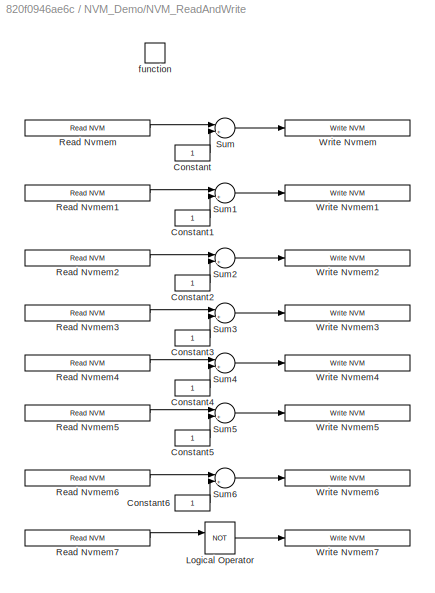
BLOCK [SubSystem] NVM_Demo/NVM_ReadAndWrite
BLOCK [Constant] NVM_Demo/NVM_ReadAndWrite/Constant
  OutDataTypeStr = Inherit: Inherit via back propagation
  SampleTime = -1
BLOCK [Constant] NVM_Demo/NVM_ReadAndWrite/Constant1
  OutDataTypeStr = Inherit: Inherit via back propagation
  SampleTime = -1
BLOCK [Constant] NVM_Demo/NVM_ReadAndWrite/Constant2
  OutDataTypeStr = Inherit: Inherit via back propagation
  SampleTime = -1
BLOCK [Constant] NVM_Demo/NVM_ReadAndWrite/Constant3
  OutDataTypeStr = Inherit: Inherit via back propagation
  SampleTime = -1
BLOCK [Constant] NVM_Demo/NVM_ReadAndWrite/Constant4
  OutDataTypeStr = Inherit: Inherit via back propagation
  SampleTime = -1
BLOCK [Constant] NVM_Demo/NVM_ReadAndWrite/Constant5
  OutDataTypeStr = Inherit: Inherit via back propagation
  SampleTime = -1
BLOCK [Constant] NVM_Demo/NVM_ReadAndWrite/Constant6
  OutDataTypeStr = Inherit: Inherit via back propagation
  SampleTime = -1
BLOCK [Logic] NVM_Demo/NVM_ReadAndWrite/Logical Operator
  AllPortsSameDT = off
  Operator = NOT
  OutDataTypeStr = boolean
BLOCK [Reference] NVM_Demo/NVM_ReadAndWrite/Read Nvmem  REF=CoderSF_BSW_Libs/Non-volatile Memory Blocks/Read NVM
  AttributesFormatString = type:%<variable_type>
  SourceBlock = CoderSF_BSW_Libs/Non-volatile Memory Blocks/Read NVM
  SourceType = Read NVM
BLOCK [Reference] NVM_Demo/NVM_ReadAndWrite/Read Nvmem1  REF=CoderSF_BSW_Libs/Non-volatile Memory Blocks/Read NVM
  AttributesFormatString = type:%<variable_type>
  SourceBlock = CoderSF_BSW_Libs/Non-volatile Memory Blocks/Read NVM
  SourceType = Read NVM
BLOCK [Reference] NVM_Demo/NVM_ReadAndWrite/Read Nvmem2  REF=CoderSF_BSW_Libs/Non-volatile Memory Blocks/Read NVM
  AttributesFormatString = type:%<variable_type>
  SourceBlock = CoderSF_BSW_Libs/Non-volatile Memory Blocks/Read NVM
  SourceType = Read NVM
BLOCK [Reference] NVM_Demo/NVM_ReadAndWrite/Read Nvmem3  REF=CoderSF_BSW_Libs/Non-volatile Memory Blocks/Read NVM
  AttributesFormatString = type:%<variable_type>
  SourceBlock = CoderSF_BSW_Libs/Non-volatile Memory Blocks/Read NVM
  SourceType = Read NVM
BLOCK [Reference] NVM_Demo/NVM_ReadAndWrite/Read Nvmem4  REF=CoderSF_BSW_Libs/Non-volatile Memory Blocks/Read NVM
  AttributesFormatString = type:%<variable_type>
  SourceBlock = CoderSF_BSW_Libs/Non-volatile Memory Blocks/Read NVM
  SourceType = Read NVM
BLOCK [Reference] NVM_Demo/NVM_ReadAndWrite/Read Nvmem5  REF=CoderSF_BSW_Libs/Non-volatile Memory Blocks/Read NVM
  AttributesFormatString = type:%<variable_type>
  SourceBlock = CoderSF_BSW_Libs/Non-volatile Memory Blocks/Read NVM
  SourceType = Read NVM
BLOCK [Reference] NVM_Demo/NVM_ReadAndWrite/Read Nvmem6  REF=CoderSF_BSW_Libs/Non-volatile Memory Blocks/Read NVM
  AttributesFormatString = type:%<variable_type>
  SourceBlock = CoderSF_BSW_Libs/Non-volatile Memory Blocks/Read NVM
  SourceType = Read NVM
BLOCK [Reference] NVM_Demo/NVM_ReadAndWrite/Read Nvmem7  REF=CoderSF_BSW_Libs/Non-volatile Memory Blocks/Read NVM
  AttributesFormatString = type:%<variable_type>
  SourceBlock = CoderSF_BSW_Libs/Non-volatile Memory Blocks/Read NVM
  SourceType = Read NVM
BLOCK [Sum] NVM_Demo/NVM_ReadAndWrite/Sum
  Inputs = |++
BLOCK [Sum] NVM_Demo/NVM_ReadAndWrite/Sum1
  Inputs = |++
BLOCK [Sum] NVM_Demo/NVM_ReadAndWrite/Sum2
  Inputs = |++
BLOCK [Sum] NVM_Demo/NVM_ReadAndWrite/Sum3
  Inputs = |++
BLOCK [Sum] NVM_Demo/NVM_ReadAndWrite/Sum4
  Inputs = |++
BLOCK [Sum] NVM_Demo/NVM_ReadAndWrite/Sum5
  Inputs = |++
BLOCK [Sum] NVM_Demo/NVM_ReadAndWrite/Sum6
  Inputs = |++
BLOCK [Reference] NVM_Demo/NVM_ReadAndWrite/Write Nvmem  REF=CoderSF_BSW_Libs/Non-volatile Memory Blocks/Write NVM
  AttributesFormatString = value:%<variable_value> type:%<variable_type> D:%<variable_numD>
  SourceBlock = CoderSF_BSW_Libs/Non-volatile Memory Blocks/Write NVM
  SourceType = Write NVM
BLOCK [Reference] NVM_Demo/NVM_ReadAndWrite/Write Nvmem1  REF=CoderSF_BSW_Libs/Non-volatile Memory Blocks/Write NVM
  AttributesFormatString = value:%<variable_value> type:%<variable_type> D:%<variable_numD>
  SourceBlock = CoderSF_BSW_Libs/Non-volatile Memory Blocks/Write NVM
  SourceType = Write NVM
BLOCK [Reference] NVM_Demo/NVM_ReadAndWrite/Write Nvmem2  REF=CoderSF_BSW_Libs/Non-volatile Memory Blocks/Write NVM
  AttributesFormatString = value:%<variable_value> type:%<variable_type> D:%<variable_numD>
  SourceBlock = CoderSF_BSW_Libs/Non-volatile Memory Blocks/Write NVM
  SourceType = Write NVM
BLOCK [Reference] NVM_Demo/NVM_ReadAndWrite/Write Nvmem3  REF=CoderSF_BSW_Libs/Non-volatile Memory Blocks/Write NVM
  AttributesFormatString = value:%<variable_value> type:%<variable_type> D:%<variable_numD>
  SourceBlock = CoderSF_BSW_Libs/Non-volatile Memory Blocks/Write NVM
  SourceType = Write NVM
BLOCK [Reference] NVM_Demo/NVM_ReadAndWrite/Write Nvmem4  REF=CoderSF_BSW_Libs/Non-volatile Memory Blocks/Write NVM
  AttributesFormatString = value:%<variable_value> type:%<variable_type> D:%<variable_numD>
  SourceBlock = CoderSF_BSW_Libs/Non-volatile Memory Blocks/Write NVM
  SourceType = Write NVM
BLOCK [Reference] NVM_Demo/NVM_ReadAndWrite/Write Nvmem5  REF=CoderSF_BSW_Libs/Non-volatile Memory Blocks/Write NVM
  AttributesFormatString = value:%<variable_value> type:%<variable_type> D:%<variable_numD>
  SourceBlock = CoderSF_BSW_Libs/Non-volatile Memory Blocks/Write NVM
  SourceType = Write NVM
BLOCK [Reference] NVM_Demo/NVM_ReadAndWrite/Write Nvmem6  REF=CoderSF_BSW_Libs/Non-volatile Memory Blocks/Write NVM
  AttributesFormatString = value:%<variable_value> type:%<variable_type> D:%<variable_numD>
  SourceBlock = CoderSF_BSW_Libs/Non-volatile Memory Blocks/Write NVM
  SourceType = Write NVM
BLOCK [Reference] NVM_Demo/NVM_ReadAndWrite/Write Nvmem7  REF=CoderSF_BSW_Libs/Non-volatile Memory Blocks/Write NVM
  AttributesFormatString = value:%<variable_value> type:%<variable_type> D:%<variable_numD>
  SourceBlock = CoderSF_BSW_Libs/Non-volatile Memory Blocks/Write NVM
  SourceType = Write NVM
BLOCK [TriggerPort] NVM_Demo/NVM_ReadAndWrite/function
  StatesWhenEnabling = held
  TriggerType = function-call
  VariantControl = (inherit)
BLOCK [Reference] NVM_Demo/Task_Call1  REF=CoderSF_BSW_Libs/Task Scheduler/Task Trigger
  SourceBlock = CoderSF_BSW_Libs/Task Scheduler/Task Trigger
  SourceType = Task Trigger
BLOCK [Reference] NVM_Demo/Task_Call2  REF=CoderSF_BSW_Libs/Task Scheduler/Task Trigger
  SourceBlock = CoderSF_BSW_Libs/Task Scheduler/Task Trigger
  SourceType = Task Trigger
BLOCK [SubSystem] Set PowerDelay1
BLOCK [SubSystem] Set PowerDelay1/Set PowerDelay of Switch Internal 
BLOCK [Reference] Set PowerDelay1/Set PowerDelay of Switch Internal /Switch Internal   REF=CoderSF_BSW_Libs/Digital I//O/Switch Internal 
  SourceBlock = CoderSF_BSW_Libs/Digital I//O/Switch Internal
  SourceType = Switch Internal
BLOCK [Inport] Set PowerDelay1/Set PowerDelay of Switch Internal /flgPowerDelay
BLOCK [TriggerPort] Set PowerDelay1/Set PowerDelay of Switch Internal /function
  StatesWhenEnabling = held
  TriggerType = function-call
  VariantControl = (inherit)
BLOCK [Reference] Set PowerDelay1/Task_Trigger  REF=CoderSF_BSW_Libs/Task Scheduler/Task Trigger
  SourceBlock = CoderSF_BSW_Libs/Task Scheduler/Task Trigger
  SourceType = Task Trigger
BLOCK [Inport] Set PowerDelay1/flgPowerDelay
BLOCK [SubSystem] Set Software Reset1
BLOCK [SubSystem] Set Software Reset1/Set Software Reset
BLOCK [Reference] Set Software Reset1/Set Software Reset/Software Reset Hold  REF=CoderSF_BSW_Libs/System Management Blocks/Software Reset Hold
  SourceBlock = CoderSF_BSW_Libs/System Management Blocks/Software Reset Hold
  SourceType = Software Reset Hold
BLOCK [Inport] Set Software Reset1/Set Software Reset/flgReset
BLOCK [TriggerPort] Set Software Reset1/Set Software Reset/function
  StatesWhenEnabling = held
  TriggerType = function-call
  VariantControl = (inherit)
BLOCK [Reference] Set Software Reset1/Task_Trigger  REF=CoderSF_BSW_Libs/Task Scheduler/Task Trigger
  SourceBlock = CoderSF_BSW_Libs/Task Scheduler/Task Trigger
  SourceType = Task Trigger
BLOCK [Inport] Set Software Reset1/flgReset
BLOCK [Terminator] Terminator1
LINE ASW_Chassis/Electronic Differential control/Constant:1 -> ASW_Chassis/Electronic Differential control/Out1:1
LINE ASW_Chassis/Electronic Differential control/brk:1 -> ASW_Chassis/Electronic Differential control/Terminator1:1
LINE ASW_Chassis/Electronic Differential control/thrtl:1 -> ASW_Chassis/Electronic Differential control/Terminator:1
LINE ASW_Chassis/Reasoning/Constant:1 -> ASW_Chassis/Reasoning/Out1:1
LINE ASW_Chassis/Reasoning/brk:1 -> ASW_Chassis/Reasoning/Terminator1:1
LINE ASW_Chassis/Reasoning/thrtl:1 -> ASW_Chassis/Reasoning/Terminator:1
LINE ASW_Chassis/Vehicle Longitudinal Control/Constant:1 -> ASW_Chassis/Vehicle Longitudinal Control/Out1:1
LINE ASW_Chassis/Vehicle Longitudinal Control/brk:1 -> ASW_Chassis/Vehicle Longitudinal Control/Terminator1:1
LINE ASW_Chassis/Vehicle Longitudinal Control/thrtl:1 -> ASW_Chassis/Vehicle Longitudinal Control/Terminator:1
LINE ASW_Chassis:1 -> Goto1:1
LINE ASW_Demo/01  process input signals/01 process electrical supply input signals/02 process electrical supply input signals/01 process battery voltage/ADC Value To Volt:1 -> ASW_Demo/01  process input signals/01 process electrical supply input signals/02 process electrical supply input signals/01 process battery voltage/ecocoder_measurement1:1
LINE ASW_Demo/01  process input signals/01 process electrical supply input signals/02 process electrical supply input signals/01 process battery voltage/Read ADC Value:1 -> ASW_Demo/01  process input signals/01 process electrical supply input signals/02 process electrical supply input signals/01 process battery voltage/ADC Value To Volt:1
LINE ASW_Demo/01  process input signals/01 process electrical supply input signals/02 process electrical supply input signals/01 process battery voltage/ecocoder_measurement1:1 -> ASW_Demo/01  process input signals/01 process electrical supply input signals/02 process electrical supply input signals/01 process battery voltage/sigInEsmBatt_volt:1
LINE ASW_Demo/01  process input signals/01 process electrical supply input signals/02 process electrical supply input signals/01 process battery voltage:1 -> ASW_Demo/01  process input signals/01 process electrical supply input signals/02 process electrical supply input signals/sigInEsmBatt_volt:1
LINE ASW_Demo/01  process input signals/01 process electrical supply input signals/02 process electrical supply input signals:1 -> ASW_Demo/01  process input signals/01 process electrical supply input signals/sigInEsmBatt_volt:1
LINE ASW_Demo/01  process input signals/01 process electrical supply input signals/Task_Call1:1 -> ASW_Demo/01  process input signals/01 process electrical supply input signals/02 process electrical supply input signals:trigger
LINE ASW_Demo/01  process input signals/01 process electrical supply input signals:1 -> ASW_Demo/01  process input signals/sigInEsmBatt_volt:1
LINE ASW_Demo/01  process input signals/02 process driver input signals/01 link driver input signals/01 link key position/LogicNOT1:1 -> ASW_Demo/01  process input signals/02 process driver input signals/01 link driver input signals/01 link key position/if_then_else:2
NET ASW_Demo/01  process input signals/02 process driver input signals/01 link driver input signals/01 link key position/Switch Input:1 -> ASW_Demo/01  process input signals/02 process driver input signals/01 link driver input signals/01 link key position/LogicNOT1:1, ASW_Demo/01  process input signals/02 process driver input signals/01 link driver input signals/01 link key position/if_then_else:3
LINE ASW_Demo/01  process input signals/02 process driver input signals/01 link driver input signals/01 link key position/ecocoder_calibration:1 -> ASW_Demo/01  process input signals/02 process driver input signals/01 link driver input signals/01 link key position/if_then_else:1
LINE ASW_Demo/01  process input signals/02 process driver input signals/01 link driver input signals/01 link key position/ecocoder_measurement1:1 -> ASW_Demo/01  process input signals/02 process driver input signals/01 link driver input signals/01 link key position/sigInLinkDrvKey_flgOn:1
LINE ASW_Demo/01  process input signals/02 process driver input signals/01 link driver input signals/01 link key position/if_then_else:1 -> ASW_Demo/01  process input signals/02 process driver input signals/01 link driver input signals/01 link key position/ecocoder_measurement1:1
LINE ASW_Demo/01  process input signals/02 process driver input signals/01 link driver input signals/01 link key position:1 -> ASW_Demo/01  process input signals/02 process driver input signals/01 link driver input signals/sigInLinkDrvKey_flgOn:1
LINE ASW_Demo/01  process input signals/02 process driver input signals/01 link driver input signals/03 link accelerator pedal/ADC Value To Volt1:1 -> ASW_Demo/01  process input signals/02 process driver input signals/01 link driver input signals/03 link accelerator pedal/ecocoder_measurement2:1
LINE ASW_Demo/01  process input signals/02 process driver input signals/01 link driver input signals/03 link accelerator pedal/ADC Value To Volt:1 -> ASW_Demo/01  process input signals/02 process driver input signals/01 link driver input signals/03 link accelerator pedal/ecocoder_measurement1:1
LINE ASW_Demo/01  process input signals/02 process driver input signals/01 link driver input signals/03 link accelerator pedal/Read ADC Value1:1 -> ASW_Demo/01  process input signals/02 process driver input signals/01 link driver input signals/03 link accelerator pedal/ADC Value To Volt1:1
LINE ASW_Demo/01  process input signals/02 process driver input signals/01 link driver input signals/03 link accelerator pedal/Read ADC Value:1 -> ASW_Demo/01  process input signals/02 process driver input signals/01 link driver input signals/03 link accelerator pedal/ADC Value To Volt:1
LINE ASW_Demo/01  process input signals/02 process driver input signals/01 link driver input signals/03 link accelerator pedal/ecocoder_measurement1:1 -> ASW_Demo/01  process input signals/02 process driver input signals/01 link driver input signals/03 link accelerator pedal/sigInLinkDrvPedacc_volt1:1
LINE ASW_Demo/01  process input signals/02 process driver input signals/01 link driver input signals/03 link accelerator pedal/ecocoder_measurement2:1 -> ASW_Demo/01  process input signals/02 process driver input signals/01 link driver input signals/03 link accelerator pedal/sigInLinkDrvPedacc_volt2:1
LINE ASW_Demo/01  process input signals/02 process driver input signals/01 link driver input signals/03 link accelerator pedal:1 -> ASW_Demo/01  process input signals/02 process driver input signals/01 link driver input signals/sigInLinkDrvPedacc_volt1:1
LINE ASW_Demo/01  process input signals/02 process driver input signals/01 link driver input signals/03 link accelerator pedal:2 -> ASW_Demo/01  process input signals/02 process driver input signals/01 link driver input signals/sigInLinkDrvPedacc_volt2:1
LINE ASW_Demo/01  process input signals/02 process driver input signals/01 link driver input signals:1 -> ASW_Demo/01  process input signals/02 process driver input signals/Terminator:1
LINE ASW_Demo/01  process input signals/02 process driver input signals/01 link driver input signals:2 -> ASW_Demo/01  process input signals/02 process driver input signals/02 process driver input signals:1
LINE ASW_Demo/01  process input signals/02 process driver input signals/01 link driver input signals:3 -> ASW_Demo/01  process input signals/02 process driver input signals/02 process driver input signals:2
NET ASW_Demo/01  process input signals/02 process driver input signals/02 process driver input signals/03 processs accelerator pedal/01 process accelerator pedal error/Switch1:1 -> ASW_Demo/01  process input signals/02 process driver input signals/02 process driver input signals/03 processs accelerator pedal/01 process accelerator pedal error/Switch:3, ASW_Demo/01  process input signals/02 process driver input signals/02 process driver input signals/03 processs accelerator pedal/01 process accelerator pedal error/Unit Delay:1
LINE ASW_Demo/01  process input signals/02 process driver input signals/02 process driver input signals/03 processs accelerator pedal/01 process accelerator pedal error/Switch2:1 -> ASW_Demo/01  process input signals/02 process driver input signals/02 process driver input signals/03 processs accelerator pedal/01 process accelerator pedal error/ecocoder_measurement1:1
NET ASW_Demo/01  process input signals/02 process driver input signals/02 process driver input signals/03 processs accelerator pedal/01 process accelerator pedal error/Switch3:1 -> ASW_Demo/01  process input signals/02 process driver input signals/02 process driver input signals/03 processs accelerator pedal/01 process accelerator pedal error/Switch2:3, ASW_Demo/01  process input signals/02 process driver input signals/02 process driver input signals/03 processs accelerator pedal/01 process accelerator pedal error/Unit Delay1:1
LINE ASW_Demo/01  process input signals/02 process driver input signals/02 process driver input signals/03 processs accelerator pedal/01 process accelerator pedal error/Switch:1 -> ASW_Demo/01  process input signals/02 process driver input signals/02 process driver input signals/03 processs accelerator pedal/01 process accelerator pedal error/ecocoder_measurement2:1
LINE ASW_Demo/01  process input signals/02 process driver input signals/02 process driver input signals/03 processs accelerator pedal/01 process accelerator pedal error/Unit Delay1:1 -> ASW_Demo/01  process input signals/02 process driver input signals/02 process driver input signals/03 processs accelerator pedal/01 process accelerator pedal error/Switch3:1
LINE ASW_Demo/01  process input signals/02 process driver input signals/02 process driver input signals/03 processs accelerator pedal/01 process accelerator pedal error/Unit Delay:1 -> ASW_Demo/01  process input signals/02 process driver input signals/02 process driver input signals/03 processs accelerator pedal/01 process accelerator pedal error/Switch1:1
LINE ASW_Demo/01  process input signals/02 process driver input signals/02 process driver input signals/03 processs accelerator pedal/01 process accelerator pedal error/diagDrvPedacc1_flgFinalDef:1 -> ASW_Demo/01  process input signals/02 process driver input signals/02 process driver input signals/03 processs accelerator pedal/01 process accelerator pedal error/Switch:2
LINE ASW_Demo/01  process input signals/02 process driver input signals/02 process driver input signals/03 processs accelerator pedal/01 process accelerator pedal error/diagDrvPedacc1_flgProvDef:1 -> ASW_Demo/01  process input signals/02 process driver input signals/02 process driver input signals/03 processs accelerator pedal/01 process accelerator pedal error/Switch1:2
LINE ASW_Demo/01  process input signals/02 process driver input signals/02 process driver input signals/03 processs accelerator pedal/01 process accelerator pedal error/diagDrvPedacc2_flgFinalDef:1 -> ASW_Demo/01  process input signals/02 process driver input signals/02 process driver input signals/03 processs accelerator pedal/01 process accelerator pedal error/Switch2:2
LINE ASW_Demo/01  process input signals/02 process driver input signals/02 process driver input signals/03 processs accelerator pedal/01 process accelerator pedal error/diagDrvPedacc2_flgProvDef:1 -> ASW_Demo/01  process input signals/02 process driver input signals/02 process driver input signals/03 processs accelerator pedal/01 process accelerator pedal error/Switch3:2
LINE ASW_Demo/01  process input signals/02 process driver input signals/02 process driver input signals/03 processs accelerator pedal/01 process accelerator pedal error/ecocoder_calibration1:1 -> ASW_Demo/01  process input signals/02 process driver input signals/02 process driver input signals/03 processs accelerator pedal/01 process accelerator pedal error/Switch2:1
LINE ASW_Demo/01  process input signals/02 process driver input signals/02 process driver input signals/03 processs accelerator pedal/01 process accelerator pedal error/ecocoder_calibration:1 -> ASW_Demo/01  process input signals/02 process driver input signals/02 process driver input signals/03 processs accelerator pedal/01 process accelerator pedal error/Switch:1
LINE ASW_Demo/01  process input signals/02 process driver input signals/02 process driver input signals/03 processs accelerator pedal/01 process accelerator pedal error/ecocoder_measurement1:1 -> ASW_Demo/01  process input signals/02 process driver input signals/02 process driver input signals/03 processs accelerator pedal/01 process accelerator pedal error/sigInDrvPedacc_volt2:1
LINE ASW_Demo/01  process input signals/02 process driver input signals/02 process driver input signals/03 processs accelerator pedal/01 process accelerator pedal error/ecocoder_measurement2:1 -> ASW_Demo/01  process input signals/02 process driver input signals/02 process driver input signals/03 processs accelerator pedal/01 process accelerator pedal error/sigInDrvPedacc_volt1:1
LINE ASW_Demo/01  process input signals/02 process driver input signals/02 process driver input signals/03 processs accelerator pedal/01 process accelerator pedal error/sigInLinkDrvPedacc_volt1:1 -> ASW_Demo/01  process input signals/02 process driver input signals/02 process driver input signals/03 processs accelerator pedal/01 process accelerator pedal error/Switch1:3
LINE ASW_Demo/01  process input signals/02 process driver input signals/02 process driver input signals/03 processs accelerator pedal/01 process accelerator pedal error/sigInLinkDrvPedacc_volt2:1 -> ASW_Demo/01  process input signals/02 process driver input signals/02 process driver input signals/03 processs accelerator pedal/01 process accelerator pedal error/Switch3:3
NET ASW_Demo/01  process input signals/02 process driver input signals/02 process driver input signals/03 processs accelerator pedal/01 process accelerator pedal error:1 -> ASW_Demo/01  process input signals/02 process driver input signals/02 process driver input signals/03 processs accelerator pedal/02 voltage selection:1, ASW_Demo/01  process input signals/02 process driver input signals/02 process driver input signals/03 processs accelerator pedal/Goto1:1
NET ASW_Demo/01  process input signals/02 process driver input signals/02 process driver input signals/03 processs accelerator pedal/01 process accelerator pedal error:2 -> ASW_Demo/01  process input signals/02 process driver input signals/02 process driver input signals/03 processs accelerator pedal/02 voltage selection:2, ASW_Demo/01  process input signals/02 process driver input signals/02 process driver input signals/03 processs accelerator pedal/Goto2:1
LINE ASW_Demo/01  process input signals/02 process driver input signals/02 process driver input signals/03 processs accelerator pedal/02 voltage selection/SelSig_GetStSigSrc/Constant:1 -> ASW_Demo/01  process input signals/02 process driver input signals/02 process driver input signals/03 processs accelerator pedal/02 voltage selection/SelSig_GetStSigSrc/sigInDrvPedacc_stSigSrc:1
LINE ASW_Demo/01  process input signals/02 process driver input signals/02 process driver input signals/03 processs accelerator pedal/02 voltage selection/SelSig_GetStSigSrc/diagDrvPedacc1_flgFinalDef:1 -> ASW_Demo/01  process input signals/02 process driver input signals/02 process driver input signals/03 processs accelerator pedal/02 voltage selection/SelSig_GetStSigSrc/Terminator2:1
LINE ASW_Demo/01  process input signals/02 process driver input signals/02 process driver input signals/03 processs accelerator pedal/02 voltage selection/SelSig_GetStSigSrc/diagDrvPedacc1_flgShrtPwr:1 -> ASW_Demo/01  process input signals/02 process driver input signals/02 process driver input signals/03 processs accelerator pedal/02 voltage selection/SelSig_GetStSigSrc/Terminator:1
LINE ASW_Demo/01  process input signals/02 process driver input signals/02 process driver input signals/03 processs accelerator pedal/02 voltage selection/SelSig_GetStSigSrc/diagDrvPedacc2_flgFinalDef:1 -> ASW_Demo/01  process input signals/02 process driver input signals/02 process driver input signals/03 processs accelerator pedal/02 voltage selection/SelSig_GetStSigSrc/Terminator3:1
LINE ASW_Demo/01  process input signals/02 process driver input signals/02 process driver input signals/03 processs accelerator pedal/02 voltage selection/SelSig_GetStSigSrc/diagDrvPedacc2_flgShrtPwr:1 -> ASW_Demo/01  process input signals/02 process driver input signals/02 process driver input signals/03 processs accelerator pedal/02 voltage selection/SelSig_GetStSigSrc/Terminator1:1
LINE ASW_Demo/01  process input signals/02 process driver input signals/02 process driver input signals/03 processs accelerator pedal/02 voltage selection/SelSig_GetStSigSrc/diagDrvPedacc_flgSyncDef:1 -> ASW_Demo/01  process input signals/02 process driver input signals/02 process driver input signals/03 processs accelerator pedal/02 voltage selection/SelSig_GetStSigSrc/Terminator4:1
NET ASW_Demo/01  process input signals/02 process driver input signals/02 process driver input signals/03 processs accelerator pedal/02 voltage selection/SelSig_GetStSigSrc:1 -> ASW_Demo/01  process input signals/02 process driver input signals/02 process driver input signals/03 processs accelerator pedal/02 voltage selection/SelSig_GetURaw:1, ASW_Demo/01  process input signals/02 process driver input signals/02 process driver input signals/03 processs accelerator pedal/02 voltage selection/sigInDrvPedacc_stSigSrc:1
LINE ASW_Demo/01  process input signals/02 process driver input signals/02 process driver input signals/03 processs accelerator pedal/02 voltage selection/SelSig_GetURaw/Add1:1 -> ASW_Demo/01  process input signals/02 process driver input signals/02 process driver input signals/03 processs accelerator pedal/02 voltage selection/SelSig_GetURaw/MinMax:2
LINE ASW_Demo/01  process input signals/02 process driver input signals/02 process driver input signals/03 processs accelerator pedal/02 voltage selection/SelSig_GetURaw/Constant1:1 -> ASW_Demo/01  process input signals/02 process driver input signals/02 process driver input signals/03 processs accelerator pedal/02 voltage selection/SelSig_GetURaw/Switch1:2
LINE ASW_Demo/01  process input signals/02 process driver input signals/02 process driver input signals/03 processs accelerator pedal/02 voltage selection/SelSig_GetURaw/Constant2:1 -> ASW_Demo/01  process input signals/02 process driver input signals/02 process driver input signals/03 processs accelerator pedal/02 voltage selection/SelSig_GetURaw/Switch:2
LINE ASW_Demo/01  process input signals/02 process driver input signals/02 process driver input signals/03 processs accelerator pedal/02 voltage selection/SelSig_GetURaw/Constant:1 -> ASW_Demo/01  process input signals/02 process driver input signals/02 process driver input signals/03 processs accelerator pedal/02 voltage selection/SelSig_GetURaw/Switch2:2
LINE ASW_Demo/01  process input signals/02 process driver input signals/02 process driver input signals/03 processs accelerator pedal/02 voltage selection/SelSig_GetURaw/MinMax:1 -> ASW_Demo/01  process input signals/02 process driver input signals/02 process driver input signals/03 processs accelerator pedal/02 voltage selection/SelSig_GetURaw/Switch:3
NET ASW_Demo/01  process input signals/02 process driver input signals/02 process driver input signals/03 processs accelerator pedal/02 voltage selection/SelSig_GetURaw/Product:1 -> ASW_Demo/01  process input signals/02 process driver input signals/02 process driver input signals/03 processs accelerator pedal/02 voltage selection/SelSig_GetURaw/Add1:2, ASW_Demo/01  process input signals/02 process driver input signals/02 process driver input signals/03 processs accelerator pedal/02 voltage selection/SelSig_GetURaw/Switch1:1
LINE ASW_Demo/01  process input signals/02 process driver input signals/02 process driver input signals/03 processs accelerator pedal/02 voltage selection/SelSig_GetURaw/Rate Limiter Dynamic:1 -> ASW_Demo/01  process input signals/02 process driver input signals/02 process driver input signals/03 processs accelerator pedal/02 voltage selection/SelSig_GetURaw/ecocoder_measurement2:1
LINE ASW_Demo/01  process input signals/02 process driver input signals/02 process driver input signals/03 processs accelerator pedal/02 voltage selection/SelSig_GetURaw/Switch1:1 -> ASW_Demo/01  process input signals/02 process driver input signals/02 process driver input signals/03 processs accelerator pedal/02 voltage selection/SelSig_GetURaw/Switch2:3
LINE ASW_Demo/01  process input signals/02 process driver input signals/02 process driver input signals/03 processs accelerator pedal/02 voltage selection/SelSig_GetURaw/Switch2:1 -> ASW_Demo/01  process input signals/02 process driver input signals/02 process driver input signals/03 processs accelerator pedal/02 voltage selection/SelSig_GetURaw/Rate Limiter Dynamic:2
LINE ASW_Demo/01  process input signals/02 process driver input signals/02 process driver input signals/03 processs accelerator pedal/02 voltage selection/SelSig_GetURaw/Switch:1 -> ASW_Demo/01  process input signals/02 process driver input signals/02 process driver input signals/03 processs accelerator pedal/02 voltage selection/SelSig_GetURaw/Switch1:3
LINE ASW_Demo/01  process input signals/02 process driver input signals/02 process driver input signals/03 processs accelerator pedal/02 voltage selection/SelSig_GetURaw/diagDrvPedacc1_flgFinalDef:1 -> ASW_Demo/01  process input signals/02 process driver input signals/02 process driver input signals/03 processs accelerator pedal/02 voltage selection/SelSig_GetURaw/Terminator:1
LINE ASW_Demo/01  process input signals/02 process driver input signals/02 process driver input signals/03 processs accelerator pedal/02 voltage selection/SelSig_GetURaw/diagDrvPedacc1_flgProvDef:1 -> ASW_Demo/01  process input signals/02 process driver input signals/02 process driver input signals/03 processs accelerator pedal/02 voltage selection/SelSig_GetURaw/Terminator1:1
LINE ASW_Demo/01  process input signals/02 process driver input signals/02 process driver input signals/03 processs accelerator pedal/02 voltage selection/SelSig_GetURaw/diagDrvPedacc2_flgFinalDef:1 -> ASW_Demo/01  process input signals/02 process driver input signals/02 process driver input signals/03 processs accelerator pedal/02 voltage selection/SelSig_GetURaw/Terminator2:1
LINE ASW_Demo/01  process input signals/02 process driver input signals/02 process driver input signals/03 processs accelerator pedal/02 voltage selection/SelSig_GetURaw/diagDrvPedacc2_flgProvDef:1 -> ASW_Demo/01  process input signals/02 process driver input signals/02 process driver input signals/03 processs accelerator pedal/02 voltage selection/SelSig_GetURaw/Terminator3:1
LINE ASW_Demo/01  process input signals/02 process driver input signals/02 process driver input signals/03 processs accelerator pedal/02 voltage selection/SelSig_GetURaw/diagDrvPedacc_flgSyncDef:1 -> ASW_Demo/01  process input signals/02 process driver input signals/02 process driver input signals/03 processs accelerator pedal/02 voltage selection/SelSig_GetURaw/Terminator4:1
LINE ASW_Demo/01  process input signals/02 process driver input signals/02 process driver input signals/03 processs accelerator pedal/02 voltage selection/SelSig_GetURaw/diagDrvPedacc_flgSyncProvDef:1 -> ASW_Demo/01  process input signals/02 process driver input signals/02 process driver input signals/03 processs accelerator pedal/02 voltage selection/SelSig_GetURaw/Terminator5:1
LINE ASW_Demo/01  process input signals/02 process driver input signals/02 process driver input signals/03 processs accelerator pedal/02 voltage selection/SelSig_GetURaw/ecocoder_calibration1:1 -> ASW_Demo/01  process input signals/02 process driver input signals/02 process driver input signals/03 processs accelerator pedal/02 voltage selection/SelSig_GetURaw/Product:2
LINE ASW_Demo/01  process input signals/02 process driver input signals/02 process driver input signals/03 processs accelerator pedal/02 voltage selection/SelSig_GetURaw/ecocoder_calibration2:1 -> ASW_Demo/01  process input signals/02 process driver input signals/02 process driver input signals/03 processs accelerator pedal/02 voltage selection/SelSig_GetURaw/Switch2:1
LINE ASW_Demo/01  process input signals/02 process driver input signals/02 process driver input signals/03 processs accelerator pedal/02 voltage selection/SelSig_GetURaw/ecocoder_calibration3:1 -> ASW_Demo/01  process input signals/02 process driver input signals/02 process driver input signals/03 processs accelerator pedal/02 voltage selection/SelSig_GetURaw/Rate Limiter Dynamic:1
LINE ASW_Demo/01  process input signals/02 process driver input signals/02 process driver input signals/03 processs accelerator pedal/02 voltage selection/SelSig_GetURaw/ecocoder_calibration4:1 -> ASW_Demo/01  process input signals/02 process driver input signals/02 process driver input signals/03 processs accelerator pedal/02 voltage selection/SelSig_GetURaw/Rate Limiter Dynamic:3
LINE ASW_Demo/01  process input signals/02 process driver input signals/02 process driver input signals/03 processs accelerator pedal/02 voltage selection/SelSig_GetURaw/ecocoder_calibration:1 -> ASW_Demo/01  process input signals/02 process driver input signals/02 process driver input signals/03 processs accelerator pedal/02 voltage selection/SelSig_GetURaw/Add1:1
LINE ASW_Demo/01  process input signals/02 process driver input signals/02 process driver input signals/03 processs accelerator pedal/02 voltage selection/SelSig_GetURaw/ecocoder_measurement2:1 -> ASW_Demo/01  process input signals/02 process driver input signals/02 process driver input signals/03 processs accelerator pedal/02 voltage selection/SelSig_GetURaw/sigInDrvPedacc_volt:1
LINE ASW_Demo/01  process input signals/02 process driver input signals/02 process driver input signals/03 processs accelerator pedal/02 voltage selection/SelSig_GetURaw/sigInDrvPedacc_stSigSrc:1 -> ASW_Demo/01  process input signals/02 process driver input signals/02 process driver input signals/03 processs accelerator pedal/02 voltage selection/SelSig_GetURaw/Terminator6:1
NET ASW_Demo/01  process input signals/02 process driver input signals/02 process driver input signals/03 processs accelerator pedal/02 voltage selection/SelSig_GetURaw/sigInDrvPedacc_volt1:1 -> ASW_Demo/01  process input signals/02 process driver input signals/02 process driver input signals/03 processs accelerator pedal/02 voltage selection/SelSig_GetURaw/MinMax:1, ASW_Demo/01  process input signals/02 process driver input signals/02 process driver input signals/03 processs accelerator pedal/02 voltage selection/SelSig_GetURaw/Switch:1
LINE ASW_Demo/01  process input signals/02 process driver input signals/02 process driver input signals/03 processs accelerator pedal/02 voltage selection/SelSig_GetURaw/sigInDrvPedacc_volt2:1 -> ASW_Demo/01  process input signals/02 process driver input signals/02 process driver input signals/03 processs accelerator pedal/02 voltage selection/SelSig_GetURaw/Product:1
LINE ASW_Demo/01  process input signals/02 process driver input signals/02 process driver input signals/03 processs accelerator pedal/02 voltage selection/SelSig_GetURaw:1 -> ASW_Demo/01  process input signals/02 process driver input signals/02 process driver input signals/03 processs accelerator pedal/02 voltage selection/sigInDrvPedacc_volt:1
NET ASW_Demo/01  process input signals/02 process driver input signals/02 process driver input signals/03 processs accelerator pedal/02 voltage selection/diagDrvPedacc1_flgFinalDef:1 -> ASW_Demo/01  process input signals/02 process driver input signals/02 process driver input signals/03 processs accelerator pedal/02 voltage selection/SelSig_GetStSigSrc:3, ASW_Demo/01  process input signals/02 process driver input signals/02 process driver input signals/03 processs accelerator pedal/02 voltage selection/SelSig_GetURaw:5
LINE ASW_Demo/01  process input signals/02 process driver input signals/02 process driver input signals/03 processs accelerator pedal/02 voltage selection/diagDrvPedacc1_flgProvDef:1 -> ASW_Demo/01  process input signals/02 process driver input signals/02 process driver input signals/03 processs accelerator pedal/02 voltage selection/SelSig_GetURaw:4
LINE ASW_Demo/01  process input signals/02 process driver input signals/02 process driver input signals/03 processs accelerator pedal/02 voltage selection/diagDrvPedacc1_flgShrtPwr:1 -> ASW_Demo/01  process input signals/02 process driver input signals/02 process driver input signals/03 processs accelerator pedal/02 voltage selection/SelSig_GetStSigSrc:1
NET ASW_Demo/01  process input signals/02 process driver input signals/02 process driver input signals/03 processs accelerator pedal/02 voltage selection/diagDrvPedacc2_flgFinalDef:1 -> ASW_Demo/01  process input signals/02 process driver input signals/02 process driver input signals/03 processs accelerator pedal/02 voltage selection/SelSig_GetStSigSrc:4, ASW_Demo/01  process input signals/02 process driver input signals/02 process driver input signals/03 processs accelerator pedal/02 voltage selection/SelSig_GetURaw:7
LINE ASW_Demo/01  process input signals/02 process driver input signals/02 process driver input signals/03 processs accelerator pedal/02 voltage selection/diagDrvPedacc2_flgProvDef:1 -> ASW_Demo/01  process input signals/02 process driver input signals/02 process driver input signals/03 processs accelerator pedal/02 voltage selection/SelSig_GetURaw:6
LINE ASW_Demo/01  process input signals/02 process driver input signals/02 process driver input signals/03 processs accelerator pedal/02 voltage selection/diagDrvPedacc2_flgShrtPwr:1 -> ASW_Demo/01  process input signals/02 process driver input signals/02 process driver input signals/03 processs accelerator pedal/02 voltage selection/SelSig_GetStSigSrc:2
NET ASW_Demo/01  process input signals/02 process driver input signals/02 process driver input signals/03 processs accelerator pedal/02 voltage selection/diagDrvPedacc_flgSyncDef:1 -> ASW_Demo/01  process input signals/02 process driver input signals/02 process driver input signals/03 processs accelerator pedal/02 voltage selection/SelSig_GetStSigSrc:5, ASW_Demo/01  process input signals/02 process driver input signals/02 process driver input signals/03 processs accelerator pedal/02 voltage selection/SelSig_GetURaw:8
LINE ASW_Demo/01  process input signals/02 process driver input signals/02 process driver input signals/03 processs accelerator pedal/02 voltage selection/diagDrvPedacc_flgSyncProvDef:1 -> ASW_Demo/01  process input signals/02 process driver input signals/02 process driver input signals/03 processs accelerator pedal/02 voltage selection/SelSig_GetURaw:9
LINE ASW_Demo/01  process input signals/02 process driver input signals/02 process driver input signals/03 processs accelerator pedal/02 voltage selection/sigInDrvPedacc_volt1:1 -> ASW_Demo/01  process input signals/02 process driver input signals/02 process driver input signals/03 processs accelerator pedal/02 voltage selection/SelSig_GetURaw:3
LINE ASW_Demo/01  process input signals/02 process driver input signals/02 process driver input signals/03 processs accelerator pedal/02 voltage selection/sigInDrvPedacc_volt2:1 -> ASW_Demo/01  process input signals/02 process driver input signals/02 process driver input signals/03 processs accelerator pedal/02 voltage selection/SelSig_GetURaw:2
LINE ASW_Demo/01  process input signals/02 process driver input signals/02 process driver input signals/03 processs accelerator pedal/02 voltage selection:1 -> ASW_Demo/01  process input signals/02 process driver input signals/02 process driver input signals/03 processs accelerator pedal/03 convert voltage to percentage:1
LINE ASW_Demo/01  process input signals/02 process driver input signals/02 process driver input signals/03 processs accelerator pedal/02 voltage selection:2 -> ASW_Demo/01  process input signals/02 process driver input signals/02 process driver input signals/03 processs accelerator pedal/03 convert voltage to percentage:2
LINE ASW_Demo/01  process input signals/02 process driver input signals/02 process driver input signals/03 processs accelerator pedal/03 convert voltage to percentage/GetRUnFlt/Delay:1 -> ASW_Demo/01  process input signals/02 process driver input signals/02 process driver input signals/03 processs accelerator pedal/03 convert voltage to percentage/GetRUnFlt/Subtract:2
LINE ASW_Demo/01  process input signals/02 process driver input signals/02 process driver input signals/03 processs accelerator pedal/03 convert voltage to percentage/GetRUnFlt/GetRUnFlt_Unjitter/DT_conv1:1 -> ASW_Demo/01  process input signals/02 process driver input signals/02 process driver input signals/03 processs accelerator pedal/03 convert voltage to percentage/GetRUnFlt/GetRUnFlt_Unjitter/ecocoder_measurement:1
LINE ASW_Demo/01  process input signals/02 process driver input signals/02 process driver input signals/03 processs accelerator pedal/03 convert voltage to percentage/GetRUnFlt/GetRUnFlt_Unjitter/ecocoder_measurement:1 -> ASW_Demo/01  process input signals/02 process driver input signals/02 process driver input signals/03 processs accelerator pedal/03 convert voltage to percentage/GetRUnFlt/GetRUnFlt_Unjitter/sigInDrvPedacc_voltUnJit:1
LINE ASW_Demo/01  process input signals/02 process driver input signals/02 process driver input signals/03 processs accelerator pedal/03 convert voltage to percentage/GetRUnFlt/GetRUnFlt_Unjitter/sigInDrvPedacc_flgtEnaUnJit_val:1 -> ASW_Demo/01  process input signals/02 process driver input signals/02 process driver input signals/03 processs accelerator pedal/03 convert voltage to percentage/GetRUnFlt/GetRUnFlt_Unjitter/Terminator1:1
LINE ASW_Demo/01  process input signals/02 process driver input signals/02 process driver input signals/03 processs accelerator pedal/03 convert voltage to percentage/GetRUnFlt/GetRUnFlt_Unjitter/sigInDrvPedacc_volt:1 -> ASW_Demo/01  process input signals/02 process driver input signals/02 process driver input signals/03 processs accelerator pedal/03 convert voltage to percentage/GetRUnFlt/GetRUnFlt_Unjitter/DT_conv1:1
LINE ASW_Demo/01  process input signals/02 process driver input signals/02 process driver input signals/03 processs accelerator pedal/03 convert voltage to percentage/GetRUnFlt/GetRUnFlt_Unjitter/sigInDrvPedacc_voltJitter_val:1 -> ASW_Demo/01  process input signals/02 process driver input signals/02 process driver input signals/03 processs accelerator pedal/03 convert voltage to percentage/GetRUnFlt/GetRUnFlt_Unjitter/Terminator:1
LINE ASW_Demo/01  process input signals/02 process driver input signals/02 process driver input signals/03 processs accelerator pedal/03 convert voltage to percentage/GetRUnFlt/GetRUnFlt_Unjitter:1 -> ASW_Demo/01  process input signals/02 process driver input signals/02 process driver input signals/03 processs accelerator pedal/03 convert voltage to percentage/GetRUnFlt/sigInDrvPedacc_pctLin_cur :1
LINE ASW_Demo/01  process input signals/02 process driver input signals/02 process driver input signals/03 processs accelerator pedal/03 convert voltage to percentage/GetRUnFlt/Subtract:1 -> ASW_Demo/01  process input signals/02 process driver input signals/02 process driver input signals/03 processs accelerator pedal/03 convert voltage to percentage/GetRUnFlt/ecocoder_measurement1:1
LINE ASW_Demo/01  process input signals/02 process driver input signals/02 process driver input signals/03 processs accelerator pedal/03 convert voltage to percentage/GetRUnFlt/ecocoder_calibration1:1 -> ASW_Demo/01  process input signals/02 process driver input signals/02 process driver input signals/03 processs accelerator pedal/03 convert voltage to percentage/GetRUnFlt/GetRUnFlt_Unjitter:3
LINE ASW_Demo/01  process input signals/02 process driver input signals/02 process driver input signals/03 processs accelerator pedal/03 convert voltage to percentage/GetRUnFlt/ecocoder_calibration:1 -> ASW_Demo/01  process input signals/02 process driver input signals/02 process driver input signals/03 processs accelerator pedal/03 convert voltage to percentage/GetRUnFlt/GetRUnFlt_Unjitter:2
LINE ASW_Demo/01  process input signals/02 process driver input signals/02 process driver input signals/03 processs accelerator pedal/03 convert voltage to percentage/GetRUnFlt/ecocoder_measurement1:1 -> ASW_Demo/01  process input signals/02 process driver input signals/02 process driver input signals/03 processs accelerator pedal/03 convert voltage to percentage/GetRUnFlt/sigInDrvPedacc_dpctUnFlt:1
LINE ASW_Demo/01  process input signals/02 process driver input signals/02 process driver input signals/03 processs accelerator pedal/03 convert voltage to percentage/GetRUnFlt/ecocoder_measurement:1 -> ASW_Demo/01  process input signals/02 process driver input signals/02 process driver input signals/03 processs accelerator pedal/03 convert voltage to percentage/GetRUnFlt/sigInDrvPedacc_pctUnFlt:1
NET ASW_Demo/01  process input signals/02 process driver input signals/02 process driver input signals/03 processs accelerator pedal/03 convert voltage to percentage/GetRUnFlt/sigInDrvPedacc_pctLin_cur :1 -> ASW_Demo/01  process input signals/02 process driver input signals/02 process driver input signals/03 processs accelerator pedal/03 convert voltage to percentage/GetRUnFlt/Delay:1, ASW_Demo/01  process input signals/02 process driver input signals/02 process driver input signals/03 processs accelerator pedal/03 convert voltage to percentage/GetRUnFlt/Subtract:1, ASW_Demo/01  process input signals/02 process driver input signals/02 process driver input signals/03 processs accelerator pedal/03 convert voltage to percentage/GetRUnFlt/ecocoder_measurement:1
LINE ASW_Demo/01  process input signals/02 process driver input signals/02 process driver input signals/03 processs accelerator pedal/03 convert voltage to percentage/GetRUnFlt/sigInDrvPedacc_volt:1 -> ASW_Demo/01  process input signals/02 process driver input signals/02 process driver input signals/03 processs accelerator pedal/03 convert voltage to percentage/GetRUnFlt/GetRUnFlt_Unjitter:1
LINE ASW_Demo/01  process input signals/02 process driver input signals/02 process driver input signals/03 processs accelerator pedal/03 convert voltage to percentage/GetRUnFlt:1 -> ASW_Demo/01  process input signals/02 process driver input signals/02 process driver input signals/03 processs accelerator pedal/03 convert voltage to percentage/Terminator:1
NET ASW_Demo/01  process input signals/02 process driver input signals/02 process driver input signals/03 processs accelerator pedal/03 convert voltage to percentage/GetRUnFlt:2 -> ASW_Demo/01  process input signals/02 process driver input signals/02 process driver input signals/03 processs accelerator pedal/03 convert voltage to percentage/LPT_xxxx:2, ASW_Demo/01  process input signals/02 process driver input signals/02 process driver input signals/03 processs accelerator pedal/03 convert voltage to percentage/Switch1:1
LINE ASW_Demo/01  process input signals/02 process driver input signals/02 process driver input signals/03 processs accelerator pedal/03 convert voltage to percentage/LPT_xxxx:1 -> ASW_Demo/01  process input signals/02 process driver input signals/02 process driver input signals/03 processs accelerator pedal/03 convert voltage to percentage/Switch1:3
LINE ASW_Demo/01  process input signals/02 process driver input signals/02 process driver input signals/03 processs accelerator pedal/03 convert voltage to percentage/Switch1:1 -> ASW_Demo/01  process input signals/02 process driver input signals/02 process driver input signals/03 processs accelerator pedal/03 convert voltage to percentage/ecocoder_measurement:1
LINE ASW_Demo/01  process input signals/02 process driver input signals/02 process driver input signals/03 processs accelerator pedal/03 convert voltage to percentage/ecocoder_calibration:1 -> ASW_Demo/01  process input signals/02 process driver input signals/02 process driver input signals/03 processs accelerator pedal/03 convert voltage to percentage/LPT_xxxx:1
LINE ASW_Demo/01  process input signals/02 process driver input signals/02 process driver input signals/03 processs accelerator pedal/03 convert voltage to percentage/ecocoder_measurement:1 -> ASW_Demo/01  process input signals/02 process driver input signals/02 process driver input signals/03 processs accelerator pedal/03 convert voltage to percentage/sigInDrvPedacc_pctFlt:1
LINE ASW_Demo/01  process input signals/02 process driver input signals/02 process driver input signals/03 processs accelerator pedal/03 convert voltage to percentage/sigInDrvPedacc_stSigSrc:1 -> ASW_Demo/01  process input signals/02 process driver input signals/02 process driver input signals/03 processs accelerator pedal/03 convert voltage to percentage/Switch1:2
LINE ASW_Demo/01  process input signals/02 process driver input signals/02 process driver input signals/03 processs accelerator pedal/03 convert voltage to percentage/sigInDrvPedacc_volt:1 -> ASW_Demo/01  process input signals/02 process driver input signals/02 process driver input signals/03 processs accelerator pedal/03 convert voltage to percentage/GetRUnFlt:1
LINE ASW_Demo/01  process input signals/02 process driver input signals/02 process driver input signals/03 processs accelerator pedal/03 convert voltage to percentage:1 -> ASW_Demo/01  process input signals/02 process driver input signals/02 process driver input signals/03 processs accelerator pedal/sigInDrvPedacc_pct:1
LINE ASW_Demo/01  process input signals/02 process driver input signals/02 process driver input signals/03 processs accelerator pedal/04 check plausibility/Constant:1 -> ASW_Demo/01  process input signals/02 process driver input signals/02 process driver input signals/03 processs accelerator pedal/04 check plausibility/sigInDrvPedacc_flgErrSync:1
LINE ASW_Demo/01  process input signals/02 process driver input signals/02 process driver input signals/03 processs accelerator pedal/04 check plausibility/sigInDrvPedacc_volt1:1 -> ASW_Demo/01  process input signals/02 process driver input signals/02 process driver input signals/03 processs accelerator pedal/04 check plausibility/Terminator:1
LINE ASW_Demo/01  process input signals/02 process driver input signals/02 process driver input signals/03 processs accelerator pedal/04 check plausibility/sigInDrvPedacc_volt2:1 -> ASW_Demo/01  process input signals/02 process driver input signals/02 process driver input signals/03 processs accelerator pedal/04 check plausibility/Terminator1:1
LINE ASW_Demo/01  process input signals/02 process driver input signals/02 process driver input signals/03 processs accelerator pedal/04 check plausibility:1 -> ASW_Demo/01  process input signals/02 process driver input signals/02 process driver input signals/03 processs accelerator pedal/Terminator:1
NET ASW_Demo/01  process input signals/02 process driver input signals/02 process driver input signals/03 processs accelerator pedal/Constant1:1 -> ASW_Demo/01  process input signals/02 process driver input signals/02 process driver input signals/03 processs accelerator pedal/02 voltage selection:10, ASW_Demo/01  process input signals/02 process driver input signals/02 process driver input signals/03 processs accelerator pedal/02 voltage selection:3, ASW_Demo/01  process input signals/02 process driver input signals/02 process driver input signals/03 processs accelerator pedal/02 voltage selection:4, ASW_Demo/01  process input signals/02 process driver input signals/02 process driver input signals/03 processs accelerator pedal/02 voltage selection:5, ASW_Demo/01  process input signals/02 process driver input signals/02 process driver input signals/03 processs accelerator pedal/02 voltage selection:6, ASW_Demo/01  process input signals/02 process driver input signals/02 process driver input signals/03 processs accelerator pedal/02 voltage selection:7, ASW_Demo/01  process input signals/02 process driver input signals/02 process driver input signals/03 processs accelerator pedal/02 voltage selection:8, ASW_Demo/01  process input signals/02 process driver input signals/02 process driver input signals/03 processs accelerator pedal/02 voltage selection:9
NET ASW_Demo/01  process input signals/02 process driver input signals/02 process driver input signals/03 processs accelerator pedal/Constant:1 -> ASW_Demo/01  process input signals/02 process driver input signals/02 process driver input signals/03 processs accelerator pedal/01 process accelerator pedal error:3, ASW_Demo/01  process input signals/02 process driver input signals/02 process driver input signals/03 processs accelerator pedal/01 process accelerator pedal error:4, ASW_Demo/01  process input signals/02 process driver input signals/02 process driver input signals/03 processs accelerator pedal/01 process accelerator pedal error:5, ASW_Demo/01  process input signals/02 process driver input signals/02 process driver input signals/03 processs accelerator pedal/01 process accelerator pedal error:6
LINE ASW_Demo/01  process input signals/02 process driver input signals/02 process driver input signals/03 processs accelerator pedal/From1:1 -> ASW_Demo/01  process input signals/02 process driver input signals/02 process driver input signals/03 processs accelerator pedal/04 check plausibility:1
LINE ASW_Demo/01  process input signals/02 process driver input signals/02 process driver input signals/03 processs accelerator pedal/From2:1 -> ASW_Demo/01  process input signals/02 process driver input signals/02 process driver input signals/03 processs accelerator pedal/04 check plausibility:2
LINE ASW_Demo/01  process input signals/02 process driver input signals/02 process driver input signals/03 processs accelerator pedal/sigInLinkDrvPedacc_volt1:1 -> ASW_Demo/01  process input signals/02 process driver input signals/02 process driver input signals/03 processs accelerator pedal/01 process accelerator pedal error:1
LINE ASW_Demo/01  process input signals/02 process driver input signals/02 process driver input signals/03 processs accelerator pedal/sigInLinkDrvPedacc_volt2:1 -> ASW_Demo/01  process input signals/02 process driver input signals/02 process driver input signals/03 processs accelerator pedal/01 process accelerator pedal error:2
LINE ASW_Demo/01  process input signals/02 process driver input signals/02 process driver input signals/03 processs accelerator pedal:1 -> ASW_Demo/01  process input signals/02 process driver input signals/02 process driver input signals/sigInDrvPedacc_pct:1
LINE ASW_Demo/01  process input signals/02 process driver input signals/02 process driver input signals/sigInLinkDrvPedacc_volt1:1 -> ASW_Demo/01  process input signals/02 process driver input signals/02 process driver input signals/03 processs accelerator pedal:1
LINE ASW_Demo/01  process input signals/02 process driver input signals/02 process driver input signals/sigInLinkDrvPedacc_volt2:1 -> ASW_Demo/01  process input signals/02 process driver input signals/02 process driver input signals/03 processs accelerator pedal:2
LINE ASW_Demo/01  process input signals/02 process driver input signals/02 process driver input signals:1 -> ASW_Demo/01  process input signals/02 process driver input signals/sigInDrvPedacc_pct:1
LINE ASW_Demo/01  process input signals/02 process driver input signals/Task_Call2:1 -> ASW_Demo/01  process input signals/02 process driver input signals/02 process driver input signals:trigger
LINE ASW_Demo/01  process input signals/02 process driver input signals/Task_Call:1 -> ASW_Demo/01  process input signals/02 process driver input signals/01 link driver input signals:trigger
LINE ASW_Demo/01  process input signals/02 process driver input signals:1 -> ASW_Demo/01  process input signals/sigInDrvPedacc_pct:1
LINE ASW_Demo/01  process input signals/03 process bms input signals/00 process bms input signals/02 process bms soc/DT_conv1:1 -> ASW_Demo/01  process input signals/03 process bms input signals/00 process bms input signals/02 process bms soc/Switch:1
LINE ASW_Demo/01  process input signals/03 process bms input signals/00 process bms input signals/02 process bms soc/Switch:1 -> ASW_Demo/01  process input signals/03 process bms input signals/00 process bms input signals/02 process bms soc/ecocoder_measurement:1
LINE ASW_Demo/01  process input signals/03 process bms input signals/00 process bms input signals/02 process bms soc/ecocoder_measurement:1 -> ASW_Demo/01  process input signals/03 process bms input signals/00 process bms input signals/02 process bms soc/sigInBms_soc:1
LINE ASW_Demo/01  process input signals/03 process bms input signals/00 process bms input signals/02 process bms soc/invalid ess soc output:1 -> ASW_Demo/01  process input signals/03 process bms input signals/00 process bms input signals/02 process bms soc/Switch:3
LINE ASW_Demo/01  process input signals/03 process bms input signals/00 process bms input signals/02 process bms soc/sigInBms_flgSocRawValid:1 -> ASW_Demo/01  process input signals/03 process bms input signals/00 process bms input signals/02 process bms soc/Switch:2
LINE ASW_Demo/01  process input signals/03 process bms input signals/00 process bms input signals/02 process bms soc/sigInBms_socRaw:1 -> ASW_Demo/01  process input signals/03 process bms input signals/00 process bms input signals/02 process bms soc/DT_conv1:1
LINE ASW_Demo/01  process input signals/03 process bms input signals/00 process bms input signals/02 process bms soc:1 -> ASW_Demo/01  process input signals/03 process bms input signals/00 process bms input signals/sigInBms_soc:1
LINE ASW_Demo/01  process input signals/03 process bms input signals/00 process bms input signals/Constant:1 -> ASW_Demo/01  process input signals/03 process bms input signals/00 process bms input signals/02 process bms soc:2
LINE ASW_Demo/01  process input signals/03 process bms input signals/00 process bms input signals/sigInBms_socRaw:1 -> ASW_Demo/01  process input signals/03 process bms input signals/00 process bms input signals/02 process bms soc:1
LINE ASW_Demo/01  process input signals/03 process bms input signals/00 process bms input signals:1 -> ASW_Demo/01  process input signals/03 process bms input signals/sigInBms_soc:1
LINE ASW_Demo/01  process input signals/03 process bms input signals/Data Type Conversion:1 -> ASW_Demo/01  process input signals/03 process bms input signals/00 process bms input signals:1
LINE ASW_Demo/01  process input signals/03 process bms input signals/Read CAN Message :1 -> ASW_Demo/01  process input signals/03 process bms input signals/ecocoder_measurement:1
LINE ASW_Demo/01  process input signals/03 process bms input signals/Read CAN Message :10 -> ASW_Demo/01  process input signals/03 process bms input signals/ecocoder_measurement9:1
LINE ASW_Demo/01  process input signals/03 process bms input signals/Read CAN Message :11 -> ASW_Demo/01  process input signals/03 process bms input signals/ecocoder_measurement10:1
LINE ASW_Demo/01  process input signals/03 process bms input signals/Read CAN Message :12 -> ASW_Demo/01  process input signals/03 process bms input signals/ecocoder_measurement11:1
LINE ASW_Demo/01  process input signals/03 process bms input signals/Read CAN Message :2 -> ASW_Demo/01  process input signals/03 process bms input signals/ecocoder_measurement1:1
LINE ASW_Demo/01  process input signals/03 process bms input signals/Read CAN Message :3 -> ASW_Demo/01  process input signals/03 process bms input signals/ecocoder_measurement8:1
LINE ASW_Demo/01  process input signals/03 process bms input signals/Read CAN Message :4 -> ASW_Demo/01  process input signals/03 process bms input signals/ecocoder_measurement2:1
LINE ASW_Demo/01  process input signals/03 process bms input signals/Read CAN Message :5 -> ASW_Demo/01  process input signals/03 process bms input signals/ecocoder_measurement3:1
LINE ASW_Demo/01  process input signals/03 process bms input signals/Read CAN Message :6 -> ASW_Demo/01  process input signals/03 process bms input signals/ecocoder_measurement4:1
LINE ASW_Demo/01  process input signals/03 process bms input signals/Read CAN Message :7 -> ASW_Demo/01  process input signals/03 process bms input signals/ecocoder_measurement5:1
LINE ASW_Demo/01  process input signals/03 process bms input signals/Read CAN Message :8 -> ASW_Demo/01  process input signals/03 process bms input signals/ecocoder_measurement6:1
LINE ASW_Demo/01  process input signals/03 process bms input signals/Read CAN Message :9 -> ASW_Demo/01  process input signals/03 process bms input signals/ecocoder_measurement7:1
LINE ASW_Demo/01  process input signals/03 process bms input signals/Task_Call:1 -> ASW_Demo/01  process input signals/03 process bms input signals/00 process bms input signals:trigger
LINE ASW_Demo/01  process input signals/03 process bms input signals/ecocoder_measurement10:1 -> ASW_Demo/01  process input signals/03 process bms input signals/Terminator9:1
LINE ASW_Demo/01  process input signals/03 process bms input signals/ecocoder_measurement11:1 -> ASW_Demo/01  process input signals/03 process bms input signals/Terminator10:1
LINE ASW_Demo/01  process input signals/03 process bms input signals/ecocoder_measurement1:1 -> ASW_Demo/01  process input signals/03 process bms input signals/Terminator1:1
LINE ASW_Demo/01  process input signals/03 process bms input signals/ecocoder_measurement2:1 -> ASW_Demo/01  process input signals/03 process bms input signals/Terminator3:1
LINE ASW_Demo/01  process input signals/03 process bms input signals/ecocoder_measurement3:1 -> ASW_Demo/01  process input signals/03 process bms input signals/Terminator4:1
LINE ASW_Demo/01  process input signals/03 process bms input signals/ecocoder_measurement4:1 -> ASW_Demo/01  process input signals/03 process bms input signals/Terminator5:1
LINE ASW_Demo/01  process input signals/03 process bms input signals/ecocoder_measurement5:1 -> ASW_Demo/01  process input signals/03 process bms input signals/Terminator6:1
LINE ASW_Demo/01  process input signals/03 process bms input signals/ecocoder_measurement6:1 -> ASW_Demo/01  process input signals/03 process bms input signals/Terminator7:1
LINE ASW_Demo/01  process input signals/03 process bms input signals/ecocoder_measurement7:1 -> ASW_Demo/01  process input signals/03 process bms input signals/Data Type Conversion:1
LINE ASW_Demo/01  process input signals/03 process bms input signals/ecocoder_measurement8:1 -> ASW_Demo/01  process input signals/03 process bms input signals/Terminator2:1
LINE ASW_Demo/01  process input signals/03 process bms input signals/ecocoder_measurement9:1 -> ASW_Demo/01  process input signals/03 process bms input signals/Terminator8:1
LINE ASW_Demo/01  process input signals/03 process bms input signals/ecocoder_measurement:1 -> ASW_Demo/01  process input signals/03 process bms input signals/Terminator:1
LINE ASW_Demo/01  process input signals/03 process bms input signals:1 -> ASW_Demo/01  process input signals/sigInBms_soc:1
LINE ASW_Demo/01  process input signals/04 process traction motor input signals/00 process traction motor input signals/02 motor speed calculation/Switch:1 -> ASW_Demo/01  process input signals/04 process traction motor input signals/00 process traction motor input signals/02 motor speed calculation/ecocoder_measurement:1
LINE ASW_Demo/01  process input signals/04 process traction motor input signals/00 process traction motor input signals/02 motor speed calculation/ecocoder_measurement:1 -> ASW_Demo/01  process input signals/04 process traction motor input signals/00 process traction motor input signals/02 motor speed calculation/sigInTm_rotspd:1
LINE ASW_Demo/01  process input signals/04 process traction motor input signals/00 process traction motor input signals/02 motor speed calculation/invalid motor speed output:1 -> ASW_Demo/01  process input signals/04 process traction motor input signals/00 process traction motor input signals/02 motor speed calculation/Switch:3
LINE ASW_Demo/01  process input signals/04 process traction motor input signals/00 process traction motor input signals/02 motor speed calculation/sigInMot_flgRotspdRpmValid:1 -> ASW_Demo/01  process input signals/04 process traction motor input signals/00 process traction motor input signals/02 motor speed calculation/Switch:2
LINE ASW_Demo/01  process input signals/04 process traction motor input signals/00 process traction motor input signals/02 motor speed calculation/sigInMot_rotspdRpm:1 -> ASW_Demo/01  process input signals/04 process traction motor input signals/00 process traction motor input signals/02 motor speed calculation/Switch:1
LINE ASW_Demo/01  process input signals/04 process traction motor input signals/00 process traction motor input signals/02 motor speed calculation:1 -> ASW_Demo/01  process input signals/04 process traction motor input signals/00 process traction motor input signals/sigInTm_rotspd:1
LINE ASW_Demo/01  process input signals/04 process traction motor input signals/00 process traction motor input signals/sigInMot_flgRotspdRpmValid:1 -> ASW_Demo/01  process input signals/04 process traction motor input signals/00 process traction motor input signals/02 motor speed calculation:2
LINE ASW_Demo/01  process input signals/04 process traction motor input signals/00 process traction motor input signals/sigInMot_rotspdRpm:1 -> ASW_Demo/01  process input signals/04 process traction motor input signals/00 process traction motor input signals/02 motor speed calculation:1
LINE ASW_Demo/01  process input signals/04 process traction motor input signals/00 process traction motor input signals:1 -> ASW_Demo/01  process input signals/04 process traction motor input signals/sigInTm_rotspd:1
LINE ASW_Demo/01  process input signals/04 process traction motor input signals/Data Type Conversion:1 -> ASW_Demo/01  process input signals/04 process traction motor input signals/00 process traction motor input signals:1
LINE ASW_Demo/01  process input signals/04 process traction motor input signals/Read CAN Message :1 -> ASW_Demo/01  process input signals/04 process traction motor input signals/ecocoder_measurement:1
LINE ASW_Demo/01  process input signals/04 process traction motor input signals/Read CAN Message :10 -> ASW_Demo/01  process input signals/04 process traction motor input signals/ecocoder_measurement9:1
LINE ASW_Demo/01  process input signals/04 process traction motor input signals/Read CAN Message :2 -> ASW_Demo/01  process input signals/04 process traction motor input signals/ecocoder_measurement1:1
LINE ASW_Demo/01  process input signals/04 process traction motor input signals/Read CAN Message :3 -> ASW_Demo/01  process input signals/04 process traction motor input signals/ecocoder_measurement2:1
LINE ASW_Demo/01  process input signals/04 process traction motor input signals/Read CAN Message :4 -> ASW_Demo/01  process input signals/04 process traction motor input signals/ecocoder_measurement3:1
LINE ASW_Demo/01  process input signals/04 process traction motor input signals/Read CAN Message :5 -> ASW_Demo/01  process input signals/04 process traction motor input signals/ecocoder_measurement4:1
LINE ASW_Demo/01  process input signals/04 process traction motor input signals/Read CAN Message :6 -> ASW_Demo/01  process input signals/04 process traction motor input signals/ecocoder_measurement5:1
LINE ASW_Demo/01  process input signals/04 process traction motor input signals/Read CAN Message :7 -> ASW_Demo/01  process input signals/04 process traction motor input signals/ecocoder_measurement6:1
LINE ASW_Demo/01  process input signals/04 process traction motor input signals/Read CAN Message :8 -> ASW_Demo/01  process input signals/04 process traction motor input signals/ecocoder_measurement7:1
LINE ASW_Demo/01  process input signals/04 process traction motor input signals/Read CAN Message :9 -> ASW_Demo/01  process input signals/04 process traction motor input signals/ecocoder_measurement8:1
LINE ASW_Demo/01  process input signals/04 process traction motor input signals/Task_Call:1 -> ASW_Demo/01  process input signals/04 process traction motor input signals/00 process traction motor input signals:trigger
LINE ASW_Demo/01  process input signals/04 process traction motor input signals/const_dbl1:1 -> ASW_Demo/01  process input signals/04 process traction motor input signals/00 process traction motor input signals:2
LINE ASW_Demo/01  process input signals/04 process traction motor input signals/ecocoder_measurement1:1 -> ASW_Demo/01  process input signals/04 process traction motor input signals/Terminator1:1
LINE ASW_Demo/01  process input signals/04 process traction motor input signals/ecocoder_measurement2:1 -> ASW_Demo/01  process input signals/04 process traction motor input signals/Terminator2:1
LINE ASW_Demo/01  process input signals/04 process traction motor input signals/ecocoder_measurement3:1 -> ASW_Demo/01  process input signals/04 process traction motor input signals/Terminator3:1
LINE ASW_Demo/01  process input signals/04 process traction motor input signals/ecocoder_measurement4:1 -> ASW_Demo/01  process input signals/04 process traction motor input signals/Terminator4:1
LINE ASW_Demo/01  process input signals/04 process traction motor input signals/ecocoder_measurement5:1 -> ASW_Demo/01  process input signals/04 process traction motor input signals/Terminator5:1
LINE ASW_Demo/01  process input signals/04 process traction motor input signals/ecocoder_measurement6:1 -> ASW_Demo/01  process input signals/04 process traction motor input signals/Terminator6:1
LINE ASW_Demo/01  process input signals/04 process traction motor input signals/ecocoder_measurement7:1 -> ASW_Demo/01  process input signals/04 process traction motor input signals/Terminator7:1
LINE ASW_Demo/01  process input signals/04 process traction motor input signals/ecocoder_measurement8:1 -> ASW_Demo/01  process input signals/04 process traction motor input signals/Terminator8:1
LINE ASW_Demo/01  process input signals/04 process traction motor input signals/ecocoder_measurement9:1 -> ASW_Demo/01  process input signals/04 process traction motor input signals/Data Type Conversion:1
LINE ASW_Demo/01  process input signals/04 process traction motor input signals/ecocoder_measurement:1 -> ASW_Demo/01  process input signals/04 process traction motor input signals/Terminator:1
LINE ASW_Demo/01  process input signals/04 process traction motor input signals:1 -> ASW_Demo/01  process input signals/sigInTm_rotspd:1
LINE ASW_Demo/01  process input signals:1 -> ASW_Demo/03 electrical supply management:1
LINE ASW_Demo/01  process input signals:2 -> ASW_Demo/02 vehicle motion request:1
LINE ASW_Demo/01  process input signals:3 -> ASW_Demo/04 powertrain control :2
LINE ASW_Demo/01  process input signals:4 -> ASW_Demo/04 powertrain control :3
LINE ASW_Demo/02 vehicle motion request/01 driver torque demand/Switch:1 -> ASW_Demo/02 vehicle motion request/01 driver torque demand/ecocoder_measurement1:1
LINE ASW_Demo/02 vehicle motion request/01 driver torque demand/ecocoder_calibration1:1 -> ASW_Demo/02 vehicle motion request/01 driver torque demand/ecocoder_measurement:1
LINE ASW_Demo/02 vehicle motion request/01 driver torque demand/ecocoder_calibration2:1 -> ASW_Demo/02 vehicle motion request/01 driver torque demand/Switch:1
LINE ASW_Demo/02 vehicle motion request/01 driver torque demand/ecocoder_calibration:1 -> ASW_Demo/02 vehicle motion request/01 driver torque demand/Switch:2
LINE ASW_Demo/02 vehicle motion request/01 driver torque demand/ecocoder_measurement1:1 -> ASW_Demo/02 vehicle motion request/01 driver torque demand/vehDrv_trqEcoTracMax_map:1
LINE ASW_Demo/02 vehicle motion request/01 driver torque demand/ecocoder_measurement2:1 -> ASW_Demo/02 vehicle motion request/01 driver torque demand/vehDrv_trqReq1:1
LINE ASW_Demo/02 vehicle motion request/01 driver torque demand/ecocoder_measurement:1 -> ASW_Demo/02 vehicle motion request/01 driver torque demand/vehDrv_trqEcoTracMax_map:2
LINE ASW_Demo/02 vehicle motion request/01 driver torque demand/sigInDrvPedacc_pct1:1 -> ASW_Demo/02 vehicle motion request/01 driver torque demand/Switch:3
LINE ASW_Demo/02 vehicle motion request/01 driver torque demand/vehDrv_trqEcoTracMax_map:1 -> ASW_Demo/02 vehicle motion request/01 driver torque demand/ecocoder_measurement2:1
LINE ASW_Demo/02 vehicle motion request/01 driver torque demand:1 -> ASW_Demo/02 vehicle motion request/vehDrv_trqReq:1
LINE ASW_Demo/02 vehicle motion request/Task_Call2:1 -> ASW_Demo/02 vehicle motion request/01 driver torque demand:trigger
LINE ASW_Demo/02 vehicle motion request/sigInDrvPedacc_pct:1 -> ASW_Demo/02 vehicle motion request/01 driver torque demand:1
LINE ASW_Demo/02 vehicle motion request:1 -> ASW_Demo/04 powertrain control :1
LINE ASW_Demo/03 electrical supply management/02  electrical supply control/Task_Call4:1 -> ASW_Demo/03 electrical supply management/02  electrical supply control/esmc:trigger
LINE ASW_Demo/03 electrical supply management/02  electrical supply control/esmc/Constant:1 -> ASW_Demo/03 electrical supply management/02  electrical supply control/esmc/esmcDcdc_flgEn:1
LINE ASW_Demo/03 electrical supply management/02  electrical supply control/esmc/sigInEsmBatt_volt:1 -> ASW_Demo/03 electrical supply management/02  electrical supply control/esmc/Terminator:1
LINE ASW_Demo/03 electrical supply management/02  electrical supply control/esmc:1 -> ASW_Demo/03 electrical supply management/02  electrical supply control/esmcDcdc_flgEn:1
LINE ASW_Demo/03 electrical supply management/02  electrical supply control/sigInEsmBatt_volt:1 -> ASW_Demo/03 electrical supply management/02  electrical supply control/esmc:1
LINE ASW_Demo/03 electrical supply management/02  electrical supply control:1 -> ASW_Demo/03 electrical supply management/esmcDcdc_flgEn:1
LINE ASW_Demo/03 electrical supply management/sigInEsmBatt_volt:1 -> ASW_Demo/03 electrical supply management/02  electrical supply control:1
LINE ASW_Demo/03 electrical supply management:1 -> ASW_Demo/06 process output signals:1
LINE ASW_Demo/04 powertrain control /02  Bms control/02  Bms control/Task_Call4:1 -> ASW_Demo/04 powertrain control /02  Bms control/02  Bms control/bmsc:trigger
LINE ASW_Demo/04 powertrain control /02  Bms control/02  Bms control/bmsc/Constant:1 -> ASW_Demo/04 powertrain control /02  Bms control/02  Bms control/bmsc/pwrtrnBmscPack_flgConnReq:1
LINE ASW_Demo/04 powertrain control /02  Bms control/02  Bms control/bmsc/pwrtrn_st_i:1 -> ASW_Demo/04 powertrain control /02  Bms control/02  Bms control/bmsc/Terminator:1
LINE ASW_Demo/04 powertrain control /02  Bms control/02  Bms control/bmsc:1 -> ASW_Demo/04 powertrain control /02  Bms control/02  Bms control/pwrtrnBmscPack_flgConnReq:1
LINE ASW_Demo/04 powertrain control /02  Bms control/02  Bms control/pwrtrn_stVeh:1 -> ASW_Demo/04 powertrain control /02  Bms control/02  Bms control/bmsc:1
LINE ASW_Demo/04 powertrain control /02  Bms control/02  Bms control:1 -> ASW_Demo/04 powertrain control /02  Bms control/pwrtrnBmscPack_flgConnReq:1
LINE ASW_Demo/04 powertrain control /02  Bms control/sigInBms_soc:1 -> ASW_Demo/04 powertrain control /02  Bms control/02  Bms control:1
LINE ASW_Demo/04 powertrain control /02  Bms control:1 -> ASW_Demo/04 powertrain control /pwrtrnBmscPack_flgConnReq:1
LINE ASW_Demo/04 powertrain control /03  traction motor control/Task_Call1:1 -> ASW_Demo/04 powertrain control /03  traction motor control/tmc:trigger
LINE ASW_Demo/04 powertrain control /03  traction motor control/sigInTm_rotspd:1 -> ASW_Demo/04 powertrain control /03  traction motor control/tmc:1
LINE ASW_Demo/04 powertrain control /03  traction motor control/tmc/02 torque calculation/Data Type Conversion:1 -> ASW_Demo/04 powertrain control /03  traction motor control/tmc/02 torque calculation/Divide:2
LINE ASW_Demo/04 powertrain control /03  traction motor control/tmc/02 torque calculation/Divide:1 -> ASW_Demo/04 powertrain control /03  traction motor control/tmc/02 torque calculation/ecocoder_measurement:1
LINE ASW_Demo/04 powertrain control /03  traction motor control/tmc/02 torque calculation/ecocoder_measurement:1 -> ASW_Demo/04 powertrain control /03  traction motor control/tmc/02 torque calculation/pwrtrnTmc_trqReq:1
LINE ASW_Demo/04 powertrain control /03  traction motor control/tmc/02 torque calculation/pwrtrnTml_ratioShaftRotspd:1 -> ASW_Demo/04 powertrain control /03  traction motor control/tmc/02 torque calculation/Data Type Conversion:1
LINE ASW_Demo/04 powertrain control /03  traction motor control/tmc/02 torque calculation/sigInTm_rotspd:1 -> ASW_Demo/04 powertrain control /03  traction motor control/tmc/02 torque calculation/terminator1:1
LINE ASW_Demo/04 powertrain control /03  traction motor control/tmc/02 torque calculation/vehDrv_trqReq:1 -> ASW_Demo/04 powertrain control /03  traction motor control/tmc/02 torque calculation/Divide:1
LINE ASW_Demo/04 powertrain control /03  traction motor control/tmc/02 torque calculation:1 -> ASW_Demo/04 powertrain control /03  traction motor control/tmc/pwrtrnTmc_trqCmd:1
LINE ASW_Demo/04 powertrain control /03  traction motor control/tmc/Constant:1 -> ASW_Demo/04 powertrain control /03  traction motor control/tmc/02 torque calculation:2
LINE ASW_Demo/04 powertrain control /03  traction motor control/tmc/sigInTm_rotspd:1 -> ASW_Demo/04 powertrain control /03  traction motor control/tmc/02 torque calculation:3
LINE ASW_Demo/04 powertrain control /03  traction motor control/tmc/vehDrv_trqReq:1 -> ASW_Demo/04 powertrain control /03  traction motor control/tmc/02 torque calculation:1
LINE ASW_Demo/04 powertrain control /03  traction motor control/tmc:1 -> ASW_Demo/04 powertrain control /03  traction motor control/pwrtrnTmc_trqCmd:1
LINE ASW_Demo/04 powertrain control /03  traction motor control/vehDrv_trqReq:1 -> ASW_Demo/04 powertrain control /03  traction motor control/tmc:2
LINE ASW_Demo/04 powertrain control /03  traction motor control:1 -> ASW_Demo/04 powertrain control /pwrtrnTmc_trqCmd:1
LINE ASW_Demo/04 powertrain control /sigInBms_soc:1 -> ASW_Demo/04 powertrain control /02  Bms control:1
LINE ASW_Demo/04 powertrain control /sigInTm_rotspd:1 -> ASW_Demo/04 powertrain control /03  traction motor control:1
LINE ASW_Demo/04 powertrain control /vehDrv_trqReq:1 -> ASW_Demo/04 powertrain control /03  traction motor control:2
LINE ASW_Demo/04 powertrain control :1 -> ASW_Demo/06 process output signals:2
LINE ASW_Demo/04 powertrain control :2 -> ASW_Demo/06 process output signals:3
LINE ASW_Demo/05 thermal management/Task_Call4:1 -> ASW_Demo/05 thermal management/thrml:trigger
LINE ASW_Demo/05 thermal management/thrml/Const:1 -> ASW_Demo/05 thermal management/thrml/thrmlFan_flgCoolLoSpdEn:1
LINE ASW_Demo/05 thermal management/thrml:1 -> ASW_Demo/05 thermal management/thrmlFan_flgCoolLoSpdEn:1
LINE ASW_Demo/05 thermal management:1 -> ASW_Demo/06 process output signals:4
LINE ASW_Demo/06 process output signals/01 process electrical supply output signals/01 process electrical supply output signals/esmcDcdc_flgEn:1 -> ASW_Demo/06 process output signals/01 process electrical supply output signals/01 process electrical supply output signals/Terminator:1
LINE ASW_Demo/06 process output signals/01 process electrical supply output signals/Task_Call4:1 -> ASW_Demo/06 process output signals/01 process electrical supply output signals/01 process electrical supply output signals:trigger
LINE ASW_Demo/06 process output signals/01 process electrical supply output signals/esmcDcdc_flgEn:1 -> ASW_Demo/06 process output signals/01 process electrical supply output signals/01 process electrical supply output signals:1
LINE ASW_Demo/06 process output signals/02 process traction motor output signals/02 process traction motor output signals/DT_conv5:1 -> ASW_Demo/06 process output signals/02 process traction motor output signals/02 process traction motor output signals/txMCU_trqReq:1
LINE ASW_Demo/06 process output signals/02 process traction motor output signals/02 process traction motor output signals/pwrtrnTmc_trqCmd:1 -> ASW_Demo/06 process output signals/02 process traction motor output signals/02 process traction motor output signals/DT_conv5:1
LINE ASW_Demo/06 process output signals/02 process traction motor output signals/02 process traction motor output signals:1 -> ASW_Demo/06 process output signals/02 process traction motor output signals/Data Type Conversion:1
LINE ASW_Demo/06 process output signals/02 process traction motor output signals/Data Type Conversion1:1 -> ASW_Demo/06 process output signals/02 process traction motor output signals/Send CAN Message:2
LINE ASW_Demo/06 process output signals/02 process traction motor output signals/Data Type Conversion2:1 -> ASW_Demo/06 process output signals/02 process traction motor output signals/Send CAN Message:3
LINE ASW_Demo/06 process output signals/02 process traction motor output signals/Data Type Conversion3:1 -> ASW_Demo/06 process output signals/02 process traction motor output signals/Send CAN Message:4
LINE ASW_Demo/06 process output signals/02 process traction motor output signals/Data Type Conversion4:1 -> ASW_Demo/06 process output signals/02 process traction motor output signals/Send CAN Message:5
LINE ASW_Demo/06 process output signals/02 process traction motor output signals/Data Type Conversion5:1 -> ASW_Demo/06 process output signals/02 process traction motor output signals/Send CAN Message:6
LINE ASW_Demo/06 process output signals/02 process traction motor output signals/Data Type Conversion6:1 -> ASW_Demo/06 process output signals/02 process traction motor output signals/Send CAN Message:7
LINE ASW_Demo/06 process output signals/02 process traction motor output signals/Data Type Conversion7:1 -> ASW_Demo/06 process output signals/02 process traction motor output signals/Send CAN Message:8
LINE ASW_Demo/06 process output signals/02 process traction motor output signals/Data Type Conversion8:1 -> ASW_Demo/06 process output signals/02 process traction motor output signals/Send CAN Message:9
LINE ASW_Demo/06 process output signals/02 process traction motor output signals/Data Type Conversion:1 -> ASW_Demo/06 process output signals/02 process traction motor output signals/Send CAN Message:1
LINE ASW_Demo/06 process output signals/02 process traction motor output signals/Task_Call:1 -> ASW_Demo/06 process output signals/02 process traction motor output signals/02 process traction motor output signals:trigger
LINE ASW_Demo/06 process output signals/02 process traction motor output signals/ecocoder_calibration1:1 -> ASW_Demo/06 process output signals/02 process traction motor output signals/Data Type Conversion1:1
LINE ASW_Demo/06 process output signals/02 process traction motor output signals/ecocoder_calibration2:1 -> ASW_Demo/06 process output signals/02 process traction motor output signals/Data Type Conversion2:1
LINE ASW_Demo/06 process output signals/02 process traction motor output signals/ecocoder_calibration3:1 -> ASW_Demo/06 process output signals/02 process traction motor output signals/Data Type Conversion3:1
LINE ASW_Demo/06 process output signals/02 process traction motor output signals/ecocoder_calibration4:1 -> ASW_Demo/06 process output signals/02 process traction motor output signals/Data Type Conversion4:1
LINE ASW_Demo/06 process output signals/02 process traction motor output signals/ecocoder_calibration5:1 -> ASW_Demo/06 process output signals/02 process traction motor output signals/Data Type Conversion5:1
LINE ASW_Demo/06 process output signals/02 process traction motor output signals/ecocoder_calibration6:1 -> ASW_Demo/06 process output signals/02 process traction motor output signals/Data Type Conversion6:1
LINE ASW_Demo/06 process output signals/02 process traction motor output signals/ecocoder_calibration7:1 -> ASW_Demo/06 process output signals/02 process traction motor output signals/Data Type Conversion7:1
LINE ASW_Demo/06 process output signals/02 process traction motor output signals/ecocoder_calibration8:1 -> ASW_Demo/06 process output signals/02 process traction motor output signals/Data Type Conversion8:1
LINE ASW_Demo/06 process output signals/02 process traction motor output signals/pwrtrnTmc_trqCmd:1 -> ASW_Demo/06 process output signals/02 process traction motor output signals/02 process traction motor output signals:1
LINE ASW_Demo/06 process output signals/03 process bms output signals/03 process bms output signals/DT_conv1:1 -> ASW_Demo/06 process output signals/03 process bms output signals/03 process bms output signals/sigOutBms_flgConnHv:1
LINE ASW_Demo/06 process output signals/03 process bms output signals/03 process bms output signals/pwrtrnBmscPack_flgConnReq:1 -> ASW_Demo/06 process output signals/03 process bms output signals/03 process bms output signals/DT_conv1:1
LINE ASW_Demo/06 process output signals/03 process bms output signals/03 process bms output signals:1 -> ASW_Demo/06 process output signals/03 process bms output signals/Data Type Conversion10:1
LINE ASW_Demo/06 process output signals/03 process bms output signals/Data Type Conversion10:1 -> ASW_Demo/06 process output signals/03 process bms output signals/Send CAN Message :2
LINE ASW_Demo/06 process output signals/03 process bms output signals/Data Type Conversion11:1 -> ASW_Demo/06 process output signals/03 process bms output signals/Send CAN Message :3
LINE ASW_Demo/06 process output signals/03 process bms output signals/Data Type Conversion9:1 -> ASW_Demo/06 process output signals/03 process bms output signals/Send CAN Message :1
LINE ASW_Demo/06 process output signals/03 process bms output signals/Task_Call:1 -> ASW_Demo/06 process output signals/03 process bms output signals/03 process bms output signals:trigger
LINE ASW_Demo/06 process output signals/03 process bms output signals/ecocoder_calibration11:1 -> ASW_Demo/06 process output signals/03 process bms output signals/Data Type Conversion11:1
LINE ASW_Demo/06 process output signals/03 process bms output signals/ecocoder_calibration9:1 -> ASW_Demo/06 process output signals/03 process bms output signals/Data Type Conversion9:1
LINE ASW_Demo/06 process output signals/03 process bms output signals/pwrtrnBmscPack_flgConnReq:1 -> ASW_Demo/06 process output signals/03 process bms output signals/03 process bms output signals:1
LINE ASW_Demo/06 process output signals/esmcDcdc_flgEn:1 -> ASW_Demo/06 process output signals/01 process electrical supply output signals:1
LINE ASW_Demo/06 process output signals/pwrtrnBmscPack_flgConnReq:1 -> ASW_Demo/06 process output signals/03 process bms output signals:1
LINE ASW_Demo/06 process output signals/pwrtrnTmc_trqCmd:1 -> ASW_Demo/06 process output signals/02 process traction motor output signals:1
LINE ASW_Demo/06 process output signals/thrmlFan_flgCoolLoSpdEn:1 -> ASW_Demo/06 process output signals/Terminator1:1
LINE ASW_Outputs/Command DCDC Converter/In1:1 -> ASW_Outputs/Command DCDC Converter/Subsystem1:1
LINE ASW_Outputs/Command DCDC Converter/Subsystem1/In1:1 -> ASW_Outputs/Command DCDC Converter/Subsystem1/Terminator:1
LINE ASW_Outputs/Command DCDC Converter/Task Trigger:1 -> ASW_Outputs/Command DCDC Converter/Subsystem1:trigger
LINE ASW_Outputs/Command GenSys/In1:1 -> ASW_Outputs/Command GenSys/Subsystem1:1
LINE ASW_Outputs/Command GenSys/Subsystem1/In1:1 -> ASW_Outputs/Command GenSys/Subsystem1/Terminator:1
LINE ASW_Outputs/Command GenSys/Task Trigger:1 -> ASW_Outputs/Command GenSys/Subsystem1:trigger
LINE ASW_Outputs/Command Inverter 1/In1:1 -> ASW_Outputs/Command Inverter 1/Subsystem1:1
LINE ASW_Outputs/Command Inverter 1/Subsystem1/In1:1 -> ASW_Outputs/Command Inverter 1/Subsystem1/Terminator:1
LINE ASW_Outputs/Command Inverter 1/Task Trigger:1 -> ASW_Outputs/Command Inverter 1/Subsystem1:trigger
LINE ASW_Outputs/Command Inverter 2/In1:1 -> ASW_Outputs/Command Inverter 2/Subsystem1:1
LINE ASW_Outputs/Command Inverter 2/Subsystem1/In1:1 -> ASW_Outputs/Command Inverter 2/Subsystem1/Terminator:1
LINE ASW_Outputs/Command Inverter 2/Task Trigger:1 -> ASW_Outputs/Command Inverter 2/Subsystem1:trigger
LINE ASW_Powertrain/Command DCDC Converter/In1:1 -> ASW_Powertrain/Command DCDC Converter/Subsystem1:1
LINE ASW_Powertrain/Command DCDC Converter/Subsystem1/In1:1 -> ASW_Powertrain/Command DCDC Converter/Subsystem1/Terminator:1
LINE ASW_Powertrain/Command DCDC Converter/Task Trigger:1 -> ASW_Powertrain/Command DCDC Converter/Subsystem1:trigger
LINE ASW_Powertrain/Command GenSys/In1:1 -> ASW_Powertrain/Command GenSys/Subsystem1:1
LINE ASW_Powertrain/Command GenSys/Subsystem1/In1:1 -> ASW_Powertrain/Command GenSys/Subsystem1/Terminator:1
LINE ASW_Powertrain/Command GenSys/Task Trigger:1 -> ASW_Powertrain/Command GenSys/Subsystem1:trigger
LINE ASW_Powertrain/Command Inverter 1/In1:1 -> ASW_Powertrain/Command Inverter 1/Subsystem1:1
LINE ASW_Powertrain/Command Inverter 1/Subsystem1/In1:1 -> ASW_Powertrain/Command Inverter 1/Subsystem1/Terminator:1
LINE ASW_Powertrain/Command Inverter 1/Task Trigger:1 -> ASW_Powertrain/Command Inverter 1/Subsystem1:trigger
LINE ASW_Powertrain/Command Inverter 2/In1:1 -> ASW_Powertrain/Command Inverter 2/Subsystem1:1
LINE ASW_Powertrain/Command Inverter 2/Subsystem1/In1:1 -> ASW_Powertrain/Command Inverter 2/Subsystem1/Terminator:1
LINE ASW_Powertrain/Command Inverter 2/Task Trigger:1 -> ASW_Powertrain/Command Inverter 2/Subsystem1:trigger
LINE ASW_Powertrain/Energy management/In1:1 -> ASW_Powertrain/Energy management/Out1:1
LINE ASW_Powertrain/System Protection/In1:1 -> ASW_Powertrain/System Protection/Out1:1
LINE ASW_Powertrain:1 -> Goto:1
LINE ASW_ReadCAN/Bus Creator1:1 -> ASW_ReadCAN/Bus Creator5:5
LINE ASW_ReadCAN/Bus Creator2:1 -> ASW_ReadCAN/Bus Creator5:3
LINE ASW_ReadCAN/Bus Creator3:1 -> ASW_ReadCAN/Bus Creator5:2
LINE ASW_ReadCAN/Bus Creator4:1 -> ASW_ReadCAN/Bus Creator5:1
LINE ASW_ReadCAN/Bus Creator5:1 -> ASW_ReadCAN/CANmsgs:1
LINE ASW_ReadCAN/Bus Creator:1 -> ASW_ReadCAN/Bus Creator5:4
LINE ASW_ReadCAN/Read BMS messages/Bus Creator1:1 -> ASW_ReadCAN/Read BMS messages/Bus Creator:1
LINE ASW_ReadCAN/Read BMS messages/Bus Creator2:1 -> ASW_ReadCAN/Read BMS messages/Bus Creator:3
LINE ASW_ReadCAN/Read BMS messages/Bus Creator3:1 -> ASW_ReadCAN/Read BMS messages/Bus Creator:2
LINE ASW_ReadCAN/Read BMS messages/Bus Creator4:1 -> ASW_ReadCAN/Read BMS messages/Bus Creator:4
LINE ASW_ReadCAN/Read BMS messages/Bus Creator:1 -> ASW_ReadCAN/Read BMS messages/Subsystem:1
LINE ASW_ReadCAN/Read BMS messages/Read CAN Message1:1 -> ASW_ReadCAN/Read BMS messages/Bus Creator4:1
LINE ASW_ReadCAN/Read BMS messages/Read CAN Message1:10 -> ASW_ReadCAN/Read BMS messages/Bus Creator4:10
LINE ASW_ReadCAN/Read BMS messages/Read CAN Message1:2 -> ASW_ReadCAN/Read BMS messages/Bus Creator4:2
LINE ASW_ReadCAN/Read BMS messages/Read CAN Message1:3 -> ASW_ReadCAN/Read BMS messages/Bus Creator4:3
LINE ASW_ReadCAN/Read BMS messages/Read CAN Message1:4 -> ASW_ReadCAN/Read BMS messages/Bus Creator4:4
LINE ASW_ReadCAN/Read BMS messages/Read CAN Message1:5 -> ASW_ReadCAN/Read BMS messages/Bus Creator4:5
LINE ASW_ReadCAN/Read BMS messages/Read CAN Message1:6 -> ASW_ReadCAN/Read BMS messages/Bus Creator4:6
LINE ASW_ReadCAN/Read BMS messages/Read CAN Message1:7 -> ASW_ReadCAN/Read BMS messages/Bus Creator4:7
LINE ASW_ReadCAN/Read BMS messages/Read CAN Message1:8 -> ASW_ReadCAN/Read BMS messages/Bus Creator4:8
LINE ASW_ReadCAN/Read BMS messages/Read CAN Message1:9 -> ASW_ReadCAN/Read BMS messages/Bus Creator4:9
LINE ASW_ReadCAN/Read BMS messages/Read CAN Message2:1 -> ASW_ReadCAN/Read BMS messages/Bus Creator1:1
LINE ASW_ReadCAN/Read BMS messages/Read CAN Message2:2 -> ASW_ReadCAN/Read BMS messages/Bus Creator1:2
LINE ASW_ReadCAN/Read BMS messages/Read CAN Message2:3 -> ASW_ReadCAN/Read BMS messages/Bus Creator1:3
LINE ASW_ReadCAN/Read BMS messages/Read CAN Message2:4 -> ASW_ReadCAN/Read BMS messages/Bus Creator1:4
LINE ASW_ReadCAN/Read BMS messages/Read CAN Message2:5 -> ASW_ReadCAN/Read BMS messages/Bus Creator1:5
LINE ASW_ReadCAN/Read BMS messages/Read CAN Message2:6 -> ASW_ReadCAN/Read BMS messages/Bus Creator1:6
LINE ASW_ReadCAN/Read BMS messages/Read CAN Message2:7 -> ASW_ReadCAN/Read BMS messages/Bus Creator1:7
LINE ASW_ReadCAN/Read BMS messages/Read CAN Message3:1 -> ASW_ReadCAN/Read BMS messages/Bus Creator3:1
LINE ASW_ReadCAN/Read BMS messages/Read CAN Message3:2 -> ASW_ReadCAN/Read BMS messages/Bus Creator3:2
LINE ASW_ReadCAN/Read BMS messages/Read CAN Message3:3 -> ASW_ReadCAN/Read BMS messages/Bus Creator3:3
LINE ASW_ReadCAN/Read BMS messages/Read CAN Message3:4 -> ASW_ReadCAN/Read BMS messages/Bus Creator3:4
LINE ASW_ReadCAN/Read BMS messages/Read CAN Message3:5 -> ASW_ReadCAN/Read BMS messages/Bus Creator3:5
LINE ASW_ReadCAN/Read BMS messages/Read CAN Message3:6 -> ASW_ReadCAN/Read BMS messages/Bus Creator3:6
LINE ASW_ReadCAN/Read BMS messages/Read CAN Message3:7 -> ASW_ReadCAN/Read BMS messages/Bus Creator3:7
LINE ASW_ReadCAN/Read BMS messages/Read CAN Message:1 -> ASW_ReadCAN/Read BMS messages/Bus Creator2:1
LINE ASW_ReadCAN/Read BMS messages/Read CAN Message:10 -> ASW_ReadCAN/Read BMS messages/Bus Creator2:10
LINE ASW_ReadCAN/Read BMS messages/Read CAN Message:2 -> ASW_ReadCAN/Read BMS messages/Bus Creator2:2
LINE ASW_ReadCAN/Read BMS messages/Read CAN Message:3 -> ASW_ReadCAN/Read BMS messages/Bus Creator2:3
LINE ASW_ReadCAN/Read BMS messages/Read CAN Message:4 -> ASW_ReadCAN/Read BMS messages/Bus Creator2:4
LINE ASW_ReadCAN/Read BMS messages/Read CAN Message:5 -> ASW_ReadCAN/Read BMS messages/Bus Creator2:5
LINE ASW_ReadCAN/Read BMS messages/Read CAN Message:6 -> ASW_ReadCAN/Read BMS messages/Bus Creator2:6
LINE ASW_ReadCAN/Read BMS messages/Read CAN Message:7 -> ASW_ReadCAN/Read BMS messages/Bus Creator2:7
LINE ASW_ReadCAN/Read BMS messages/Read CAN Message:8 -> ASW_ReadCAN/Read BMS messages/Bus Creator2:8
LINE ASW_ReadCAN/Read BMS messages/Read CAN Message:9 -> ASW_ReadCAN/Read BMS messages/Bus Creator2:9
LINE ASW_ReadCAN/Read BMS messages/Subsystem/Bus Creator1:1 -> ASW_ReadCAN/Read BMS messages/Subsystem/MsgAvailable:1
LINE ASW_ReadCAN/Read BMS messages/Subsystem/Bus Creator2:1 -> ASW_ReadCAN/Read BMS messages/Subsystem/MsgCount:1
LINE ASW_ReadCAN/Read BMS messages/Subsystem/Bus Selector1:1 -> ASW_ReadCAN/Read BMS messages/Subsystem/Data Type Conversion:1
LINE ASW_ReadCAN/Read BMS messages/Subsystem/Bus Selector1:2 -> ASW_ReadCAN/Read BMS messages/Subsystem/Data Type Conversion1:1
LINE ASW_ReadCAN/Read BMS messages/Subsystem/Bus Selector1:3 -> ASW_ReadCAN/Read BMS messages/Subsystem/Data Type Conversion2:1
LINE ASW_ReadCAN/Read BMS messages/Subsystem/Bus Selector1:4 -> ASW_ReadCAN/Read BMS messages/Subsystem/Data Type Conversion3:1
LINE ASW_ReadCAN/Read BMS messages/Subsystem/Bus Selector2:1 -> ASW_ReadCAN/Read BMS messages/Subsystem/Data Type Conversion4:1
LINE ASW_ReadCAN/Read BMS messages/Subsystem/Bus Selector2:2 -> ASW_ReadCAN/Read BMS messages/Subsystem/Data Type Conversion5:1
LINE ASW_ReadCAN/Read BMS messages/Subsystem/Bus Selector2:3 -> ASW_ReadCAN/Read BMS messages/Subsystem/Data Type Conversion6:1
LINE ASW_ReadCAN/Read BMS messages/Subsystem/Bus Selector2:4 -> ASW_ReadCAN/Read BMS messages/Subsystem/Data Type Conversion7:1
LINE ASW_ReadCAN/Read BMS messages/Subsystem/Bus Selector:1 -> ASW_ReadCAN/Read BMS messages/Subsystem/BMSmsgs:1
LINE ASW_ReadCAN/Read BMS messages/Subsystem/Data Type Conversion1:1 -> ASW_ReadCAN/Read BMS messages/Subsystem/Bus Creator1:2
LINE ASW_ReadCAN/Read BMS messages/Subsystem/Data Type Conversion2:1 -> ASW_ReadCAN/Read BMS messages/Subsystem/Bus Creator1:3
LINE ASW_ReadCAN/Read BMS messages/Subsystem/Data Type Conversion3:1 -> ASW_ReadCAN/Read BMS messages/Subsystem/Bus Creator1:4
LINE ASW_ReadCAN/Read BMS messages/Subsystem/Data Type Conversion4:1 -> ASW_ReadCAN/Read BMS messages/Subsystem/Bus Creator2:1
LINE ASW_ReadCAN/Read BMS messages/Subsystem/Data Type Conversion5:1 -> ASW_ReadCAN/Read BMS messages/Subsystem/Bus Creator2:2
LINE ASW_ReadCAN/Read BMS messages/Subsystem/Data Type Conversion6:1 -> ASW_ReadCAN/Read BMS messages/Subsystem/Bus Creator2:3
LINE ASW_ReadCAN/Read BMS messages/Subsystem/Data Type Conversion7:1 -> ASW_ReadCAN/Read BMS messages/Subsystem/Bus Creator2:4
LINE ASW_ReadCAN/Read BMS messages/Subsystem/Data Type Conversion:1 -> ASW_ReadCAN/Read BMS messages/Subsystem/Bus Creator1:1
NET ASW_ReadCAN/Read BMS messages/Subsystem/In1:1 -> ASW_ReadCAN/Read BMS messages/Subsystem/Bus Selector1:1, ASW_ReadCAN/Read BMS messages/Subsystem/Bus Selector2:1, ASW_ReadCAN/Read BMS messages/Subsystem/Bus Selector:1
LINE ASW_ReadCAN/Read BMS messages/Subsystem:1 -> ASW_ReadCAN/Read BMS messages/BMSmsgs:1
LINE ASW_ReadCAN/Read BMS messages/Subsystem:2 -> ASW_ReadCAN/Read BMS messages/MsgAvailable:1
LINE ASW_ReadCAN/Read BMS messages/Subsystem:3 -> ASW_ReadCAN/Read BMS messages/MsgCount:1
LINE ASW_ReadCAN/Read BMS messages:1 -> ASW_ReadCAN/Bus Creator4:1
LINE ASW_ReadCAN/Read BMS messages:2 -> ASW_ReadCAN/Bus Creator4:2
LINE ASW_ReadCAN/Read BMS messages:3 -> ASW_ReadCAN/Bus Creator4:3
LINE ASW_ReadCAN/Read CCU messages/Bus Creator1:1 -> ASW_ReadCAN/Read CCU messages/Bus Creator:1
LINE ASW_ReadCAN/Read CCU messages/Bus Creator3:1 -> ASW_ReadCAN/Read CCU messages/Bus Creator:2
LINE ASW_ReadCAN/Read CCU messages/Bus Creator:1 -> ASW_ReadCAN/Read CCU messages/Subsystem:1
LINE ASW_ReadCAN/Read CCU messages/Read CAN Message2:1 -> ASW_ReadCAN/Read CCU messages/Bus Creator1:1
LINE ASW_ReadCAN/Read CCU messages/Read CAN Message2:10 -> ASW_ReadCAN/Read CCU messages/Bus Creator1:10
LINE ASW_ReadCAN/Read CCU messages/Read CAN Message2:11 -> ASW_ReadCAN/Read CCU messages/Bus Creator1:11
LINE ASW_ReadCAN/Read CCU messages/Read CAN Message2:12 -> ASW_ReadCAN/Read CCU messages/Bus Creator1:12
LINE ASW_ReadCAN/Read CCU messages/Read CAN Message2:13 -> ASW_ReadCAN/Read CCU messages/Bus Creator1:13
LINE ASW_ReadCAN/Read CCU messages/Read CAN Message2:14 -> ASW_ReadCAN/Read CCU messages/Bus Creator1:14
LINE ASW_ReadCAN/Read CCU messages/Read CAN Message2:15 -> ASW_ReadCAN/Read CCU messages/Bus Creator1:15
LINE ASW_ReadCAN/Read CCU messages/Read CAN Message2:16 -> ASW_ReadCAN/Read CCU messages/Bus Creator1:16
LINE ASW_ReadCAN/Read CCU messages/Read CAN Message2:17 -> ASW_ReadCAN/Read CCU messages/Bus Creator1:17
LINE ASW_ReadCAN/Read CCU messages/Read CAN Message2:2 -> ASW_ReadCAN/Read CCU messages/Bus Creator1:2
LINE ASW_ReadCAN/Read CCU messages/Read CAN Message2:3 -> ASW_ReadCAN/Read CCU messages/Bus Creator1:3
LINE ASW_ReadCAN/Read CCU messages/Read CAN Message2:4 -> ASW_ReadCAN/Read CCU messages/Bus Creator1:4
LINE ASW_ReadCAN/Read CCU messages/Read CAN Message2:5 -> ASW_ReadCAN/Read CCU messages/Bus Creator1:5
LINE ASW_ReadCAN/Read CCU messages/Read CAN Message2:6 -> ASW_ReadCAN/Read CCU messages/Bus Creator1:6
LINE ASW_ReadCAN/Read CCU messages/Read CAN Message2:7 -> ASW_ReadCAN/Read CCU messages/Bus Creator1:7
LINE ASW_ReadCAN/Read CCU messages/Read CAN Message2:8 -> ASW_ReadCAN/Read CCU messages/Bus Creator1:8
LINE ASW_ReadCAN/Read CCU messages/Read CAN Message2:9 -> ASW_ReadCAN/Read CCU messages/Bus Creator1:9
LINE ASW_ReadCAN/Read CCU messages/Read CAN Message3:1 -> ASW_ReadCAN/Read CCU messages/Bus Creator3:1
LINE ASW_ReadCAN/Read CCU messages/Read CAN Message3:2 -> ASW_ReadCAN/Read CCU messages/Bus Creator3:2
LINE ASW_ReadCAN/Read CCU messages/Read CAN Message3:3 -> ASW_ReadCAN/Read CCU messages/Bus Creator3:3
LINE ASW_ReadCAN/Read CCU messages/Read CAN Message3:4 -> ASW_ReadCAN/Read CCU messages/Bus Creator3:4
LINE ASW_ReadCAN/Read CCU messages/Read CAN Message3:5 -> ASW_ReadCAN/Read CCU messages/Bus Creator3:5
LINE ASW_ReadCAN/Read CCU messages/Subsystem/Bus Creator1:1 -> ASW_ReadCAN/Read CCU messages/Subsystem/MsgAvailable:1
LINE ASW_ReadCAN/Read CCU messages/Subsystem/Bus Creator2:1 -> ASW_ReadCAN/Read CCU messages/Subsystem/MsgCount:1
LINE ASW_ReadCAN/Read CCU messages/Subsystem/Bus Selector1:1 -> ASW_ReadCAN/Read CCU messages/Subsystem/Data Type Conversion:1
LINE ASW_ReadCAN/Read CCU messages/Subsystem/Bus Selector1:2 -> ASW_ReadCAN/Read CCU messages/Subsystem/Data Type Conversion1:1
LINE ASW_ReadCAN/Read CCU messages/Subsystem/Bus Selector2:1 -> ASW_ReadCAN/Read CCU messages/Subsystem/Data Type Conversion4:1
LINE ASW_ReadCAN/Read CCU messages/Subsystem/Bus Selector2:2 -> ASW_ReadCAN/Read CCU messages/Subsystem/Data Type Conversion5:1
LINE ASW_ReadCAN/Read CCU messages/Subsystem/Bus Selector:1 -> ASW_ReadCAN/Read CCU messages/Subsystem/CCUmsgs:1
LINE ASW_ReadCAN/Read CCU messages/Subsystem/Data Type Conversion1:1 -> ASW_ReadCAN/Read CCU messages/Subsystem/Bus Creator1:2
LINE ASW_ReadCAN/Read CCU messages/Subsystem/Data Type Conversion4:1 -> ASW_ReadCAN/Read CCU messages/Subsystem/Bus Creator2:1
LINE ASW_ReadCAN/Read CCU messages/Subsystem/Data Type Conversion5:1 -> ASW_ReadCAN/Read CCU messages/Subsystem/Bus Creator2:2
LINE ASW_ReadCAN/Read CCU messages/Subsystem/Data Type Conversion:1 -> ASW_ReadCAN/Read CCU messages/Subsystem/Bus Creator1:1
NET ASW_ReadCAN/Read CCU messages/Subsystem/In1:1 -> ASW_ReadCAN/Read CCU messages/Subsystem/Bus Selector1:1, ASW_ReadCAN/Read CCU messages/Subsystem/Bus Selector2:1, ASW_ReadCAN/Read CCU messages/Subsystem/Bus Selector:1
LINE ASW_ReadCAN/Read CCU messages/Subsystem:1 -> ASW_ReadCAN/Read CCU messages/CCUmsgs:1
LINE ASW_ReadCAN/Read CCU messages/Subsystem:2 -> ASW_ReadCAN/Read CCU messages/MsgAvailable:1
LINE ASW_ReadCAN/Read CCU messages/Subsystem:3 -> ASW_ReadCAN/Read CCU messages/MsgCount:1
LINE ASW_ReadCAN/Read CCU messages:1 -> ASW_ReadCAN/Bus Creator:1
LINE ASW_ReadCAN/Read CCU messages:2 -> ASW_ReadCAN/Bus Creator:2
LINE ASW_ReadCAN/Read CCU messages:3 -> ASW_ReadCAN/Bus Creator:3
LINE ASW_ReadCAN/Read GeneratorSystem messages/Bus Creator1:1 -> ASW_ReadCAN/Read GeneratorSystem messages/Bus Creator:1
LINE ASW_ReadCAN/Read GeneratorSystem messages/Bus Creator3:1 -> ASW_ReadCAN/Read GeneratorSystem messages/Bus Creator:2
LINE ASW_ReadCAN/Read GeneratorSystem messages/Bus Creator:1 -> ASW_ReadCAN/Read GeneratorSystem messages/Subsystem:1
LINE ASW_ReadCAN/Read GeneratorSystem messages/Read CAN Message2:1 -> ASW_ReadCAN/Read GeneratorSystem messages/Bus Creator1:1
LINE ASW_ReadCAN/Read GeneratorSystem messages/Read CAN Message2:10 -> ASW_ReadCAN/Read GeneratorSystem messages/Bus Creator1:10
LINE ASW_ReadCAN/Read GeneratorSystem messages/Read CAN Message2:11 -> ASW_ReadCAN/Read GeneratorSystem messages/Bus Creator1:11
LINE ASW_ReadCAN/Read GeneratorSystem messages/Read CAN Message2:12 -> ASW_ReadCAN/Read GeneratorSystem messages/Bus Creator1:12
LINE ASW_ReadCAN/Read GeneratorSystem messages/Read CAN Message2:13 -> ASW_ReadCAN/Read GeneratorSystem messages/Bus Creator1:13
LINE ASW_ReadCAN/Read GeneratorSystem messages/Read CAN Message2:14 -> ASW_ReadCAN/Read GeneratorSystem messages/Bus Creator1:14
LINE ASW_ReadCAN/Read GeneratorSystem messages/Read CAN Message2:15 -> ASW_ReadCAN/Read GeneratorSystem messages/Bus Creator1:15
LINE ASW_ReadCAN/Read GeneratorSystem messages/Read CAN Message2:16 -> ASW_ReadCAN/Read GeneratorSystem messages/Bus Creator1:16
LINE ASW_ReadCAN/Read GeneratorSystem messages/Read CAN Message2:17 -> ASW_ReadCAN/Read GeneratorSystem messages/Bus Creator1:17
LINE ASW_ReadCAN/Read GeneratorSystem messages/Read CAN Message2:2 -> ASW_ReadCAN/Read GeneratorSystem messages/Bus Creator1:2
LINE ASW_ReadCAN/Read GeneratorSystem messages/Read CAN Message2:3 -> ASW_ReadCAN/Read GeneratorSystem messages/Bus Creator1:3
LINE ASW_ReadCAN/Read GeneratorSystem messages/Read CAN Message2:4 -> ASW_ReadCAN/Read GeneratorSystem messages/Bus Creator1:4
LINE ASW_ReadCAN/Read GeneratorSystem messages/Read CAN Message2:5 -> ASW_ReadCAN/Read GeneratorSystem messages/Bus Creator1:5
LINE ASW_ReadCAN/Read GeneratorSystem messages/Read CAN Message2:6 -> ASW_ReadCAN/Read GeneratorSystem messages/Bus Creator1:6
LINE ASW_ReadCAN/Read GeneratorSystem messages/Read CAN Message2:7 -> ASW_ReadCAN/Read GeneratorSystem messages/Bus Creator1:7
LINE ASW_ReadCAN/Read GeneratorSystem messages/Read CAN Message2:8 -> ASW_ReadCAN/Read GeneratorSystem messages/Bus Creator1:8
LINE ASW_ReadCAN/Read GeneratorSystem messages/Read CAN Message2:9 -> ASW_ReadCAN/Read GeneratorSystem messages/Bus Creator1:9
LINE ASW_ReadCAN/Read GeneratorSystem messages/Read CAN Message3:1 -> ASW_ReadCAN/Read GeneratorSystem messages/Bus Creator3:1
LINE ASW_ReadCAN/Read GeneratorSystem messages/Read CAN Message3:2 -> ASW_ReadCAN/Read GeneratorSystem messages/Bus Creator3:2
LINE ASW_ReadCAN/Read GeneratorSystem messages/Read CAN Message3:3 -> ASW_ReadCAN/Read GeneratorSystem messages/Bus Creator3:3
LINE ASW_ReadCAN/Read GeneratorSystem messages/Read CAN Message3:4 -> ASW_ReadCAN/Read GeneratorSystem messages/Bus Creator3:4
LINE ASW_ReadCAN/Read GeneratorSystem messages/Read CAN Message3:5 -> ASW_ReadCAN/Read GeneratorSystem messages/Bus Creator3:5
LINE ASW_ReadCAN/Read GeneratorSystem messages/Subsystem/Bus Creator1:1 -> ASW_ReadCAN/Read GeneratorSystem messages/Subsystem/MsgAvailable:1
LINE ASW_ReadCAN/Read GeneratorSystem messages/Subsystem/Bus Creator2:1 -> ASW_ReadCAN/Read GeneratorSystem messages/Subsystem/MsgCount:1
LINE ASW_ReadCAN/Read GeneratorSystem messages/Subsystem/Bus Selector1:1 -> ASW_ReadCAN/Read GeneratorSystem messages/Subsystem/Data Type Conversion:1
LINE ASW_ReadCAN/Read GeneratorSystem messages/Subsystem/Bus Selector1:2 -> ASW_ReadCAN/Read GeneratorSystem messages/Subsystem/Data Type Conversion1:1
LINE ASW_ReadCAN/Read GeneratorSystem messages/Subsystem/Bus Selector2:1 -> ASW_ReadCAN/Read GeneratorSystem messages/Subsystem/Data Type Conversion4:1
LINE ASW_ReadCAN/Read GeneratorSystem messages/Subsystem/Bus Selector2:2 -> ASW_ReadCAN/Read GeneratorSystem messages/Subsystem/Data Type Conversion5:1
LINE ASW_ReadCAN/Read GeneratorSystem messages/Subsystem/Bus Selector:1 -> ASW_ReadCAN/Read GeneratorSystem messages/Subsystem/SCGmsgs:1
LINE ASW_ReadCAN/Read GeneratorSystem messages/Subsystem/Data Type Conversion1:1 -> ASW_ReadCAN/Read GeneratorSystem messages/Subsystem/Bus Creator1:2
LINE ASW_ReadCAN/Read GeneratorSystem messages/Subsystem/Data Type Conversion4:1 -> ASW_ReadCAN/Read GeneratorSystem messages/Subsystem/Bus Creator2:1
LINE ASW_ReadCAN/Read GeneratorSystem messages/Subsystem/Data Type Conversion5:1 -> ASW_ReadCAN/Read GeneratorSystem messages/Subsystem/Bus Creator2:2
LINE ASW_ReadCAN/Read GeneratorSystem messages/Subsystem/Data Type Conversion:1 -> ASW_ReadCAN/Read GeneratorSystem messages/Subsystem/Bus Creator1:1
NET ASW_ReadCAN/Read GeneratorSystem messages/Subsystem/In1:1 -> ASW_ReadCAN/Read GeneratorSystem messages/Subsystem/Bus Selector1:1, ASW_ReadCAN/Read GeneratorSystem messages/Subsystem/Bus Selector2:1, ASW_ReadCAN/Read GeneratorSystem messages/Subsystem/Bus Selector:1
LINE ASW_ReadCAN/Read GeneratorSystem messages/Subsystem:1 -> ASW_ReadCAN/Read GeneratorSystem messages/SCGmsgs:1
LINE ASW_ReadCAN/Read GeneratorSystem messages/Subsystem:2 -> ASW_ReadCAN/Read GeneratorSystem messages/MsgAvailable:1
LINE ASW_ReadCAN/Read GeneratorSystem messages/Subsystem:3 -> ASW_ReadCAN/Read GeneratorSystem messages/MsgCount:1
LINE ASW_ReadCAN/Read GeneratorSystem messages:1 -> ASW_ReadCAN/Bus Creator1:1
LINE ASW_ReadCAN/Read GeneratorSystem messages:2 -> ASW_ReadCAN/Bus Creator1:2
LINE ASW_ReadCAN/Read GeneratorSystem messages:3 -> ASW_ReadCAN/Bus Creator1:3
LINE ASW_ReadCAN/Read Motor1 messages/Bus Creator1:1 -> ASW_ReadCAN/Read Motor1 messages/Bus Creator:1
LINE ASW_ReadCAN/Read Motor1 messages/Bus Creator3:1 -> ASW_ReadCAN/Read Motor1 messages/Bus Creator:2
LINE ASW_ReadCAN/Read Motor1 messages/Bus Creator:1 -> ASW_ReadCAN/Read Motor1 messages/Subsystem:1
LINE ASW_ReadCAN/Read Motor1 messages/Read CAN Message2:1 -> ASW_ReadCAN/Read Motor1 messages/Bus Creator1:1
LINE ASW_ReadCAN/Read Motor1 messages/Read CAN Message2:2 -> ASW_ReadCAN/Read Motor1 messages/Bus Creator1:2
LINE ASW_ReadCAN/Read Motor1 messages/Read CAN Message2:3 -> ASW_ReadCAN/Read Motor1 messages/Bus Creator1:3
LINE ASW_ReadCAN/Read Motor1 messages/Read CAN Message2:4 -> ASW_ReadCAN/Read Motor1 messages/Bus Creator1:4
LINE ASW_ReadCAN/Read Motor1 messages/Read CAN Message2:5 -> ASW_ReadCAN/Read Motor1 messages/Bus Creator1:5
LINE ASW_ReadCAN/Read Motor1 messages/Read CAN Message2:6 -> ASW_ReadCAN/Read Motor1 messages/Bus Creator1:6
LINE ASW_ReadCAN/Read Motor1 messages/Read CAN Message2:7 -> ASW_ReadCAN/Read Motor1 messages/Bus Creator1:7
LINE ASW_ReadCAN/Read Motor1 messages/Read CAN Message2:8 -> ASW_ReadCAN/Read Motor1 messages/Bus Creator1:8
LINE ASW_ReadCAN/Read Motor1 messages/Read CAN Message3:1 -> ASW_ReadCAN/Read Motor1 messages/Bus Creator3:1
LINE ASW_ReadCAN/Read Motor1 messages/Read CAN Message3:2 -> ASW_ReadCAN/Read Motor1 messages/Bus Creator3:2
LINE ASW_ReadCAN/Read Motor1 messages/Read CAN Message3:3 -> ASW_ReadCAN/Read Motor1 messages/Bus Creator3:3
LINE ASW_ReadCAN/Read Motor1 messages/Read CAN Message3:4 -> ASW_ReadCAN/Read Motor1 messages/Bus Creator3:4
LINE ASW_ReadCAN/Read Motor1 messages/Subsystem/Bus Creator1:1 -> ASW_ReadCAN/Read Motor1 messages/Subsystem/MsgAvailable:1
LINE ASW_ReadCAN/Read Motor1 messages/Subsystem/Bus Creator2:1 -> ASW_ReadCAN/Read Motor1 messages/Subsystem/MsgCount:1
LINE ASW_ReadCAN/Read Motor1 messages/Subsystem/Bus Selector1:1 -> ASW_ReadCAN/Read Motor1 messages/Subsystem/Data Type Conversion:1
LINE ASW_ReadCAN/Read Motor1 messages/Subsystem/Bus Selector1:2 -> ASW_ReadCAN/Read Motor1 messages/Subsystem/Data Type Conversion1:1
LINE ASW_ReadCAN/Read Motor1 messages/Subsystem/Bus Selector2:1 -> ASW_ReadCAN/Read Motor1 messages/Subsystem/Data Type Conversion4:1
LINE ASW_ReadCAN/Read Motor1 messages/Subsystem/Bus Selector2:2 -> ASW_ReadCAN/Read Motor1 messages/Subsystem/Data Type Conversion5:1
LINE ASW_ReadCAN/Read Motor1 messages/Subsystem/Bus Selector:1 -> ASW_ReadCAN/Read Motor1 messages/Subsystem/Motor1msgs:1
LINE ASW_ReadCAN/Read Motor1 messages/Subsystem/Data Type Conversion1:1 -> ASW_ReadCAN/Read Motor1 messages/Subsystem/Bus Creator1:2
LINE ASW_ReadCAN/Read Motor1 messages/Subsystem/Data Type Conversion4:1 -> ASW_ReadCAN/Read Motor1 messages/Subsystem/Bus Creator2:1
LINE ASW_ReadCAN/Read Motor1 messages/Subsystem/Data Type Conversion5:1 -> ASW_ReadCAN/Read Motor1 messages/Subsystem/Bus Creator2:2
LINE ASW_ReadCAN/Read Motor1 messages/Subsystem/Data Type Conversion:1 -> ASW_ReadCAN/Read Motor1 messages/Subsystem/Bus Creator1:1
NET ASW_ReadCAN/Read Motor1 messages/Subsystem/In1:1 -> ASW_ReadCAN/Read Motor1 messages/Subsystem/Bus Selector1:1, ASW_ReadCAN/Read Motor1 messages/Subsystem/Bus Selector2:1, ASW_ReadCAN/Read Motor1 messages/Subsystem/Bus Selector:1
LINE ASW_ReadCAN/Read Motor1 messages/Subsystem:1 -> ASW_ReadCAN/Read Motor1 messages/Motor1msgs:1
LINE ASW_ReadCAN/Read Motor1 messages/Subsystem:2 -> ASW_ReadCAN/Read Motor1 messages/MsgAvailable:1
LINE ASW_ReadCAN/Read Motor1 messages/Subsystem:3 -> ASW_ReadCAN/Read Motor1 messages/MsgCount:1
LINE ASW_ReadCAN/Read Motor1 messages:1 -> ASW_ReadCAN/Bus Creator3:1
LINE ASW_ReadCAN/Read Motor1 messages:2 -> ASW_ReadCAN/Bus Creator3:2
LINE ASW_ReadCAN/Read Motor1 messages:3 -> ASW_ReadCAN/Bus Creator3:3
LINE ASW_ReadCAN/Read Motor2 messages/Bus Creator1:1 -> ASW_ReadCAN/Read Motor2 messages/Bus Creator:1
LINE ASW_ReadCAN/Read Motor2 messages/Bus Creator3:1 -> ASW_ReadCAN/Read Motor2 messages/Bus Creator:2
LINE ASW_ReadCAN/Read Motor2 messages/Bus Creator:1 -> ASW_ReadCAN/Read Motor2 messages/Subsystem:1
LINE ASW_ReadCAN/Read Motor2 messages/Read CAN Message2:1 -> ASW_ReadCAN/Read Motor2 messages/Bus Creator1:1
LINE ASW_ReadCAN/Read Motor2 messages/Read CAN Message2:2 -> ASW_ReadCAN/Read Motor2 messages/Bus Creator1:2
LINE ASW_ReadCAN/Read Motor2 messages/Read CAN Message2:3 -> ASW_ReadCAN/Read Motor2 messages/Bus Creator1:3
LINE ASW_ReadCAN/Read Motor2 messages/Read CAN Message2:4 -> ASW_ReadCAN/Read Motor2 messages/Bus Creator1:4
LINE ASW_ReadCAN/Read Motor2 messages/Read CAN Message2:5 -> ASW_ReadCAN/Read Motor2 messages/Bus Creator1:5
LINE ASW_ReadCAN/Read Motor2 messages/Read CAN Message2:6 -> ASW_ReadCAN/Read Motor2 messages/Bus Creator1:6
LINE ASW_ReadCAN/Read Motor2 messages/Read CAN Message2:7 -> ASW_ReadCAN/Read Motor2 messages/Bus Creator1:7
LINE ASW_ReadCAN/Read Motor2 messages/Read CAN Message2:8 -> ASW_ReadCAN/Read Motor2 messages/Bus Creator1:8
LINE ASW_ReadCAN/Read Motor2 messages/Read CAN Message3:1 -> ASW_ReadCAN/Read Motor2 messages/Bus Creator3:1
LINE ASW_ReadCAN/Read Motor2 messages/Read CAN Message3:2 -> ASW_ReadCAN/Read Motor2 messages/Bus Creator3:2
LINE ASW_ReadCAN/Read Motor2 messages/Read CAN Message3:3 -> ASW_ReadCAN/Read Motor2 messages/Bus Creator3:3
LINE ASW_ReadCAN/Read Motor2 messages/Read CAN Message3:4 -> ASW_ReadCAN/Read Motor2 messages/Bus Creator3:4
LINE ASW_ReadCAN/Read Motor2 messages/Subsystem/Bus Creator1:1 -> ASW_ReadCAN/Read Motor2 messages/Subsystem/MsgAvailable:1
LINE ASW_ReadCAN/Read Motor2 messages/Subsystem/Bus Creator2:1 -> ASW_ReadCAN/Read Motor2 messages/Subsystem/MsgCount:1
LINE ASW_ReadCAN/Read Motor2 messages/Subsystem/Bus Selector1:1 -> ASW_ReadCAN/Read Motor2 messages/Subsystem/Data Type Conversion:1
LINE ASW_ReadCAN/Read Motor2 messages/Subsystem/Bus Selector1:2 -> ASW_ReadCAN/Read Motor2 messages/Subsystem/Data Type Conversion1:1
LINE ASW_ReadCAN/Read Motor2 messages/Subsystem/Bus Selector2:1 -> ASW_ReadCAN/Read Motor2 messages/Subsystem/Data Type Conversion4:1
LINE ASW_ReadCAN/Read Motor2 messages/Subsystem/Bus Selector2:2 -> ASW_ReadCAN/Read Motor2 messages/Subsystem/Data Type Conversion5:1
LINE ASW_ReadCAN/Read Motor2 messages/Subsystem/Bus Selector:1 -> ASW_ReadCAN/Read Motor2 messages/Subsystem/Motor2msgs:1
LINE ASW_ReadCAN/Read Motor2 messages/Subsystem/Data Type Conversion1:1 -> ASW_ReadCAN/Read Motor2 messages/Subsystem/Bus Creator1:2
LINE ASW_ReadCAN/Read Motor2 messages/Subsystem/Data Type Conversion4:1 -> ASW_ReadCAN/Read Motor2 messages/Subsystem/Bus Creator2:1
LINE ASW_ReadCAN/Read Motor2 messages/Subsystem/Data Type Conversion5:1 -> ASW_ReadCAN/Read Motor2 messages/Subsystem/Bus Creator2:2
LINE ASW_ReadCAN/Read Motor2 messages/Subsystem/Data Type Conversion:1 -> ASW_ReadCAN/Read Motor2 messages/Subsystem/Bus Creator1:1
NET ASW_ReadCAN/Read Motor2 messages/Subsystem/In1:1 -> ASW_ReadCAN/Read Motor2 messages/Subsystem/Bus Selector1:1, ASW_ReadCAN/Read Motor2 messages/Subsystem/Bus Selector2:1, ASW_ReadCAN/Read Motor2 messages/Subsystem/Bus Selector:1
LINE ASW_ReadCAN/Read Motor2 messages/Subsystem:1 -> ASW_ReadCAN/Read Motor2 messages/Motor2msgs:1
LINE ASW_ReadCAN/Read Motor2 messages/Subsystem:2 -> ASW_ReadCAN/Read Motor2 messages/MsgAvailable:1
LINE ASW_ReadCAN/Read Motor2 messages/Subsystem:3 -> ASW_ReadCAN/Read Motor2 messages/MsgCount:1
LINE ASW_ReadCAN/Read Motor2 messages:1 -> ASW_ReadCAN/Bus Creator2:1
LINE ASW_ReadCAN/Read Motor2 messages:2 -> ASW_ReadCAN/Bus Creator2:2
LINE ASW_ReadCAN/Read Motor2 messages:3 -> ASW_ReadCAN/Bus Creator2:3
LINE ASW_ReadCAN/Receive CAN Raw With Trigger1:1 -> ASW_ReadCAN/Subsystem1:trigger
LINE ASW_ReadCAN/Receive CAN Raw With Trigger1:2 -> ASW_ReadCAN/Subsystem1:1
LINE ASW_ReadCAN/Receive CAN Raw With Trigger1:3 -> ASW_ReadCAN/Subsystem1:2
LINE ASW_ReadCAN/Receive CAN Raw With Trigger1:4 -> ASW_ReadCAN/Subsystem1:3
LINE ASW_ReadCAN/Receive CAN Raw With Trigger1:5 -> ASW_ReadCAN/Subsystem1:4
LINE ASW_ReadCAN/Receive CAN Raw With Trigger1:6 -> ASW_ReadCAN/Subsystem1:5
LINE ASW_ReadCAN/Receive CAN Raw With Trigger:1 -> ASW_ReadCAN/Subsystem:trigger
LINE ASW_ReadCAN/Receive CAN Raw With Trigger:2 -> ASW_ReadCAN/Subsystem:1
LINE ASW_ReadCAN/Receive CAN Raw With Trigger:3 -> ASW_ReadCAN/Subsystem:2
LINE ASW_ReadCAN/Receive CAN Raw With Trigger:4 -> ASW_ReadCAN/Subsystem:3
LINE ASW_ReadCAN/Receive CAN Raw With Trigger:5 -> ASW_ReadCAN/Subsystem:4
LINE ASW_ReadCAN/Receive CAN Raw With Trigger:6 -> ASW_ReadCAN/Subsystem:5
LINE ASW_ReadCAN/Subsystem/CAN NormalType2MESSAGE1:1 -> ASW_ReadCAN/Subsystem/CAN Unpack1:1
LINE ASW_ReadCAN/Subsystem/CAN Unpack1:1 -> ASW_ReadCAN/Subsystem/Out1:1
LINE ASW_ReadCAN/Subsystem/CAN Unpack1:2 -> ASW_ReadCAN/Subsystem/Out2:1
LINE ASW_ReadCAN/Subsystem/CAN Unpack1:3 -> ASW_ReadCAN/Subsystem/Out3:1
LINE ASW_ReadCAN/Subsystem/CAN Unpack1:4 -> ASW_ReadCAN/Subsystem/Out4:1
LINE ASW_ReadCAN/Subsystem/CAN Unpack1:5 -> ASW_ReadCAN/Subsystem/Out5:1
LINE ASW_ReadCAN/Subsystem/CAN Unpack1:6 -> ASW_ReadCAN/Subsystem/Out6:1
LINE ASW_ReadCAN/Subsystem/CAN Unpack1:7 -> ASW_ReadCAN/Subsystem/Out7:1
LINE ASW_ReadCAN/Subsystem/CAN Unpack1:8 -> ASW_ReadCAN/Subsystem/Out8:1
LINE ASW_ReadCAN/Subsystem/CAN Unpack1:9 -> ASW_ReadCAN/Subsystem/Out9:1
LINE ASW_ReadCAN/Subsystem/data:1 -> ASW_ReadCAN/Subsystem/CAN NormalType2MESSAGE1:5
LINE ASW_ReadCAN/Subsystem/extended(bool):1 -> ASW_ReadCAN/Subsystem/CAN NormalType2MESSAGE1:2
LINE ASW_ReadCAN/Subsystem/id:1 -> ASW_ReadCAN/Subsystem/CAN NormalType2MESSAGE1:3
LINE ASW_ReadCAN/Subsystem/length:1 -> ASW_ReadCAN/Subsystem/CAN NormalType2MESSAGE1:4
LINE ASW_ReadCAN/Subsystem/remote:1 -> ASW_ReadCAN/Subsystem/CAN NormalType2MESSAGE1:1
LINE ASW_ReadCAN/Subsystem1/CAN NormalType2MESSAGE1:1 -> ASW_ReadCAN/Subsystem1/CAN Unpack1:1
LINE ASW_ReadCAN/Subsystem1/CAN Unpack1:1 -> ASW_ReadCAN/Subsystem1/Out1:1
LINE ASW_ReadCAN/Subsystem1/CAN Unpack1:2 -> ASW_ReadCAN/Subsystem1/Out2:1
LINE ASW_ReadCAN/Subsystem1/CAN Unpack1:3 -> ASW_ReadCAN/Subsystem1/Out3:1
LINE ASW_ReadCAN/Subsystem1/CAN Unpack1:4 -> ASW_ReadCAN/Subsystem1/Out4:1
LINE ASW_ReadCAN/Subsystem1/data:1 -> ASW_ReadCAN/Subsystem1/CAN NormalType2MESSAGE1:5
LINE ASW_ReadCAN/Subsystem1/extended(bool):1 -> ASW_ReadCAN/Subsystem1/CAN NormalType2MESSAGE1:2
LINE ASW_ReadCAN/Subsystem1/id:1 -> ASW_ReadCAN/Subsystem1/CAN NormalType2MESSAGE1:3
LINE ASW_ReadCAN/Subsystem1/length:1 -> ASW_ReadCAN/Subsystem1/CAN NormalType2MESSAGE1:4
LINE ASW_ReadCAN/Subsystem1/remote:1 -> ASW_ReadCAN/Subsystem1/CAN NormalType2MESSAGE1:1
LINE ASW_ReadCAN/Task Trigger1:1 -> ASW_ReadCAN/Read Motor1 messages:trigger
LINE ASW_ReadCAN/Task Trigger2:1 -> ASW_ReadCAN/Read Motor2 messages:trigger
LINE ASW_ReadCAN/Task Trigger3:1 -> ASW_ReadCAN/Read CCU messages:trigger
LINE ASW_ReadCAN/Task Trigger4:1 -> ASW_ReadCAN/Read GeneratorSystem messages:trigger
LINE ASW_ReadCAN/Task Trigger:1 -> ASW_ReadCAN/Read BMS messages:trigger
LINE ASW_SensorInputs/02 vehicle motion request/01 driver torque demand/Switch:1 -> ASW_SensorInputs/02 vehicle motion request/01 driver torque demand/ecocoder_measurement1:1
LINE ASW_SensorInputs/02 vehicle motion request/01 driver torque demand/ecocoder_calibration1:1 -> ASW_SensorInputs/02 vehicle motion request/01 driver torque demand/ecocoder_measurement:1
LINE ASW_SensorInputs/02 vehicle motion request/01 driver torque demand/ecocoder_calibration2:1 -> ASW_SensorInputs/02 vehicle motion request/01 driver torque demand/Switch:1
LINE ASW_SensorInputs/02 vehicle motion request/01 driver torque demand/ecocoder_calibration:1 -> ASW_SensorInputs/02 vehicle motion request/01 driver torque demand/Switch:2
LINE ASW_SensorInputs/02 vehicle motion request/01 driver torque demand/ecocoder_measurement1:1 -> ASW_SensorInputs/02 vehicle motion request/01 driver torque demand/vehDrv_trqEcoTracMax_map:1
LINE ASW_SensorInputs/02 vehicle motion request/01 driver torque demand/ecocoder_measurement2:1 -> ASW_SensorInputs/02 vehicle motion request/01 driver torque demand/vehDrv_trqReq1:1
LINE ASW_SensorInputs/02 vehicle motion request/01 driver torque demand/ecocoder_measurement:1 -> ASW_SensorInputs/02 vehicle motion request/01 driver torque demand/vehDrv_trqEcoTracMax_map:2
LINE ASW_SensorInputs/02 vehicle motion request/01 driver torque demand/sigInDrvPedacc_pct1:1 -> ASW_SensorInputs/02 vehicle motion request/01 driver torque demand/Switch:3
LINE ASW_SensorInputs/02 vehicle motion request/01 driver torque demand/vehDrv_trqEcoTracMax_map:1 -> ASW_SensorInputs/02 vehicle motion request/01 driver torque demand/ecocoder_measurement2:1
LINE ASW_SensorInputs/02 vehicle motion request/01 driver torque demand:1 -> ASW_SensorInputs/02 vehicle motion request/vehDrv_trqReq:1
LINE ASW_SensorInputs/02 vehicle motion request/Task_Call2:1 -> ASW_SensorInputs/02 vehicle motion request/01 driver torque demand:trigger
LINE ASW_SensorInputs/02 vehicle motion request/sigInDrvPedacc_pct:1 -> ASW_SensorInputs/02 vehicle motion request/01 driver torque demand:1
LINE ASW_SensorInputs/Accelerator read/Accelerator In/ADC Value To Volt:1 -> ASW_SensorInputs/Accelerator read/Accelerator In/Saturation Dynamic:2
LINE ASW_SensorInputs/Accelerator read/Accelerator In/Gain:1 -> ASW_SensorInputs/Accelerator read/Accelerator In/thrtl:1
LINE ASW_SensorInputs/Accelerator read/Accelerator In/Read ADC Value:1 -> ASW_SensorInputs/Accelerator read/Accelerator In/Write and Read Measurement:1
LINE ASW_SensorInputs/Accelerator read/Accelerator In/Read Calibration1:1 -> ASW_SensorInputs/Accelerator read/Accelerator In/Saturation Dynamic:3
LINE ASW_SensorInputs/Accelerator read/Accelerator In/Read Calibration:1 -> ASW_SensorInputs/Accelerator read/Accelerator In/Saturation Dynamic:1
LINE ASW_SensorInputs/Accelerator read/Accelerator In/Saturation Dynamic:1 -> ASW_SensorInputs/Accelerator read/Accelerator In/Gain:1
LINE ASW_SensorInputs/Accelerator read/Accelerator In/Write and Read Measurement:1 -> ASW_SensorInputs/Accelerator read/Accelerator In/ADC Value To Volt:1
LINE ASW_SensorInputs/Accelerator read/Accelerator In:1 -> ASW_SensorInputs/Accelerator read/thrtl:1
LINE ASW_SensorInputs/Accelerator read/Task Trigger:1 -> ASW_SensorInputs/Accelerator read/Accelerator In:trigger
LINE ASW_SensorInputs/Accelerator read:1 -> ASW_SensorInputs/02 vehicle motion request:1
LINE ASW_SensorInputs/Brake read/Get Brake signal/ADC Value To Volt:1 -> ASW_SensorInputs/Brake read/Get Brake signal/Hysteresis:2
LINE ASW_SensorInputs/Brake read/Get Brake signal/Hysteresis:1 -> ASW_SensorInputs/Brake read/Get Brake signal/brk:1
LINE ASW_SensorInputs/Brake read/Get Brake signal/Read ADC Value:1 -> ASW_SensorInputs/Brake read/Get Brake signal/Write and Read Measurement:1
LINE ASW_SensorInputs/Brake read/Get Brake signal/Read Calibration2:1 -> ASW_SensorInputs/Brake read/Get Brake signal/Hysteresis:3
LINE ASW_SensorInputs/Brake read/Get Brake signal/Read Calibration:1 -> ASW_SensorInputs/Brake read/Get Brake signal/Hysteresis:1
LINE ASW_SensorInputs/Brake read/Get Brake signal/Write and Read Measurement:1 -> ASW_SensorInputs/Brake read/Get Brake signal/ADC Value To Volt:1
LINE ASW_SensorInputs/Brake read/Get Brake signal:1 -> ASW_SensorInputs/Brake read/brk:1
LINE ASW_SensorInputs/Brake read/Task Trigger:1 -> ASW_SensorInputs/Brake read/Get Brake signal:trigger
LINE ASW_SensorInputs/MEMS sensor read/Estimate speed:1 -> ASW_SensorInputs/MEMS sensor read/V:1
LINE ASW_SensorInputs/MEMS sensor read/Estimate speed:2 -> ASW_SensorInputs/MEMS sensor read/Orientation:1
LINE ASW_SensorInputs/MEMS sensor read/Read Sensor Data/Constant:1 -> ASW_SensorInputs/MEMS sensor read/Read Sensor Data/Relational Operator:2
LINE ASW_SensorInputs/MEMS sensor read/Read Sensor Data/Read Fixed NVM :1 -> ASW_SensorInputs/MEMS sensor read/Read Sensor Data/Relational Operator:1
LINE ASW_SensorInputs/MEMS sensor read/Read Sensor Data/Relational Operator:1 -> ASW_SensorInputs/MEMS sensor read/Read Sensor Data/Subsystem:enable
LINE ASW_SensorInputs/MEMS sensor read/Read Sensor Data/Subsystem/Read 6-Axis MEMS Sensor ID:1 -> ASW_SensorInputs/MEMS sensor read/Read Sensor Data/Subsystem/Write and Read Measurement:1
LINE ASW_SensorInputs/MEMS sensor read/Read Sensor Data/Subsystem/Read 6-Axis MEMS Sensor ID:2 -> ASW_SensorInputs/MEMS sensor read/Read Sensor Data/Subsystem/Write and Read Measurement9:1
LINE ASW_SensorInputs/MEMS sensor read/Read Sensor Data/Subsystem/Read Accel Data:1 -> ASW_SensorInputs/MEMS sensor read/Read Sensor Data/Subsystem/Write and Read Measurement1:1
LINE ASW_SensorInputs/MEMS sensor read/Read Sensor Data/Subsystem/Read Accel Data:2 -> ASW_SensorInputs/MEMS sensor read/Read Sensor Data/Subsystem/Write and Read Measurement2:1
LINE ASW_SensorInputs/MEMS sensor read/Read Sensor Data/Subsystem/Read Accel Data:3 -> ASW_SensorInputs/MEMS sensor read/Read Sensor Data/Subsystem/Write and Read Measurement3:1
LINE ASW_SensorInputs/MEMS sensor read/Read Sensor Data/Subsystem/Read Accel Data:4 -> ASW_SensorInputs/MEMS sensor read/Read Sensor Data/Subsystem/Write and Read Measurement4:1
LINE ASW_SensorInputs/MEMS sensor read/Read Sensor Data/Subsystem/Read Gyro Data:1 -> ASW_SensorInputs/MEMS sensor read/Read Sensor Data/Subsystem/Write and Read Measurement5:1
LINE ASW_SensorInputs/MEMS sensor read/Read Sensor Data/Subsystem/Read Gyro Data:2 -> ASW_SensorInputs/MEMS sensor read/Read Sensor Data/Subsystem/Write and Read Measurement6:1
LINE ASW_SensorInputs/MEMS sensor read/Read Sensor Data/Subsystem/Read Gyro Data:3 -> ASW_SensorInputs/MEMS sensor read/Read Sensor Data/Subsystem/Write and Read Measurement7:1
LINE ASW_SensorInputs/MEMS sensor read/Read Sensor Data/Subsystem/Read Gyro Data:4 -> ASW_SensorInputs/MEMS sensor read/Read Sensor Data/Subsystem/Write and Read Measurement8:1
LINE ASW_SensorInputs/MEMS sensor read/Read Sensor Data/Subsystem/Read Temperature:1 -> ASW_SensorInputs/MEMS sensor read/Read Sensor Data/Subsystem/Write and Read Measurement10:1
LINE ASW_SensorInputs/MEMS sensor read/Read Sensor Data/Subsystem/Read Temperature:2 -> ASW_SensorInputs/MEMS sensor read/Read Sensor Data/Subsystem/Write and Read Measurement11:1
LINE ASW_SensorInputs/MEMS sensor read/Read Sensor Data/Subsystem/Write and Read Measurement10:1 -> ASW_SensorInputs/MEMS sensor read/Read Sensor Data/Subsystem/Bus Element Out3:1
LINE ASW_SensorInputs/MEMS sensor read/Read Sensor Data/Subsystem/Write and Read Measurement11:1 -> ASW_SensorInputs/MEMS sensor read/Read Sensor Data/Subsystem/BusElementOut7:1
LINE ASW_SensorInputs/MEMS sensor read/Read Sensor Data/Subsystem/Write and Read Measurement1:1 -> ASW_SensorInputs/MEMS sensor read/Read Sensor Data/Subsystem/Bus Element Out:1
LINE ASW_SensorInputs/MEMS sensor read/Read Sensor Data/Subsystem/Write and Read Measurement2:1 -> ASW_SensorInputs/MEMS sensor read/Read Sensor Data/Subsystem/BusElementOut:1
LINE ASW_SensorInputs/MEMS sensor read/Read Sensor Data/Subsystem/Write and Read Measurement3:1 -> ASW_SensorInputs/MEMS sensor read/Read Sensor Data/Subsystem/BusElementOut1:1
LINE ASW_SensorInputs/MEMS sensor read/Read Sensor Data/Subsystem/Write and Read Measurement4:1 -> ASW_SensorInputs/MEMS sensor read/Read Sensor Data/Subsystem/BusElementOut2:1
LINE ASW_SensorInputs/MEMS sensor read/Read Sensor Data/Subsystem/Write and Read Measurement5:1 -> ASW_SensorInputs/MEMS sensor read/Read Sensor Data/Subsystem/Bus Element Out1:1
LINE ASW_SensorInputs/MEMS sensor read/Read Sensor Data/Subsystem/Write and Read Measurement6:1 -> ASW_SensorInputs/MEMS sensor read/Read Sensor Data/Subsystem/BusElementOut3:1
LINE ASW_SensorInputs/MEMS sensor read/Read Sensor Data/Subsystem/Write and Read Measurement7:1 -> ASW_SensorInputs/MEMS sensor read/Read Sensor Data/Subsystem/BusElementOut4:1
LINE ASW_SensorInputs/MEMS sensor read/Read Sensor Data/Subsystem/Write and Read Measurement8:1 -> ASW_SensorInputs/MEMS sensor read/Read Sensor Data/Subsystem/BusElementOut5:1
LINE ASW_SensorInputs/MEMS sensor read/Read Sensor Data/Subsystem/Write and Read Measurement9:1 -> ASW_SensorInputs/MEMS sensor read/Read Sensor Data/Subsystem/BusElementOut6:1
LINE ASW_SensorInputs/MEMS sensor read/Read Sensor Data/Subsystem/Write and Read Measurement:1 -> ASW_SensorInputs/MEMS sensor read/Read Sensor Data/Subsystem/Bus Element Out2:1
LINE ASW_SensorInputs/MEMS sensor read/Read Sensor Data/Subsystem:1 -> ASW_SensorInputs/MEMS sensor read/Read Sensor Data/ID:1
LINE ASW_SensorInputs/MEMS sensor read/Read Sensor Data/Subsystem:2 -> ASW_SensorInputs/MEMS sensor read/Read Sensor Data/Accel:1
LINE ASW_SensorInputs/MEMS sensor read/Read Sensor Data/Subsystem:3 -> ASW_SensorInputs/MEMS sensor read/Read Sensor Data/Gyro:1
LINE ASW_SensorInputs/MEMS sensor read/Read Sensor Data/Subsystem:4 -> ASW_SensorInputs/MEMS sensor read/Read Sensor Data/Temp:1
LINE ASW_SensorInputs/MEMS sensor read/Read Sensor Data:1 -> ASW_SensorInputs/MEMS sensor read/ID:1
LINE ASW_SensorInputs/MEMS sensor read/Read Sensor Data:2 -> ASW_SensorInputs/MEMS sensor read/Estimate speed:1
NET ASW_SensorInputs/MEMS sensor read/Read Sensor Data:3 -> ASW_SensorInputs/MEMS sensor read/Estimate speed:2, ASW_SensorInputs/MEMS sensor read/Gyro:1
LINE ASW_SensorInputs/MEMS sensor read/Read Sensor Data:4 -> ASW_SensorInputs/MEMS sensor read/Temp:1
LINE ASW_SensorInputs/MEMS sensor read/Task Trigger1:1 -> ASW_SensorInputs/MEMS sensor read/Estimate speed:trigger
LINE ASW_SensorInputs/MEMS sensor read/Task Trigger4:1 -> ASW_SensorInputs/MEMS sensor read/Read Sensor Data:trigger
LINE ASW_SensorInputs/Output Routing/In1:1 -> ASW_SensorInputs/Output Routing/ToChassis:1
LINE ASW_SensorInputs/Output Routing:1 -> ASW_SensorInputs/ToChassis:1
LINE ASW_SensorInputs/Output Routing:2 -> ASW_SensorInputs/ToPowertrain:1
LINE ASW_SensorInputs/Read BMS msgs/Subsystem1/Constant:1 -> ASW_SensorInputs/Read BMS msgs/Subsystem1/Out1:1
LINE ASW_SensorInputs/Read BMS msgs/Subsystem1:1 -> ASW_SensorInputs/Read BMS msgs/Out1:1
LINE ASW_SensorInputs/Read BMS msgs/Task Trigger:1 -> ASW_SensorInputs/Read BMS msgs/Subsystem1:trigger
LINE ASW_SensorInputs/Read DCDC converter msgs/Subsystem1/Constant:1 -> ASW_SensorInputs/Read DCDC converter msgs/Subsystem1/Out1:1
LINE ASW_SensorInputs/Read DCDC converter msgs/Subsystem1:1 -> ASW_SensorInputs/Read DCDC converter msgs/Out1:1
LINE ASW_SensorInputs/Read DCDC converter msgs/Task Trigger:1 -> ASW_SensorInputs/Read DCDC converter msgs/Subsystem1:trigger
LINE ASW_SensorInputs/Read GenSys msgs/Subsystem1/Constant:1 -> ASW_SensorInputs/Read GenSys msgs/Subsystem1/Out1:1
LINE ASW_SensorInputs/Read GenSys msgs/Subsystem1:1 -> ASW_SensorInputs/Read GenSys msgs/Out1:1
LINE ASW_SensorInputs/Read GenSys msgs/Task Trigger:1 -> ASW_SensorInputs/Read GenSys msgs/Subsystem1:trigger
LINE ASW_SensorInputs/Read Inverter 1/Subsystem1/Constant:1 -> ASW_SensorInputs/Read Inverter 1/Subsystem1/Out1:1
LINE ASW_SensorInputs/Read Inverter 1/Subsystem1:1 -> ASW_SensorInputs/Read Inverter 1/Out1:1
LINE ASW_SensorInputs/Read Inverter 1/Task Trigger:1 -> ASW_SensorInputs/Read Inverter 1/Subsystem1:trigger
LINE ASW_SensorInputs/Read Inverter 2/Subsystem1/Constant:1 -> ASW_SensorInputs/Read Inverter 2/Subsystem1/Out1:1
LINE ASW_SensorInputs/Read Inverter 2/Subsystem1:1 -> ASW_SensorInputs/Read Inverter 2/Out1:1
LINE ASW_SensorInputs/Read Inverter 2/Task Trigger:1 -> ASW_SensorInputs/Read Inverter 2/Subsystem1:trigger
LINE ASW_SensorInputs:1 -> ASW_Chassis:1
LINE ASW_SensorInputs:2 -> ASW_Powertrain:2
LINE From1:1 -> ASW_Powertrain:1
LINE From2:1 -> ASW_Outputs:1
LINE From3:1 -> ASW_Outputs:2
LINE From:1 -> ASW_Chassis:2
LINE General Power Control1/Constant1:1 -> General Power Control1/Shut Down MCU:1
LINE General Power Control1/Control KeyCycle/KeyCycle to Reset:1 -> General Power Control1/Control KeyCycle/flgReset:1
LINE General Power Control1/Control KeyCycle/Read Calibration1:1 -> General Power Control1/Control KeyCycle/KeyCycle to Reset:3
LINE General Power Control1/Control KeyCycle/Read Calibration2:1 -> General Power Control1/Control KeyCycle/KeyCycle to Reset:4
LINE General Power Control1/Control KeyCycle/Read Calibration3:1 -> General Power Control1/Control KeyCycle/KeyCycle to Reset:2
LINE General Power Control1/Control KeyCycle/flgKeyon_raw:1 -> General Power Control1/Control KeyCycle/KeyCycle to Reset:1
LINE General Power Control1/Control KeyCycle:1 -> General Power Control1/flgReset:1
LINE General Power Control1/Control Restore All NVM Data/flgEnNVMRestore:1 -> General Power Control1/Control Restore All NVM Data/Restore All NVM Data Hold:enable
LINE General Power Control1/Debounce KeyOn/Falling Edge Debounce1:1 -> General Power Control1/Debounce KeyOn/Write and Read Measurement:1
LINE General Power Control1/Debounce KeyOn/Read Calibration3:1 -> General Power Control1/Debounce KeyOn/Rising Edge Debounce:1
LINE General Power Control1/Debounce KeyOn/Read Calibration5:1 -> General Power Control1/Debounce KeyOn/Falling Edge Debounce1:1
LINE General Power Control1/Debounce KeyOn/Rising Edge Debounce:1 -> General Power Control1/Debounce KeyOn/Falling Edge Debounce1:2
LINE General Power Control1/Debounce KeyOn/Write and Read Measurement:1 -> General Power Control1/Debounce KeyOn/PwrMCU_flgKeyOnDbnc:1
LINE General Power Control1/Debounce KeyOn/flgKeyOnRaw:1 -> General Power Control1/Debounce KeyOn/Rising Edge Debounce:2
NET General Power Control1/Debounce KeyOn:1 -> General Power Control1/Control KeyCycle:1, General Power Control1/Enable Restore And Store NVM:1, General Power Control1/Shut Down MCU:2, General Power Control1/flgKeyOnDbnc:1
LINE General Power Control1/Enable Restore And Store NVM/Constant2:1 -> General Power Control1/Enable Restore And Store NVM/SR Flip Flop:2
LINE General Power Control1/Enable Restore And Store NVM/Logical Operator2:1 -> General Power Control1/Enable Restore And Store NVM/flgEnStoreNVM:1
LINE General Power Control1/Enable Restore And Store NVM/SR Flip Flop:1 -> General Power Control1/Enable Restore And Store NVM/Logical Operator2:1
LINE General Power Control1/Enable Restore And Store NVM/SR Flip Flop:2 -> General Power Control1/Enable Restore And Store NVM/Terminator:1
LINE General Power Control1/Enable Restore And Store NVM/flgEnRestoreStoreNVM_val:1 -> General Power Control1/Enable Restore And Store NVM/Logical Operator2:2
LINE General Power Control1/Enable Restore And Store NVM/flgKeyon:1 -> General Power Control1/Enable Restore And Store NVM/SR Flip Flop:1
LINE General Power Control1/Enable Restore And Store NVM:1 -> General Power Control1/Shut Down MCU:3
NET General Power Control1/Read Calibration2:1 -> General Power Control1/Control Restore All NVM Data:1, General Power Control1/Enable Restore And Store NVM:2
LINE General Power Control1/Shut Down MCU/Constant1:1 -> General Power Control1/Shut Down MCU/Switch:1
LINE General Power Control1/Shut Down MCU/Constant:1 -> General Power Control1/Shut Down MCU/Unit Delay7:1
LINE General Power Control1/Shut Down MCU/Falling Edge Debounce:1 -> General Power Control1/Shut Down MCU/Logical Operator:1
LINE General Power Control1/Shut Down MCU/Logical Operator1:1 -> General Power Control1/Shut Down MCU/Switch1:1
LINE General Power Control1/Shut Down MCU/Logical Operator2:1 -> General Power Control1/Shut Down MCU/Store All NVM Data:trigger
LINE General Power Control1/Shut Down MCU/Logical Operator3:1 -> General Power Control1/Shut Down MCU/flgPowerDelay:1
LINE General Power Control1/Shut Down MCU/Logical Operator:1 -> General Power Control1/Shut Down MCU/Switch:3
LINE General Power Control1/Shut Down MCU/Read Calibration1:1 -> General Power Control1/Shut Down MCU/Falling Edge Debounce:1
LINE General Power Control1/Shut Down MCU/Read Calibration4:1 -> General Power Control1/Shut Down MCU/TOfD_xxxx1:1
LINE General Power Control1/Shut Down MCU/Switch1:1 -> General Power Control1/Shut Down MCU/Falling Edge Debounce:2
LINE General Power Control1/Shut Down MCU/Switch:1 -> General Power Control1/Shut Down MCU/Write and Read Measurement:1
LINE General Power Control1/Shut Down MCU/TOfD_xxxx1:1 -> General Power Control1/Shut Down MCU/Switch:2
LINE General Power Control1/Shut Down MCU/Unit Delay1:1 -> General Power Control1/Shut Down MCU/Shutdown Power Hold:enable
NET General Power Control1/Shut Down MCU/Unit Delay2:1 -> General Power Control1/Shut Down MCU/Logical Operator3:1, General Power Control1/Shut Down MCU/Unit Delay1:1
LINE General Power Control1/Shut Down MCU/Unit Delay7:1 -> General Power Control1/Shut Down MCU/TOfD_xxxx1:2
NET General Power Control1/Shut Down MCU/Write and Read Measurement:1 -> General Power Control1/Shut Down MCU/Logical Operator2:1, General Power Control1/Shut Down MCU/Unit Delay2:1
LINE General Power Control1/Shut Down MCU/flgEnNVMStore:1 -> General Power Control1/Shut Down MCU/Logical Operator2:2
NET General Power Control1/Shut Down MCU/flgForcePwrOffMCU:1 -> General Power Control1/Shut Down MCU/Logical Operator1:1, General Power Control1/Shut Down MCU/Switch1:2
LINE General Power Control1/Shut Down MCU/flgKeyon:1 -> General Power Control1/Shut Down MCU/Switch1:3
LINE General Power Control1/Shut Down MCU:1 -> General Power Control1/flgPowerDelay:1
LINE General Power Control1/Task Trigger1:1 -> General Power Control1/Control Restore All NVM Data:trigger
LINE General Power Control1/Task Trigger2:1 -> General Power Control1/Control KeyCycle:trigger
LINE General Power Control1/Task Trigger3:1 -> General Power Control1/Debounce KeyOn:trigger
LINE General Power Control1/Task Trigger4:1 -> General Power Control1/Shut Down MCU:trigger
LINE General Power Control1/Task Trigger5:1 -> General Power Control1/Enable Restore And Store NVM:trigger
LINE General Power Control1/flgKeyOnRaw:1 -> General Power Control1/Debounce KeyOn:1
LINE General Power Control1:1 -> Terminator1:1
LINE General Power Control1:2 -> Set PowerDelay1:1
LINE General Power Control1:3 -> Set Software Reset1:1
LINE Get wake-up signal1/Get wake-up signal/ADC Value To Volt:1 -> Get wake-up signal1/Get wake-up signal/Write and Read Measurement:1
LINE Get wake-up signal1/Get wake-up signal/Hysteresis:1 -> Get wake-up signal1/Get wake-up signal/Write and Read Measurement2:1
LINE Get wake-up signal1/Get wake-up signal/Logical Operator:1 -> Get wake-up signal1/Get wake-up signal/PwrVCU_flgKeyOn:1
LINE Get wake-up signal1/Get wake-up signal/Read ADC Value:1 -> Get wake-up signal1/Get wake-up signal/Write and Read Measurement1:1
LINE Get wake-up signal1/Get wake-up signal/Read Calibration1:1 -> Get wake-up signal1/Get wake-up signal/Hysteresis:1
LINE Get wake-up signal1/Get wake-up signal/Read Calibration5:1 -> Get wake-up signal1/Get wake-up signal/Hysteresis:3
LINE Get wake-up signal1/Get wake-up signal/Switch Input1:1 -> Get wake-up signal1/Get wake-up signal/Logical Operator:2
LINE Get wake-up signal1/Get wake-up signal/Switch Input2:1 -> Get wake-up signal1/Get wake-up signal/Logical Operator:3
LINE Get wake-up signal1/Get wake-up signal/Write and Read Measurement1:1 -> Get wake-up signal1/Get wake-up signal/ADC Value To Volt:1
LINE Get wake-up signal1/Get wake-up signal/Write and Read Measurement2:1 -> Get wake-up signal1/Get wake-up signal/Logical Operator:1
LINE Get wake-up signal1/Get wake-up signal/Write and Read Measurement:1 -> Get wake-up signal1/Get wake-up signal/Hysteresis:2
LINE Get wake-up signal1/Get wake-up signal:1 -> Get wake-up signal1/Write and Read Measurement1:1
LINE Get wake-up signal1/Task Trigger3:1 -> Get wake-up signal1/Get wake-up signal:trigger
LINE Get wake-up signal1/Write and Read Measurement1:1 -> Get wake-up signal1/PwrVCU_flgKeyOn:1
LINE Get wake-up signal1:1 -> General Power Control1:1
LINE MEMS sensor/Sensor Self Test/6-Axis MEMS Sensor Self Test:1 -> MEMS sensor/Sensor Self Test/Write and Read Measurement:1
LINE MEMS sensor/Sensor Self Test/Write and Read Measurement:1 -> MEMS sensor/Sensor Self Test/Write Fixed NVM :1
LINE MEMS sensor/Task Trigger:1 -> MEMS sensor/Sensor Self Test:trigger
LINE NVM_Demo/NVM_Read/Read Nvmem1:1 -> NVM_Demo/NVM_Read/Measurement Probe1:1
LINE NVM_Demo/NVM_Read/Read Nvmem2:1 -> NVM_Demo/NVM_Read/Measurement Probe2:1
LINE NVM_Demo/NVM_Read/Read Nvmem3:1 -> NVM_Demo/NVM_Read/Measurement Probe3:1
LINE NVM_Demo/NVM_Read/Read Nvmem4:1 -> NVM_Demo/NVM_Read/Measurement Probe4:1
LINE NVM_Demo/NVM_Read/Read Nvmem5:1 -> NVM_Demo/NVM_Read/Measurement Probe5:1
LINE NVM_Demo/NVM_Read/Read Nvmem6:1 -> NVM_Demo/NVM_Read/Measurement Probe6:1
LINE NVM_Demo/NVM_Read/Read Nvmem7:1 -> NVM_Demo/NVM_Read/Measurement Probe7:1
LINE NVM_Demo/NVM_Read/Read Nvmem:1 -> NVM_Demo/NVM_Read/Measurement Probe:1
LINE NVM_Demo/NVM_ReadAndWrite/Constant1:1 -> NVM_Demo/NVM_ReadAndWrite/Sum1:2
LINE NVM_Demo/NVM_ReadAndWrite/Constant2:1 -> NVM_Demo/NVM_ReadAndWrite/Sum2:2
LINE NVM_Demo/NVM_ReadAndWrite/Constant3:1 -> NVM_Demo/NVM_ReadAndWrite/Sum3:2
LINE NVM_Demo/NVM_ReadAndWrite/Constant4:1 -> NVM_Demo/NVM_ReadAndWrite/Sum4:2
LINE NVM_Demo/NVM_ReadAndWrite/Constant5:1 -> NVM_Demo/NVM_ReadAndWrite/Sum5:2
LINE NVM_Demo/NVM_ReadAndWrite/Constant6:1 -> NVM_Demo/NVM_ReadAndWrite/Sum6:2
LINE NVM_Demo/NVM_ReadAndWrite/Constant:1 -> NVM_Demo/NVM_ReadAndWrite/Sum:2
LINE NVM_Demo/NVM_ReadAndWrite/Logical Operator:1 -> NVM_Demo/NVM_ReadAndWrite/Write Nvmem7:1
LINE NVM_Demo/NVM_ReadAndWrite/Read Nvmem1:1 -> NVM_Demo/NVM_ReadAndWrite/Sum1:1
LINE NVM_Demo/NVM_ReadAndWrite/Read Nvmem2:1 -> NVM_Demo/NVM_ReadAndWrite/Sum2:1
LINE NVM_Demo/NVM_ReadAndWrite/Read Nvmem3:1 -> NVM_Demo/NVM_ReadAndWrite/Sum3:1
LINE NVM_Demo/NVM_ReadAndWrite/Read Nvmem4:1 -> NVM_Demo/NVM_ReadAndWrite/Sum4:1
LINE NVM_Demo/NVM_ReadAndWrite/Read Nvmem5:1 -> NVM_Demo/NVM_ReadAndWrite/Sum5:1
LINE NVM_Demo/NVM_ReadAndWrite/Read Nvmem6:1 -> NVM_Demo/NVM_ReadAndWrite/Sum6:1
LINE NVM_Demo/NVM_ReadAndWrite/Read Nvmem7:1 -> NVM_Demo/NVM_ReadAndWrite/Logical Operator:1
LINE NVM_Demo/NVM_ReadAndWrite/Read Nvmem:1 -> NVM_Demo/NVM_ReadAndWrite/Sum:1
LINE NVM_Demo/NVM_ReadAndWrite/Sum1:1 -> NVM_Demo/NVM_ReadAndWrite/Write Nvmem1:1
LINE NVM_Demo/NVM_ReadAndWrite/Sum2:1 -> NVM_Demo/NVM_ReadAndWrite/Write Nvmem2:1
LINE NVM_Demo/NVM_ReadAndWrite/Sum3:1 -> NVM_Demo/NVM_ReadAndWrite/Write Nvmem3:1
LINE NVM_Demo/NVM_ReadAndWrite/Sum4:1 -> NVM_Demo/NVM_ReadAndWrite/Write Nvmem4:1
LINE NVM_Demo/NVM_ReadAndWrite/Sum5:1 -> NVM_Demo/NVM_ReadAndWrite/Write Nvmem5:1
LINE NVM_Demo/NVM_ReadAndWrite/Sum6:1 -> NVM_Demo/NVM_ReadAndWrite/Write Nvmem6:1
LINE NVM_Demo/NVM_ReadAndWrite/Sum:1 -> NVM_Demo/NVM_ReadAndWrite/Write Nvmem:1
LINE NVM_Demo/Task_Call1:1 -> NVM_Demo/NVM_Read:trigger
LINE NVM_Demo/Task_Call2:1 -> NVM_Demo/NVM_ReadAndWrite:trigger
LINE Set PowerDelay1/Set PowerDelay of Switch Internal /flgPowerDelay:1 -> Set PowerDelay1/Set PowerDelay of Switch Internal /Switch Internal :1
LINE Set PowerDelay1/Task_Trigger:1 -> Set PowerDelay1/Set PowerDelay of Switch Internal :trigger
LINE Set PowerDelay1/flgPowerDelay:1 -> Set PowerDelay1/Set PowerDelay of Switch Internal :1
LINE Set Software Reset1/Set Software Reset/flgReset:1 -> Set Software Reset1/Set Software Reset/Software Reset Hold:enable
LINE Set Software Reset1/Task_Trigger:1 -> Set Software Reset1/Set Software Reset:trigger
LINE Set Software Reset1/flgReset:1 -> Set Software Reset1/Set Software Reset:1
note: NET lines group one-source signal fan-out (src -> all destinations, sorted); 1:1 wires keep LINE
